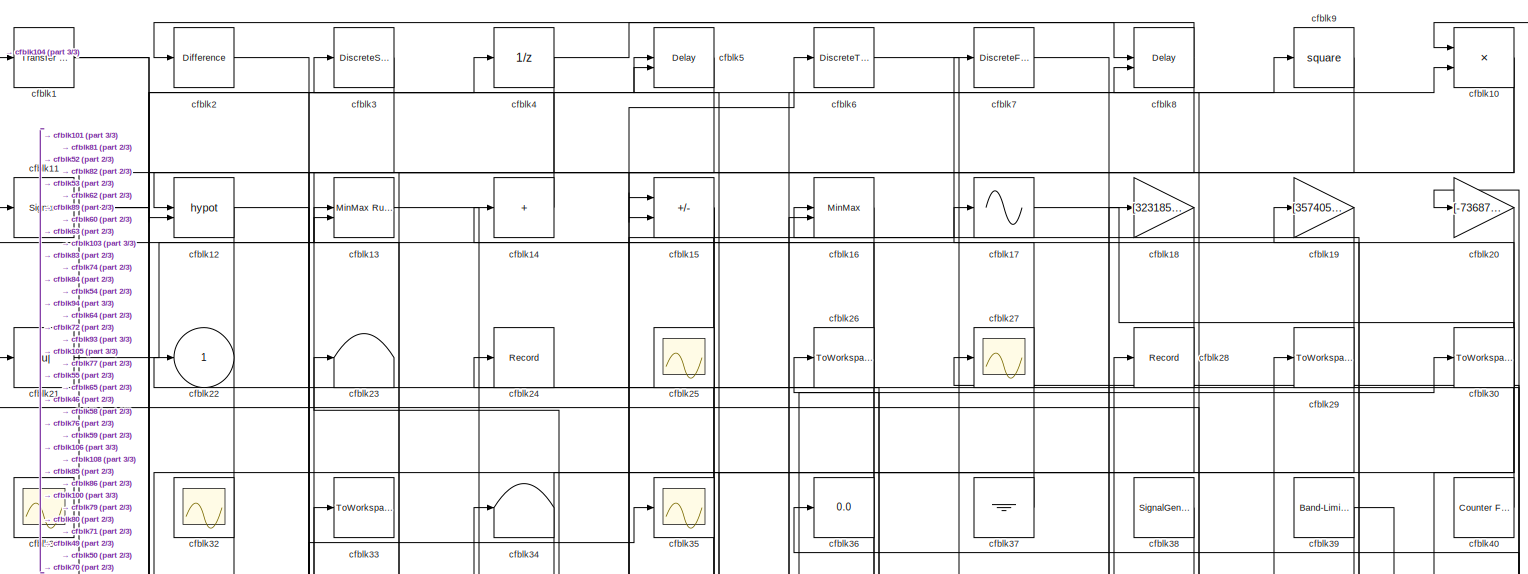
[diagram: root canvas - part 1/3, full width, top band]
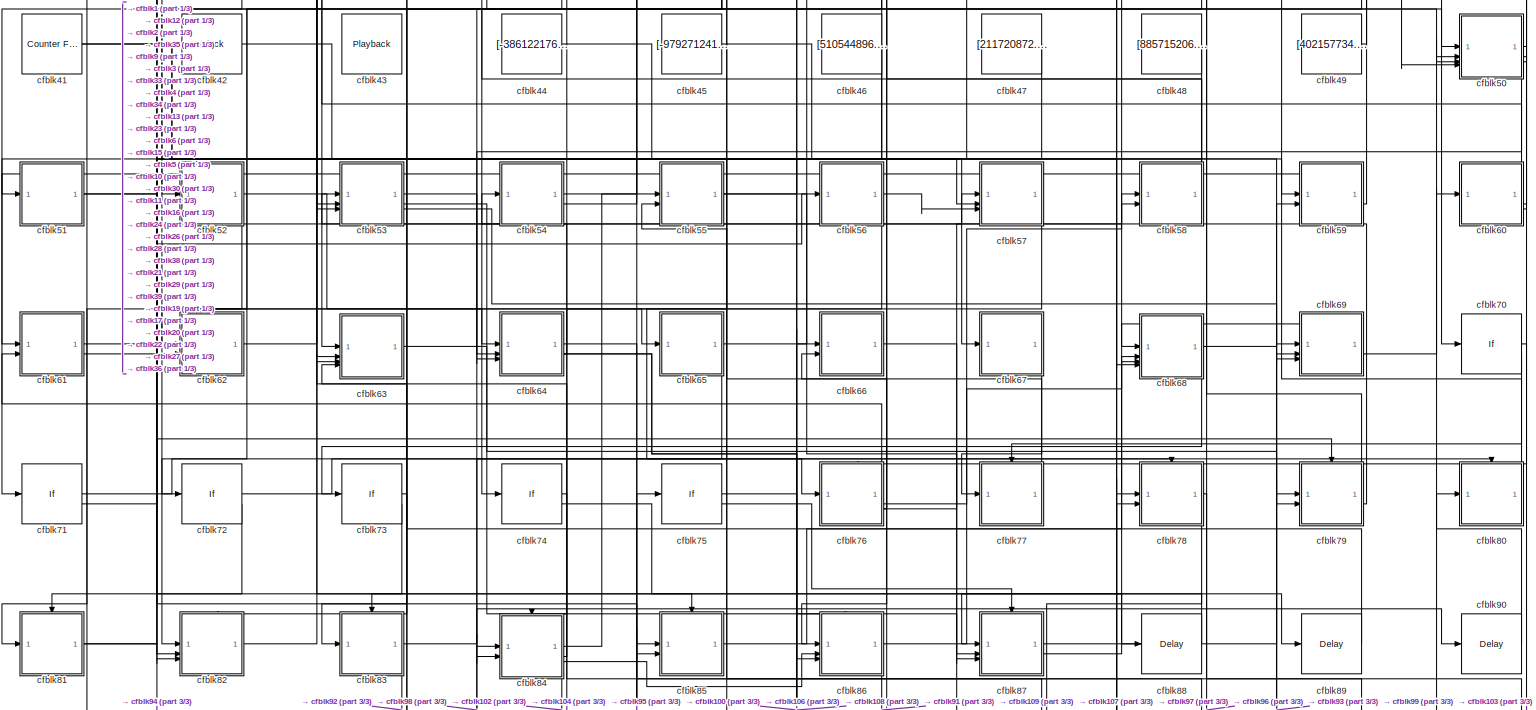
[diagram: root canvas - part 2/3, full width, middle band]
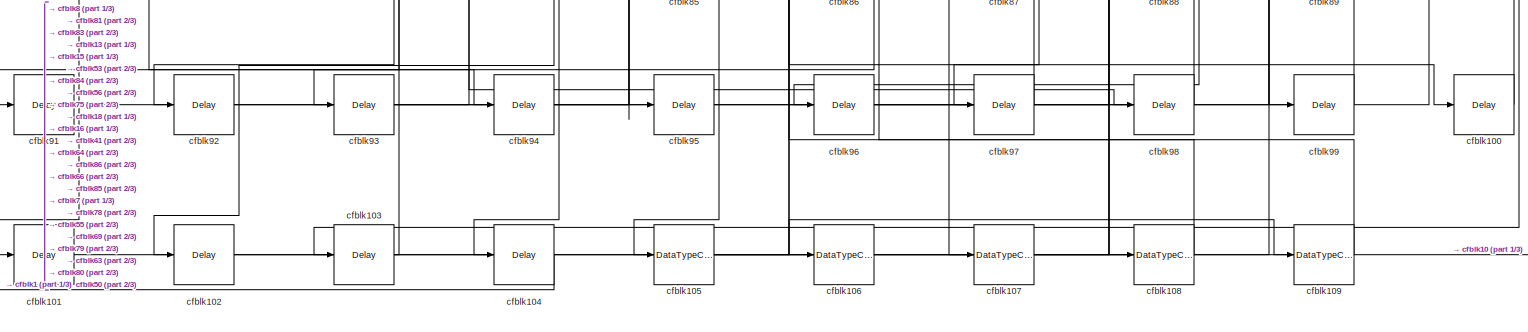
[diagram: root canvas - part 3/3, full width, bottom band]
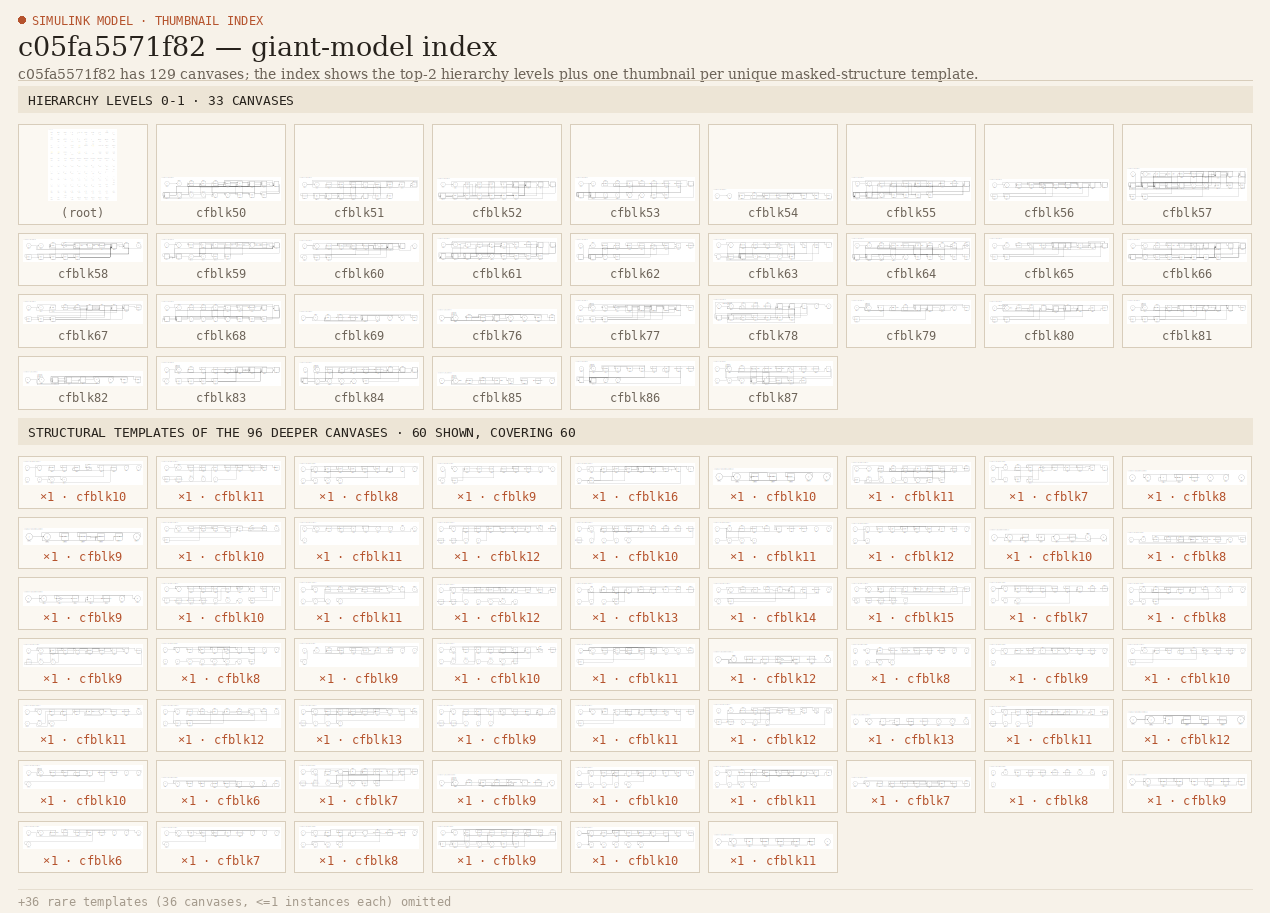
[diagram: thumbnail index - top-2 hierarchy levels (33 canvases) + 60 structural-template representatives of the remaining 96 canvases]
MODEL slx_c05fa5571f82
KIND model
CONFIG AbsTol = auto
CONFIG EnableMultiTasking = off
CONFIG FixedStep = auto
CONFIG MaxStep = auto
CONFIG MinStep = auto
CONFIG RelTol = 1e-3
CONFIG SampleTimeConstraint = Unconstrained
CONFIG SolverName = VariableStepAuto
CONFIG StartTime = 0.0
CONFIG StopTime = 10.0
BLOCK [Reference] cfblk1  REF=simulink/Discrete/Transfer Fcn
First Order
  SourceBlock = simulink/Discrete/Transfer Fcn\nFirst Order
  SourceType = First Order Transfer Fcn
BLOCK [Product] cfblk10
  Inputs = **
BLOCK [Delay] cfblk100
  InputPortMap = u0
  SampleTime = 1
BLOCK [Delay] cfblk101
  InputPortMap = u0
  SampleTime = 1
BLOCK [Delay] cfblk102
  InputPortMap = u0
  SampleTime = 1
BLOCK [Delay] cfblk103
  InputPortMap = u0
  SampleTime = 1
BLOCK [Delay] cfblk104
  InputPortMap = u0
  SampleTime = 1
BLOCK [DataTypeConversion] cfblk105
  RndMeth = Floor
  SaturateOnIntegerOverflow = off
BLOCK [DataTypeConversion] cfblk106
  RndMeth = Floor
  SaturateOnIntegerOverflow = off
BLOCK [DataTypeConversion] cfblk107
  RndMeth = Floor
  SaturateOnIntegerOverflow = off
BLOCK [DataTypeConversion] cfblk108
  RndMeth = Floor
  SaturateOnIntegerOverflow = off
BLOCK [DataTypeConversion] cfblk109
  RndMeth = Floor
  SaturateOnIntegerOverflow = off
BLOCK [Signum] cfblk11
BLOCK [Math] cfblk12
  Operator = hypot
BLOCK [Reference] cfblk13  REF=simulink/Math
Operations/MinMax
Running
Resettable
  SourceBlock = simulink/Math\nOperations/MinMax\nRunning\nResettable
  SourceType = MinMax Running Resettable
BLOCK [Sum] cfblk14
  IconShape = rectangular
  Inputs = +
BLOCK [Sum] cfblk15
  IconShape = rectangular
  Inputs = +-
BLOCK [MinMax] cfblk16
  Function = max
  Inputs = 2
BLOCK [Sin] cfblk17
  SampleTime = 0
  TimeSource = Use external signal
BLOCK [Gain] cfblk18
  Gain = [323185461.352464]
BLOCK [Gain] cfblk19
  Gain = [357405580.441726]
BLOCK [Reference] cfblk2  REF=simulink/Discrete/Difference
  SourceBlock = simulink/Discrete/Difference
  SourceType = Difference
BLOCK [Gain] cfblk20
  Gain = [-736879633.687722]
BLOCK [Abs] cfblk21
  SaturateOnIntegerOverflow = off
BLOCK [Outport] cfblk22
BLOCK [Terminator] cfblk23
BLOCK [Record] cfblk24
  FileSettingsInternal = {"entries":[{"content":{"excelSettings":{"content":{},"type":"Streamout.ExcelSettings"}},"type":"Streamout.FileSettingStorage","uuid":""}],"packageUris":["http:\/\/schema.mathworks.com\/mf0\/streamout_blocks\/R2020a"],"version":"1.0"}
  SignalsInternal = {"entries":[{"content":{},"type":"RecordBlkView.InputSignals","uuid":""}],"packageUris":["http:\/\/schema.mathworks.com\/mf0\/streamout_blocks\/R2020a"],"version":"1.0"}
  VisualizationBindings = {"sparklinesplugin":{"info":[{"bindingParametersList":[],"subplotID":1}]}}
BLOCK [Scope] cfblk25
  Floating = on
  NumInputPorts = 1
BLOCK [ToWorkspace] cfblk26
  FixptAsFi = on
  MaxDataPoints = inf
  SampleTime = -1
  SaveFormat = Timeseries
  VariableName = lyoptgs
BLOCK [Scope] cfblk27
  Floating = off
  NumInputPorts = 1
BLOCK [Record] cfblk28
  FileSettingsInternal = {"entries":[{"content":{"excelSettings":{"content":{},"type":"Streamout.ExcelSettings"}},"type":"Streamout.FileSettingStorage","uuid":""}],"packageUris":["http:\/\/schema.mathworks.com\/mf0\/streamout_blocks\/R2020a"],"version":"1.0"}
  SignalsInternal = {"entries":[{"content":{},"type":"RecordBlkView.InputSignals","uuid":""}],"packageUris":["http:\/\/schema.mathworks.com\/mf0\/streamout_blocks\/R2020a"],"version":"1.0"}
  VisualizationBindings = {"sparklinesplugin":{"info":[{"bindingParametersList":[],"subplotID":1}]}}
BLOCK [ToWorkspace] cfblk29
  FixptAsFi = on
  MaxDataPoints = inf
  SampleTime = -1
  SaveFormat = Timeseries
  VariableName = hoqkgyl
BLOCK [DiscreteStateSpace] cfblk3
BLOCK [ToWorkspace] cfblk30
  FixptAsFi = on
  MaxDataPoints = inf
  SampleTime = -1
  SaveFormat = Timeseries
  VariableName = nqrlesy
BLOCK [Scope] cfblk31
  Floating = on
  NumInputPorts = 1
BLOCK [Scope] cfblk32
  Floating = on
  NumInputPorts = 1
BLOCK [ToWorkspace] cfblk33
  FixptAsFi = on
  MaxDataPoints = inf
  SampleTime = -1
  SaveFormat = Timeseries
  VariableName = jqxmqmc
BLOCK [Terminator] cfblk34
BLOCK [Scope] cfblk35
  Floating = off
  NumInputPorts = 1
BLOCK [Display] cfblk36
  Decimation = 1
BLOCK [Ground] cfblk37
BLOCK [SignalGenerator] cfblk38
  Amplitude = [-773767244.573252]
  Units = rad/sec
BLOCK [Reference] cfblk39  REF=simulink/Sources/Band-Limited
White Noise
  SourceBlock = simulink/Sources/Band-Limited\nWhite Noise
  SourceType = Band-Limited White Noise.
BLOCK [UnitDelay] cfblk4
  HasFrameUpgradeWarning = on
BLOCK [Reference] cfblk40  REF=simulink/Sources/Counter
Free-Running
  SourceBlock = simulink/Sources/Counter\nFree-Running
  SourceType = Counter Free-Running
BLOCK [Reference] cfblk41  REF=simulink/Sources/Counter
Free-Running
  SourceBlock = simulink/Sources/Counter\nFree-Running
  SourceType = Counter Free-Running
BLOCK [Clock] cfblk42
BLOCK [Playback] cfblk43
  NumPorts = 0
  PartName = fd74c4e2-0fad-4813-8d20-90b65e462531
BLOCK [Constant] cfblk44
  SampleTime = 1
  Value = [-386122176.681112]
BLOCK [Constant] cfblk45
  SampleTime = 1
  Value = [-979271241.822256]
BLOCK [Constant] cfblk46
  SampleTime = 1
  Value = [510544896.104647]
BLOCK [Constant] cfblk47
  SampleTime = 1
  Value = [211720872.767803]
BLOCK [Constant] cfblk48
  SampleTime = 1
  Value = [885715206.554764]
BLOCK [Constant] cfblk49
  SampleTime = 1
  Value = [402157734.011204]
BLOCK [Delay] cfblk5
  InputPortMap = u0,e6
  SampleTime = 1
  ShowEnablePort = on
BLOCK [SubSystem] cfblk50
BLOCK [Inport] cfblk50/cfblk1
BLOCK [SubSystem] cfblk50/cfblk10
BLOCK [Inport] cfblk50/cfblk10/cfblk1
BLOCK [Inport] cfblk50/cfblk10/cfblk10
  Port = 3
BLOCK [Inport] cfblk50/cfblk10/cfblk11
  Port = 4
BLOCK [Inport] cfblk50/cfblk10/cfblk12
  Port = 5
BLOCK [Outport] cfblk50/cfblk10/cfblk13
  Port = 2
BLOCK [Outport] cfblk50/cfblk10/cfblk14
  Port = 3
BLOCK [Outport] cfblk50/cfblk10/cfblk2
BLOCK [DiscreteFir] cfblk50/cfblk10/cfblk3
  InputPortMap = u0
  OutputPortMap = o0
  SampleTime = 1
BLOCK [Squeeze] cfblk50/cfblk10/cfblk4
BLOCK [MinMax] cfblk50/cfblk10/cfblk5
  Inputs = 2
BLOCK [Gain] cfblk50/cfblk10/cfblk6
  Gain = [-235888922.088492]
BLOCK [Product] cfblk50/cfblk10/cfblk7
  Inputs = *
BLOCK [Reshape] cfblk50/cfblk10/cfblk8
BLOCK [Inport] cfblk50/cfblk10/cfblk9
  Port = 2
BLOCK [SubSystem] cfblk50/cfblk11
BLOCK [Inport] cfblk50/cfblk11/cfblk1
BLOCK [Trigonometry] cfblk50/cfblk11/cfblk10
BLOCK [Reference] cfblk50/cfblk11/cfblk11  REF=simulink/Math
Operations/Slider
Gain
  SourceBlock = simulink/Math\nOperations/Slider\nGain
  SourceType = Slider Gain
BLOCK [Constant] cfblk50/cfblk11/cfblk12
  SampleTime = 1
  Value = [371912551.327647]
BLOCK [Inport] cfblk50/cfblk11/cfblk13
  Port = 2
BLOCK [Inport] cfblk50/cfblk11/cfblk14
  Port = 3
BLOCK [Inport] cfblk50/cfblk11/cfblk15
  Port = 4
BLOCK [Outport] cfblk50/cfblk11/cfblk2
BLOCK [Reference] cfblk50/cfblk11/cfblk3  REF=simulink/Discrete/Tapped Delay
  SourceBlock = simulink/Discrete/Tapped Delay
  SourceType = Tapped Delay Line
BLOCK [Reference] cfblk50/cfblk11/cfblk4  REF=slpidlib/PID Controller
  LibrarySourceBlock = simulink/Discrete/Discrete PID Controller
  SourceBlock = slpidlib/PID Controller
  SourceType = PID 1dof
BLOCK [Delay] cfblk50/cfblk11/cfblk5
  InputPortMap = u0
  SampleTime = 1
BLOCK [Reference] cfblk50/cfblk11/cfblk6  REF=slpidlib/PID Controller
  LibrarySourceBlock = simulink/Discrete/Discrete PID Controller
  SourceBlock = slpidlib/PID Controller
  SourceType = PID 1dof
BLOCK [DiscreteFilter] cfblk50/cfblk11/cfblk7
  InputPortMap = u0
  SampleTime = 1
BLOCK [Reference] cfblk50/cfblk11/cfblk8  REF=slpidlib/PID Controller
  LibrarySourceBlock = simulink/Discrete/Discrete PID Controller
  SourceBlock = slpidlib/PID Controller
  SourceType = PID 1dof
BLOCK [DotProduct] cfblk50/cfblk11/cfblk9
  OutDataTypeStr = Inherit: Inherit via internal rule
BLOCK [Inport] cfblk50/cfblk12
  Port = 2
BLOCK [Inport] cfblk50/cfblk13
  Port = 3
BLOCK [Inport] cfblk50/cfblk14
  Port = 4
BLOCK [Outport] cfblk50/cfblk15
  Port = 2
BLOCK [Outport] cfblk50/cfblk16
  Port = 3
BLOCK [Delay] cfblk50/cfblk17
  InputPortMap = u0
  SampleTime = 1
BLOCK [Delay] cfblk50/cfblk18
  InputPortMap = u0
  SampleTime = 1
BLOCK [Delay] cfblk50/cfblk19
  InputPortMap = u0
  SampleTime = 1
BLOCK [Outport] cfblk50/cfblk2
BLOCK [Reference] cfblk50/cfblk3  REF=slpidlib/PID Controller (2DOF)
  LibrarySourceBlock = simulink/Discrete/Discrete PID Controller (2DOF)
  SourceBlock = slpidlib/PID Controller (2DOF)
  SourceType = PID 2dof
BLOCK [Delay] cfblk50/cfblk4
  InputPortMap = u0,e6
  SampleTime = 1
  ShowEnablePort = on
BLOCK [ComplexToRealImag] cfblk50/cfblk5
BLOCK [DotProduct] cfblk50/cfblk6
  OutDataTypeStr = Inherit: Inherit via internal rule
BLOCK [Product] cfblk50/cfblk7
  Inputs = **
BLOCK [SubSystem] cfblk50/cfblk8
BLOCK [Inport] cfblk50/cfblk8/cfblk1
BLOCK [Inport] cfblk50/cfblk8/cfblk10
  Port = 3
BLOCK [Inport] cfblk50/cfblk8/cfblk11
  Port = 4
BLOCK [Outport] cfblk50/cfblk8/cfblk12
  Port = 2
BLOCK [Outport] cfblk50/cfblk8/cfblk13
  Port = 3
BLOCK [Outport] cfblk50/cfblk8/cfblk14
  Port = 4
BLOCK [Outport] cfblk50/cfblk8/cfblk2
BLOCK [Delay] cfblk50/cfblk8/cfblk3
  InputPortMap = u0,e6
  SampleTime = 1
  ShowEnablePort = on
BLOCK [DiscreteTransferFcn] cfblk50/cfblk8/cfblk4
  InputPortMap = u0
  SampleTime = 1
BLOCK [DiscreteFir] cfblk50/cfblk8/cfblk5
  InputPortMap = u0
  OutputPortMap = o0
  SampleTime = 1
BLOCK [PermuteDimensions] cfblk50/cfblk8/cfblk6
BLOCK [Sqrt] cfblk50/cfblk8/cfblk7
  AlgorithmType = Newton-Raphson
  Operator = rSqrt
BLOCK [Sum] cfblk50/cfblk8/cfblk8
  IconShape = rectangular
  Inputs = -+
BLOCK [Inport] cfblk50/cfblk8/cfblk9
  Port = 2
BLOCK [SubSystem] cfblk50/cfblk9
BLOCK [Inport] cfblk50/cfblk9/cfblk1
BLOCK [Outport] cfblk50/cfblk9/cfblk10
  Port = 2
BLOCK [Outport] cfblk50/cfblk9/cfblk11
  Port = 3
BLOCK [Delay] cfblk50/cfblk9/cfblk12
  InputPortMap = u0
  SampleTime = 1
BLOCK [Outport] cfblk50/cfblk9/cfblk2
BLOCK [Delay] cfblk50/cfblk9/cfblk3
  DelayLengthSource = Input port
  InputPortMap = u0,p1
  SampleTime = 1
BLOCK [DiscreteTransferFcn] cfblk50/cfblk9/cfblk4
  InputPortMap = u0
  SampleTime = 1
BLOCK [DiscreteIntegrator] cfblk50/cfblk9/cfblk5
  ICPrevOutput = DiscIntNeverNeededParam
  ICPrevScaledInput = DiscIntNeverNeededParam
  InitialConditionSetting = Auto
BLOCK [Reference] cfblk50/cfblk9/cfblk6  REF=slpidlib/PID Controller
  LibrarySourceBlock = simulink/Discrete/Discrete PID Controller
  SourceBlock = slpidlib/PID Controller
  SourceType = PID 1dof
BLOCK [PermuteDimensions] cfblk50/cfblk9/cfblk7
BLOCK [Constant] cfblk50/cfblk9/cfblk8
  SampleTime = 1
  Value = [-882440462.358064]
BLOCK [Inport] cfblk50/cfblk9/cfblk9
  Port = 2
BLOCK [SubSystem] cfblk51
BLOCK [Inport] cfblk51/cfblk1
BLOCK [Sum] cfblk51/cfblk10
  IconShape = rectangular
  Inputs = --
BLOCK [Reshape] cfblk51/cfblk11
BLOCK [Bias] cfblk51/cfblk12
  Bias = [477811267.919728]
  SaturateOnIntegerOverflow = off
BLOCK [Sum] cfblk51/cfblk13
  IconShape = rectangular
  Inputs = +-
BLOCK [Sum] cfblk51/cfblk14
  IconShape = rectangular
BLOCK [Constant] cfblk51/cfblk15
  SampleTime = 1
  Value = [624544764.356447]
BLOCK [SubSystem] cfblk51/cfblk16
BLOCK [Inport] cfblk51/cfblk16/cfblk1
BLOCK [Product] cfblk51/cfblk16/cfblk10
  Inputs = *
BLOCK [Inport] cfblk51/cfblk16/cfblk11
  Port = 2
BLOCK [Delay] cfblk51/cfblk16/cfblk12
  InputPortMap = u0
  SampleTime = 1
BLOCK [Outport] cfblk51/cfblk16/cfblk2
BLOCK [Delay] cfblk51/cfblk16/cfblk3
  DelayLengthSource = Input port
  InputPortMap = u0,p1
  SampleTime = 1
BLOCK [DiscreteTransferFcn] cfblk51/cfblk16/cfblk4
  InputPortMap = u0
  SampleTime = 1
BLOCK [Math] cfblk51/cfblk16/cfblk5
  Operator = pow
BLOCK [Sum] cfblk51/cfblk16/cfblk6
  IconShape = rectangular
  Inputs = +-
BLOCK [Trigonometry] cfblk51/cfblk16/cfblk7
BLOCK [ComplexToRealImag] cfblk51/cfblk16/cfblk8
BLOCK [Product] cfblk51/cfblk16/cfblk9
  Inputs = **
BLOCK [Delay] cfblk51/cfblk17
  InputPortMap = u0
  SampleTime = 1
BLOCK [Delay] cfblk51/cfblk18
  InputPortMap = u0
  SampleTime = 1
BLOCK [Outport] cfblk51/cfblk2
BLOCK [Reference] cfblk51/cfblk3  REF=simulink/Discrete/Tapped Delay
  SourceBlock = simulink/Discrete/Tapped Delay
  SourceType = Tapped Delay Line
BLOCK [DiscreteFilter] cfblk51/cfblk4
  InputPortMap = u0
  SampleTime = 1
BLOCK [Squeeze] cfblk51/cfblk5
BLOCK [Sum] cfblk51/cfblk6
  IconShape = rectangular
  Inputs = +
BLOCK [Reference] cfblk51/cfblk7  REF=simulink/Math
Operations/Slider
Gain
  SourceBlock = simulink/Math\nOperations/Slider\nGain
  SourceType = Slider Gain
BLOCK [Math] cfblk51/cfblk8
  Operator = pow
BLOCK [Abs] cfblk51/cfblk9
  SaturateOnIntegerOverflow = off
BLOCK [SubSystem] cfblk52
BLOCK [Inport] cfblk52/cfblk1
BLOCK [SubSystem] cfblk52/cfblk10
BLOCK [Inport] cfblk52/cfblk10/cfblk1
BLOCK [Outport] cfblk52/cfblk10/cfblk2
BLOCK [Reference] cfblk52/cfblk10/cfblk3  REF=slpidlib/PID Controller (2DOF)
  LibrarySourceBlock = simulink/Discrete/Discrete PID Controller (2DOF)
  SourceBlock = slpidlib/PID Controller (2DOF)
  SourceType = PID 2dof
BLOCK [DiscreteZeroPole] cfblk52/cfblk10/cfblk4
  Gain = 1
  Poles = [0 0.5]
BLOCK [Math] cfblk52/cfblk10/cfblk5
  Operator = transpose
BLOCK [Inport] cfblk52/cfblk10/cfblk6
  Port = 2
BLOCK [Inport] cfblk52/cfblk10/cfblk7
  Port = 3
BLOCK [SubSystem] cfblk52/cfblk11
BLOCK [Inport] cfblk52/cfblk11/cfblk1
BLOCK [Math] cfblk52/cfblk11/cfblk10
  Operator = transpose
BLOCK [Sqrt] cfblk52/cfblk11/cfblk11
  AlgorithmType = Newton-Raphson
  Operator = rSqrt
BLOCK [Sin] cfblk52/cfblk11/cfblk12
  SampleTime = 0
  TimeSource = Use external signal
BLOCK [Inport] cfblk52/cfblk11/cfblk13
  Port = 2
BLOCK [Inport] cfblk52/cfblk11/cfblk14
  Port = 3
BLOCK [Outport] cfblk52/cfblk11/cfblk15
  Port = 2
BLOCK [Outport] cfblk52/cfblk11/cfblk16
  Port = 3
BLOCK [Delay] cfblk52/cfblk11/cfblk17
  InputPortMap = u0
  SampleTime = 1
BLOCK [Delay] cfblk52/cfblk11/cfblk18
  InputPortMap = u0
  SampleTime = 1
BLOCK [Outport] cfblk52/cfblk11/cfblk2
BLOCK [DiscreteFilter] cfblk52/cfblk11/cfblk3
  InputPortMap = u0
  SampleTime = 1
BLOCK [Delay] cfblk52/cfblk11/cfblk4
  InputPortMap = u0,e6
  SampleTime = 1
  ShowEnablePort = on
BLOCK [Reference] cfblk52/cfblk11/cfblk5  REF=simulink/Discrete/Transfer Fcn
Lead or Lag
  SourceBlock = simulink/Discrete/Transfer Fcn\nLead or Lag
  SourceType = Lead or Lag Compensator
BLOCK [UnitDelay] cfblk52/cfblk11/cfblk6
  HasFrameUpgradeWarning = on
BLOCK [Reference] cfblk52/cfblk11/cfblk7  REF=simulink/Math
Operations/Slider
Gain
  SourceBlock = simulink/Math\nOperations/Slider\nGain
  SourceType = Slider Gain
BLOCK [ComplexToRealImag] cfblk52/cfblk11/cfblk8
BLOCK [UnaryMinus] cfblk52/cfblk11/cfblk9
BLOCK [Delay] cfblk52/cfblk12
  InputPortMap = u0
  SampleTime = 1
BLOCK [Delay] cfblk52/cfblk13
  InputPortMap = u0
  SampleTime = 1
BLOCK [Delay] cfblk52/cfblk14
  InputPortMap = u0
  SampleTime = 1
BLOCK [Delay] cfblk52/cfblk15
  InputPortMap = u0
  SampleTime = 1
BLOCK [Delay] cfblk52/cfblk16
  InputPortMap = u0
  SampleTime = 1
BLOCK [Delay] cfblk52/cfblk17
  InputPortMap = u0
  SampleTime = 1
BLOCK [Outport] cfblk52/cfblk2
BLOCK [DiscreteStateSpace] cfblk52/cfblk3
BLOCK [Delay] cfblk52/cfblk4
  DelayLengthSource = Input port
  InputPortMap = u0,p1
  SampleTime = 1
BLOCK [Sqrt] cfblk52/cfblk5
BLOCK [Abs] cfblk52/cfblk6
  SaturateOnIntegerOverflow = off
BLOCK [SubSystem] cfblk52/cfblk7
BLOCK [Inport] cfblk52/cfblk7/cfblk1
BLOCK [Product] cfblk52/cfblk7/cfblk10
  Inputs = *
BLOCK [Inport] cfblk52/cfblk7/cfblk11
  Port = 2
BLOCK [Outport] cfblk52/cfblk7/cfblk12
  Port = 2
BLOCK [Delay] cfblk52/cfblk7/cfblk13
  InputPortMap = u0
  SampleTime = 1
BLOCK [Delay] cfblk52/cfblk7/cfblk14
  InputPortMap = u0
  SampleTime = 1
BLOCK [Outport] cfblk52/cfblk7/cfblk2
BLOCK [DiscreteFilter] cfblk52/cfblk7/cfblk3
  InputPortMap = u0
  SampleTime = 1
BLOCK [Delay] cfblk52/cfblk7/cfblk4
  InputPortMap = u0
  SampleTime = 1
BLOCK [Gain] cfblk52/cfblk7/cfblk5
  Gain = [-962940264.444101]
BLOCK [Squeeze] cfblk52/cfblk7/cfblk6
BLOCK [Bias] cfblk52/cfblk7/cfblk7
  Bias = [15642961.099886]
  SaturateOnIntegerOverflow = off
BLOCK [Squeeze] cfblk52/cfblk7/cfblk8
BLOCK [Sum] cfblk52/cfblk7/cfblk9
  IconShape = rectangular
  Inputs = +-
BLOCK [SubSystem] cfblk52/cfblk8
BLOCK [Inport] cfblk52/cfblk8/cfblk1
BLOCK [Outport] cfblk52/cfblk8/cfblk2
BLOCK [Sum] cfblk52/cfblk8/cfblk3
  IconShape = rectangular
  Inputs = +
BLOCK [Reference] cfblk52/cfblk8/cfblk4  REF=simulink/Math
Operations/Slider
Gain
  SourceBlock = simulink/Math\nOperations/Slider\nGain
  SourceType = Slider Gain
BLOCK [Constant] cfblk52/cfblk8/cfblk5
  SampleTime = 1
  Value = [-586306323.074221]
BLOCK [Inport] cfblk52/cfblk8/cfblk6
  Port = 2
BLOCK [Inport] cfblk52/cfblk8/cfblk7
  Port = 3
BLOCK [Inport] cfblk52/cfblk8/cfblk8
  Port = 4
BLOCK [SubSystem] cfblk52/cfblk9
BLOCK [Inport] cfblk52/cfblk9/cfblk1
BLOCK [Outport] cfblk52/cfblk9/cfblk2
BLOCK [DiscreteFilter] cfblk52/cfblk9/cfblk3
  InputPortMap = u0
  SampleTime = 1
BLOCK [Reference] cfblk52/cfblk9/cfblk4  REF=simulink/Discrete/Transfer Fcn
Lead or Lag
  SourceBlock = simulink/Discrete/Transfer Fcn\nLead or Lag
  SourceType = Lead or Lag Compensator
BLOCK [DotProduct] cfblk52/cfblk9/cfblk5
  OutDataTypeStr = Inherit: Inherit via internal rule
BLOCK [UnaryMinus] cfblk52/cfblk9/cfblk6
BLOCK [Inport] cfblk52/cfblk9/cfblk7
  Port = 2
BLOCK [SubSystem] cfblk53
BLOCK [Inport] cfblk53/cfblk1
BLOCK [SubSystem] cfblk53/cfblk10
BLOCK [Inport] cfblk53/cfblk10/cfblk1
BLOCK [Inport] cfblk53/cfblk10/cfblk10
  Port = 2
BLOCK [Delay] cfblk53/cfblk10/cfblk11
  InputPortMap = u0
  SampleTime = 1
BLOCK [Outport] cfblk53/cfblk10/cfblk2
BLOCK [Reference] cfblk53/cfblk10/cfblk3  REF=simulink/Discrete/Tapped Delay
  SourceBlock = simulink/Discrete/Tapped Delay
  SourceType = Tapped Delay Line
BLOCK [Reference] cfblk53/cfblk10/cfblk4  REF=slpidlib/PID Controller
  LibrarySourceBlock = simulink/Discrete/Discrete PID Controller
  SourceBlock = slpidlib/PID Controller
  SourceType = PID 1dof
BLOCK [DiscreteIntegrator] cfblk53/cfblk10/cfblk5
  ICPrevOutput = DiscIntNeverNeededParam
  ICPrevScaledInput = DiscIntNeverNeededParam
  InitialConditionSetting = Auto
BLOCK [Reshape] cfblk53/cfblk10/cfblk6
BLOCK [Sum] cfblk53/cfblk10/cfblk7
  IconShape = rectangular
  Inputs = +-
BLOCK [Gain] cfblk53/cfblk10/cfblk8
  Gain = [817664659.316137]
BLOCK [ComplexToMagnitudeAngle] cfblk53/cfblk10/cfblk9
BLOCK [SubSystem] cfblk53/cfblk11
BLOCK [Inport] cfblk53/cfblk11/cfblk1
BLOCK [Outport] cfblk53/cfblk11/cfblk10
  Port = 2
BLOCK [Outport] cfblk53/cfblk11/cfblk11
  Port = 3
BLOCK [Outport] cfblk53/cfblk11/cfblk2
BLOCK [Reference] cfblk53/cfblk11/cfblk3  REF=simulink/Discrete/Transfer Fcn
Lead or Lag
  SourceBlock = simulink/Discrete/Transfer Fcn\nLead or Lag
  SourceType = Lead or Lag Compensator
BLOCK [Reference] cfblk53/cfblk11/cfblk4  REF=simulink/Discrete/Difference
  SourceBlock = simulink/Discrete/Difference
  SourceType = Difference
BLOCK [Product] cfblk53/cfblk11/cfblk5
  Inputs = *
BLOCK [Sum] cfblk53/cfblk11/cfblk6
  IconShape = rectangular
  Inputs = +
BLOCK [Inport] cfblk53/cfblk11/cfblk7
  Port = 2
BLOCK [Inport] cfblk53/cfblk11/cfblk8
  Port = 3
BLOCK [Inport] cfblk53/cfblk11/cfblk9
  Port = 4
BLOCK [SubSystem] cfblk53/cfblk12
BLOCK [Inport] cfblk53/cfblk12/cfblk1
BLOCK [Constant] cfblk53/cfblk12/cfblk10
  SampleTime = 1
  Value = [-206110537.418355]
BLOCK [Constant] cfblk53/cfblk12/cfblk11
  SampleTime = 1
  Value = [146359783.021186]
BLOCK [Constant] cfblk53/cfblk12/cfblk12
  SampleTime = 1
  Value = [-708907228.749983]
BLOCK [Inport] cfblk53/cfblk12/cfblk13
  Port = 2
BLOCK [Inport] cfblk53/cfblk12/cfblk14
  Port = 3
BLOCK [Outport] cfblk53/cfblk12/cfblk2
BLOCK [DiscreteZeroPole] cfblk53/cfblk12/cfblk3
  Gain = 1
  Poles = [0 0.5]
BLOCK [DiscreteFilter] cfblk53/cfblk12/cfblk4
  InputPortMap = u0
  SampleTime = 1
BLOCK [Delay] cfblk53/cfblk12/cfblk5
  DelayLengthSource = Input port
  InputPortMap = u0,p1
  SampleTime = 1
BLOCK [DiscreteStateSpace] cfblk53/cfblk12/cfblk6
BLOCK [Abs] cfblk53/cfblk12/cfblk7
  SaturateOnIntegerOverflow = off
BLOCK [Product] cfblk53/cfblk12/cfblk8
BLOCK [Sin] cfblk53/cfblk12/cfblk9
  SampleTime = 0
  TimeSource = Use external signal
BLOCK [Inport] cfblk53/cfblk13
  Port = 2
BLOCK [Inport] cfblk53/cfblk14
  Port = 3
BLOCK [Outport] cfblk53/cfblk15
  Port = 2
BLOCK [Outport] cfblk53/cfblk16
  Port = 3
BLOCK [Delay] cfblk53/cfblk17
  InputPortMap = u0
  SampleTime = 1
BLOCK [Delay] cfblk53/cfblk18
  InputPortMap = u0
  SampleTime = 1
BLOCK [Outport] cfblk53/cfblk2
BLOCK [DiscreteZeroPole] cfblk53/cfblk3
  Gain = 1
  Poles = [0 0.5]
BLOCK [Reference] cfblk53/cfblk4  REF=simulink/Discrete/Transfer Fcn
Real Zero
  SourceBlock = simulink/Discrete/Transfer Fcn\nReal Zero
  SourceType = Transfer Fcn Real Zero
BLOCK [Abs] cfblk53/cfblk5
  SaturateOnIntegerOverflow = off
BLOCK [ComplexToRealImag] cfblk53/cfblk6
BLOCK [Constant] cfblk53/cfblk7
  SampleTime = 1
  Value = [-587224458.096991]
BLOCK [Constant] cfblk53/cfblk8
  SampleTime = 1
  Value = [418279794.833208]
BLOCK [Constant] cfblk53/cfblk9
  SampleTime = 1
  Value = [-149590621.315147]
BLOCK [SubSystem] cfblk54
BLOCK [Inport] cfblk54/cfblk1
BLOCK [Delay] cfblk54/cfblk10
  InputPortMap = u0
  SampleTime = 1
BLOCK [Outport] cfblk54/cfblk2
BLOCK [Delay] cfblk54/cfblk3
  DelayLengthSource = Input port
  InputPortMap = u0,p1
  SampleTime = 1
BLOCK [Delay] cfblk54/cfblk4
  InputPortMap = u0
  SampleTime = 1
BLOCK [MinMax] cfblk54/cfblk5
  Inputs = 3
BLOCK [Gain] cfblk54/cfblk6
  Gain = [-108671966.700826]
BLOCK [Outport] cfblk54/cfblk7
  Port = 2
BLOCK [Delay] cfblk54/cfblk8
  InputPortMap = u0
  SampleTime = 1
BLOCK [Delay] cfblk54/cfblk9
  InputPortMap = u0
  SampleTime = 1
BLOCK [SubSystem] cfblk55
BLOCK [Inport] cfblk55/cfblk1
BLOCK [SubSystem] cfblk55/cfblk10
BLOCK [Inport] cfblk55/cfblk10/cfblk1
BLOCK [Constant] cfblk55/cfblk10/cfblk10
  SampleTime = 1
  Value = [62866536.244015]
BLOCK [Constant] cfblk55/cfblk10/cfblk11
  SampleTime = 1
  Value = [-503289504.904032]
BLOCK [Inport] cfblk55/cfblk10/cfblk12
  Port = 2
BLOCK [Inport] cfblk55/cfblk10/cfblk13
  Port = 3
BLOCK [Inport] cfblk55/cfblk10/cfblk14
  Port = 4
BLOCK [Outport] cfblk55/cfblk10/cfblk15
  Port = 2
BLOCK [Outport] cfblk55/cfblk10/cfblk2
BLOCK [Reference] cfblk55/cfblk10/cfblk3  REF=slpidlib/PID Controller (2DOF)
  LibrarySourceBlock = simulink/Discrete/Discrete PID Controller (2DOF)
  SourceBlock = slpidlib/PID Controller (2DOF)
  SourceType = PID 2dof
BLOCK [Reference] cfblk55/cfblk10/cfblk4  REF=slpidlib/PID Controller (2DOF)
  LibrarySourceBlock = simulink/Discrete/Discrete PID Controller (2DOF)
  SourceBlock = slpidlib/PID Controller (2DOF)
  SourceType = PID 2dof
BLOCK [DiscreteStateSpace] cfblk55/cfblk10/cfblk5
BLOCK [Bias] cfblk55/cfblk10/cfblk6
  Bias = [716171832.572191]
  SaturateOnIntegerOverflow = off
BLOCK [Polyval] cfblk55/cfblk10/cfblk7
  Coefs = [ +2.081618890e-019, -1.441693666e-014, +4.719686976e-010, -8.536869453e-006, +1.621573104e-001, -8.087801117e+001 ]
BLOCK [Constant] cfblk55/cfblk10/cfblk8
  SampleTime = 1
  Value = [-316048415.208695]
BLOCK [Constant] cfblk55/cfblk10/cfblk9
  SampleTime = 1
  Value = [-244945707.494813]
BLOCK [SubSystem] cfblk55/cfblk11
BLOCK [Inport] cfblk55/cfblk11/cfblk1
BLOCK [Inport] cfblk55/cfblk11/cfblk10
  Port = 3
BLOCK [Inport] cfblk55/cfblk11/cfblk11
  Port = 4
BLOCK [Inport] cfblk55/cfblk11/cfblk12
  Port = 5
BLOCK [Inport] cfblk55/cfblk11/cfblk13
  Port = 6
BLOCK [Outport] cfblk55/cfblk11/cfblk14
  Port = 2
BLOCK [Outport] cfblk55/cfblk11/cfblk2
BLOCK [DiscreteIntegrator] cfblk55/cfblk11/cfblk3
  ICPrevOutput = DiscIntNeverNeededParam
  ICPrevScaledInput = DiscIntNeverNeededParam
  InitialConditionSetting = Auto
BLOCK [DiscreteStateSpace] cfblk55/cfblk11/cfblk4
BLOCK [ComplexToRealImag] cfblk55/cfblk11/cfblk5
BLOCK [Sum] cfblk55/cfblk11/cfblk6
  IconShape = rectangular
  Inputs = +-
BLOCK [Constant] cfblk55/cfblk11/cfblk7
  SampleTime = 1
  Value = [-907148050.764415]
BLOCK [Constant] cfblk55/cfblk11/cfblk8
  SampleTime = 1
  Value = [-534592741.405864]
BLOCK [Inport] cfblk55/cfblk11/cfblk9
  Port = 2
BLOCK [SubSystem] cfblk55/cfblk12
BLOCK [Inport] cfblk55/cfblk12/cfblk1
BLOCK [Inport] cfblk55/cfblk12/cfblk10
  Port = 2
BLOCK [Inport] cfblk55/cfblk12/cfblk11
  Port = 3
BLOCK [Outport] cfblk55/cfblk12/cfblk12
  Port = 2
BLOCK [Outport] cfblk55/cfblk12/cfblk2
BLOCK [Reference] cfblk55/cfblk12/cfblk3  REF=simulink/Discrete/Transfer Fcn
First Order
  SourceBlock = simulink/Discrete/Transfer Fcn\nFirst Order
  SourceType = First Order Transfer Fcn
BLOCK [UnitDelay] cfblk55/cfblk12/cfblk4
  HasFrameUpgradeWarning = on
BLOCK [DiscreteFilter] cfblk55/cfblk12/cfblk5
  InputPortMap = u0
  SampleTime = 1
BLOCK [Reference] cfblk55/cfblk12/cfblk6  REF=simulink/Discrete/Difference
  SourceBlock = simulink/Discrete/Difference
  SourceType = Difference
BLOCK [Sqrt] cfblk55/cfblk12/cfblk7
  AlgorithmType = Newton-Raphson
  Operator = rSqrt
BLOCK [Product] cfblk55/cfblk12/cfblk8
  Inputs = *
BLOCK [Constant] cfblk55/cfblk12/cfblk9
  SampleTime = 1
  Value = [-99960536.236063]
BLOCK [Inport] cfblk55/cfblk13
  Port = 2
BLOCK [Delay] cfblk55/cfblk14
  InputPortMap = u0
  SampleTime = 1
BLOCK [Delay] cfblk55/cfblk15
  InputPortMap = u0
  SampleTime = 1
BLOCK [Delay] cfblk55/cfblk16
  InputPortMap = u0
  SampleTime = 1
BLOCK [Delay] cfblk55/cfblk17
  InputPortMap = u0
  SampleTime = 1
BLOCK [Outport] cfblk55/cfblk2
BLOCK [Reference] cfblk55/cfblk3  REF=slpidlib/PID Controller (2DOF)
  LibrarySourceBlock = simulink/Discrete/Discrete PID Controller (2DOF)
  SourceBlock = slpidlib/PID Controller (2DOF)
  SourceType = PID 2dof
BLOCK [Reference] cfblk55/cfblk4  REF=slpidlib/PID Controller (2DOF)
  LibrarySourceBlock = simulink/Discrete/Discrete PID Controller (2DOF)
  SourceBlock = slpidlib/PID Controller (2DOF)
  SourceType = PID 2dof
BLOCK [UnaryMinus] cfblk55/cfblk5
BLOCK [Math] cfblk55/cfblk6
  Operator = pow
BLOCK [Bias] cfblk55/cfblk7
  Bias = [11384897.367837]
  SaturateOnIntegerOverflow = off
BLOCK [Trigonometry] cfblk55/cfblk8
BLOCK [Constant] cfblk55/cfblk9
  SampleTime = 1
  Value = [-990748478.835296]
BLOCK [SubSystem] cfblk56
BLOCK [Inport] cfblk56/cfblk1
BLOCK [SubSystem] cfblk56/cfblk10
BLOCK [Inport] cfblk56/cfblk10/cfblk1
BLOCK [Outport] cfblk56/cfblk10/cfblk2
BLOCK [Reference] cfblk56/cfblk10/cfblk3  REF=slpidlib/PID Controller (2DOF)
  LibrarySourceBlock = simulink/Discrete/Discrete PID Controller (2DOF)
  SourceBlock = slpidlib/PID Controller (2DOF)
  SourceType = PID 2dof
BLOCK [UnitDelay] cfblk56/cfblk10/cfblk4
  HasFrameUpgradeWarning = on
BLOCK [Sum] cfblk56/cfblk10/cfblk5
  Inputs = |++
BLOCK [Constant] cfblk56/cfblk10/cfblk6
  SampleTime = 1
  Value = [238161713.351589]
BLOCK [Inport] cfblk56/cfblk10/cfblk7
  Port = 2
BLOCK [Inport] cfblk56/cfblk10/cfblk8
  Port = 3
BLOCK [Delay] cfblk56/cfblk11
  InputPortMap = u0
  SampleTime = 1
BLOCK [Delay] cfblk56/cfblk12
  InputPortMap = u0
  SampleTime = 1
BLOCK [Outport] cfblk56/cfblk2
BLOCK [Reference] cfblk56/cfblk3  REF=slpidlib/PID Controller (2DOF)
  LibrarySourceBlock = simulink/Discrete/Discrete PID Controller (2DOF)
  SourceBlock = slpidlib/PID Controller (2DOF)
  SourceType = PID 2dof
BLOCK [DiscreteFilter] cfblk56/cfblk4
  InputPortMap = u0
  SampleTime = 1
BLOCK [Gain] cfblk56/cfblk5
  Gain = [100548473.523188]
BLOCK [Reference] cfblk56/cfblk6  REF=simulink/Math
Operations/MinMax
Running
Resettable
  SourceBlock = simulink/Math\nOperations/MinMax\nRunning\nResettable
  SourceType = MinMax Running Resettable
BLOCK [Constant] cfblk56/cfblk7
  SampleTime = 1
  Value = [-755077908.990975]
BLOCK [SubSystem] cfblk56/cfblk8
BLOCK [Inport] cfblk56/cfblk8/cfblk1
BLOCK [Delay] cfblk56/cfblk8/cfblk10
  InputPortMap = u0
  SampleTime = 1
BLOCK [Outport] cfblk56/cfblk8/cfblk2
BLOCK [DiscreteFir] cfblk56/cfblk8/cfblk3
  InputPortMap = u0
  OutputPortMap = o0
  SampleTime = 1
BLOCK [Reference] cfblk56/cfblk8/cfblk4  REF=simulink/Discrete/Tapped Delay
  SourceBlock = simulink/Discrete/Tapped Delay
  SourceType = Tapped Delay Line
BLOCK [Reference] cfblk56/cfblk8/cfblk5  REF=slpidlib/PID Controller (2DOF)
  LibrarySourceBlock = simulink/Discrete/Discrete PID Controller (2DOF)
  SourceBlock = slpidlib/PID Controller (2DOF)
  SourceType = PID 2dof
BLOCK [Trigonometry] cfblk56/cfblk8/cfblk6
BLOCK [Sqrt] cfblk56/cfblk8/cfblk7
BLOCK [Constant] cfblk56/cfblk8/cfblk8
  SampleTime = 1
  Value = [-876494320.439863]
BLOCK [Outport] cfblk56/cfblk8/cfblk9
  Port = 2
BLOCK [SubSystem] cfblk56/cfblk9
BLOCK [Inport] cfblk56/cfblk9/cfblk1
BLOCK [Outport] cfblk56/cfblk9/cfblk2
BLOCK [Gain] cfblk56/cfblk9/cfblk3
  Gain = [-414813856.337877]
BLOCK [Polyval] cfblk56/cfblk9/cfblk4
  Coefs = [ +2.081618890e-019, -1.441693666e-014, +4.719686976e-010, -8.536869453e-006, +1.621573104e-001, -8.087801117e+001 ]
BLOCK [Product] cfblk56/cfblk9/cfblk5
  Inputs = **
BLOCK [Constant] cfblk56/cfblk9/cfblk6
  SampleTime = 1
  Value = [863840026.275100]
BLOCK [Inport] cfblk56/cfblk9/cfblk7
  Port = 2
BLOCK [Outport] cfblk56/cfblk9/cfblk8
  Port = 2
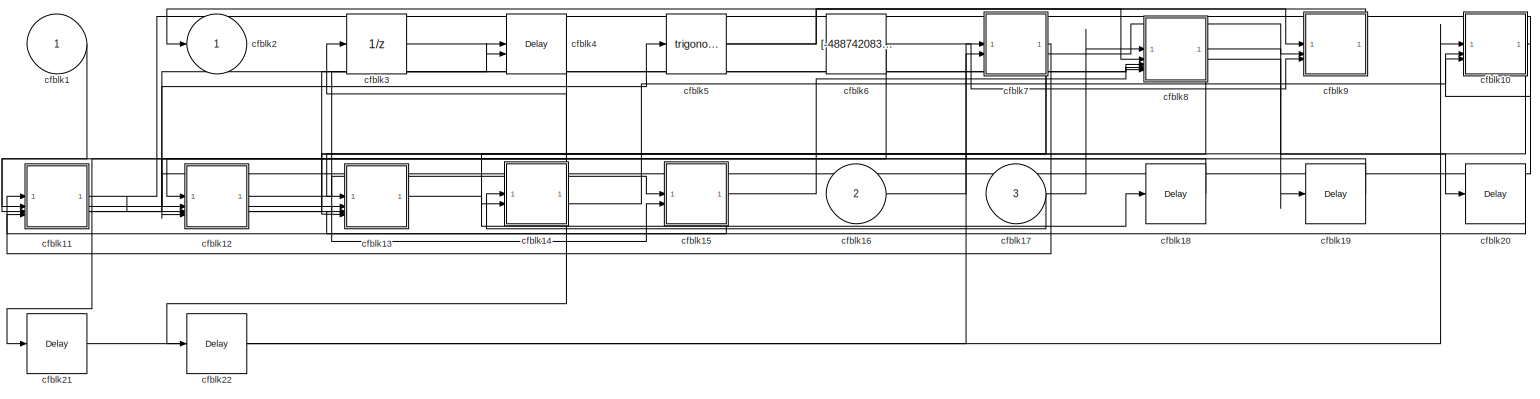
[diagram: cfblk57 - part 1/1, most of the canvas]
BLOCK [SubSystem] cfblk57
BLOCK [Inport] cfblk57/cfblk1
BLOCK [SubSystem] cfblk57/cfblk10
BLOCK [Inport] cfblk57/cfblk10/cfblk1
BLOCK [Sum] cfblk57/cfblk10/cfblk10
  IconShape = rectangular
  Inputs = +-
BLOCK [Product] cfblk57/cfblk10/cfblk11
  Inputs = *
BLOCK [Constant] cfblk57/cfblk10/cfblk12
  SampleTime = 1
  Value = [214957307.800664]
BLOCK [Constant] cfblk57/cfblk10/cfblk13
  SampleTime = 1
  Value = [-547301041.829441]
BLOCK [Constant] cfblk57/cfblk10/cfblk14
  SampleTime = 1
  Value = [871990443.068065]
BLOCK [Inport] cfblk57/cfblk10/cfblk15
  Port = 2
BLOCK [Inport] cfblk57/cfblk10/cfblk16
  Port = 3
BLOCK [Outport] cfblk57/cfblk10/cfblk17
  Port = 2
BLOCK [Delay] cfblk57/cfblk10/cfblk18
  InputPortMap = u0
  SampleTime = 1
BLOCK [Outport] cfblk57/cfblk10/cfblk2
BLOCK [Reference] cfblk57/cfblk10/cfblk3  REF=simulink/Discrete/Tapped Delay
  SourceBlock = simulink/Discrete/Tapped Delay
  SourceType = Tapped Delay Line
BLOCK [DiscreteZeroPole] cfblk57/cfblk10/cfblk4
  Gain = 1
  Poles = [0 0.5]
BLOCK [DiscreteIntegrator] cfblk57/cfblk10/cfblk5
  ICPrevOutput = DiscIntNeverNeededParam
  ICPrevScaledInput = DiscIntNeverNeededParam
  InitialConditionSetting = Auto
BLOCK [Reference] cfblk57/cfblk10/cfblk6  REF=simulink/Math
Operations/Slider
Gain
  SourceBlock = simulink/Math\nOperations/Slider\nGain
  SourceType = Slider Gain
BLOCK [Gain] cfblk57/cfblk10/cfblk7
  Gain = [-961031888.110048]
BLOCK [Sum] cfblk57/cfblk10/cfblk8
  IconShape = rectangular
  Inputs = +-
BLOCK [Signum] cfblk57/cfblk10/cfblk9
BLOCK [SubSystem] cfblk57/cfblk11
BLOCK [Inport] cfblk57/cfblk11/cfblk1
BLOCK [Inport] cfblk57/cfblk11/cfblk10
  Port = 2
BLOCK [Inport] cfblk57/cfblk11/cfblk11
  Port = 3
BLOCK [Inport] cfblk57/cfblk11/cfblk12
  Port = 4
BLOCK [Outport] cfblk57/cfblk11/cfblk13
  Port = 2
BLOCK [Outport] cfblk57/cfblk11/cfblk14
  Port = 3
BLOCK [Outport] cfblk57/cfblk11/cfblk2
BLOCK [Reference] cfblk57/cfblk11/cfblk3  REF=simulink/Discrete/Tapped Delay
  SourceBlock = simulink/Discrete/Tapped Delay
  SourceType = Tapped Delay Line
BLOCK [Reference] cfblk57/cfblk11/cfblk4  REF=simulink/Discrete/Transfer Fcn
First Order
  SourceBlock = simulink/Discrete/Transfer Fcn\nFirst Order
  SourceType = First Order Transfer Fcn
BLOCK [Reference] cfblk57/cfblk11/cfblk5  REF=simulink/Math
Operations/Slider
Gain
  SourceBlock = simulink/Math\nOperations/Slider\nGain
  SourceType = Slider Gain
BLOCK [Polyval] cfblk57/cfblk11/cfblk6
  Coefs = [ +2.081618890e-019, -1.441693666e-014, +4.719686976e-010, -8.536869453e-006, +1.621573104e-001, -8.087801117e+001 ]
BLOCK [ComplexToMagnitudeAngle] cfblk57/cfblk11/cfblk7
BLOCK [Sum] cfblk57/cfblk11/cfblk8
  Inputs = |++
BLOCK [Sum] cfblk57/cfblk11/cfblk9
  IconShape = rectangular
  Inputs = +
BLOCK [SubSystem] cfblk57/cfblk12
BLOCK [Inport] cfblk57/cfblk12/cfblk1
BLOCK [Trigonometry] cfblk57/cfblk12/cfblk10
BLOCK [Constant] cfblk57/cfblk12/cfblk11
  SampleTime = 1
  Value = [343190299.712040]
BLOCK [Constant] cfblk57/cfblk12/cfblk12
  SampleTime = 1
  Value = [949619341.202744]
BLOCK [Inport] cfblk57/cfblk12/cfblk13
  Port = 2
BLOCK [Inport] cfblk57/cfblk12/cfblk14
  Port = 3
BLOCK [Inport] cfblk57/cfblk12/cfblk15
  Port = 4
BLOCK [Outport] cfblk57/cfblk12/cfblk16
  Port = 2
BLOCK [Outport] cfblk57/cfblk12/cfblk17
  Port = 3
BLOCK [Outport] cfblk57/cfblk12/cfblk2
BLOCK [DiscreteZeroPole] cfblk57/cfblk12/cfblk3
  Gain = 1
  Poles = [0 0.5]
BLOCK [Reference] cfblk57/cfblk12/cfblk4  REF=simulink/Discrete/Transfer Fcn
Real Zero
  SourceBlock = simulink/Discrete/Transfer Fcn\nReal Zero
  SourceType = Transfer Fcn Real Zero
BLOCK [DiscreteTransferFcn] cfblk57/cfblk12/cfblk5
  InputPortMap = u0
  SampleTime = 1
BLOCK [Sin] cfblk57/cfblk12/cfblk6
  SampleTime = 0
  TimeSource = Use external signal
BLOCK [Sum] cfblk57/cfblk12/cfblk7
  IconShape = rectangular
BLOCK [Rounding] cfblk57/cfblk12/cfblk8
BLOCK [ComplexToRealImag] cfblk57/cfblk12/cfblk9
BLOCK [SubSystem] cfblk57/cfblk13
BLOCK [Inport] cfblk57/cfblk13/cfblk1
BLOCK [Constant] cfblk57/cfblk13/cfblk10
  SampleTime = 1
  Value = [303947422.520252]
BLOCK [Inport] cfblk57/cfblk13/cfblk11
  Port = 2
BLOCK [Inport] cfblk57/cfblk13/cfblk12
  Port = 3
BLOCK [Inport] cfblk57/cfblk13/cfblk13
  Port = 4
BLOCK [Delay] cfblk57/cfblk13/cfblk14
  InputPortMap = u0
  SampleTime = 1
BLOCK [Outport] cfblk57/cfblk13/cfblk2
BLOCK [Delay] cfblk57/cfblk13/cfblk3
  DelayLengthSource = Input port
  InputPortMap = u0,p1
  SampleTime = 1
BLOCK [Sum] cfblk57/cfblk13/cfblk4
  IconShape = rectangular
  Inputs = +-
BLOCK [Product] cfblk57/cfblk13/cfblk5
  Inputs = **
BLOCK [Assignment] cfblk57/cfblk13/cfblk6
  DiagnosticForDimensions = Warning
  IndexOptions = Index vector (dialog)
  Indices = 1
  OutputSizes = 1
BLOCK [Reshape] cfblk57/cfblk13/cfblk7
BLOCK [Abs] cfblk57/cfblk13/cfblk8
  SaturateOnIntegerOverflow = off
BLOCK [Math] cfblk57/cfblk13/cfblk9
  Operator = log10
BLOCK [SubSystem] cfblk57/cfblk14
BLOCK [Inport] cfblk57/cfblk14/cfblk1
BLOCK [Inport] cfblk57/cfblk14/cfblk10
  Port = 2
BLOCK [Outport] cfblk57/cfblk14/cfblk11
  Port = 2
BLOCK [Delay] cfblk57/cfblk14/cfblk12
  InputPortMap = u0
  SampleTime = 1
BLOCK [Outport] cfblk57/cfblk14/cfblk2
BLOCK [DiscreteFir] cfblk57/cfblk14/cfblk3
  InputPortMap = u0
  OutputPortMap = o0
  SampleTime = 1
BLOCK [Delay] cfblk57/cfblk14/cfblk4
  InputPortMap = u0
  SampleTime = 1
BLOCK [Reference] cfblk57/cfblk14/cfblk5  REF=simulink/Math
Operations/Slider
Gain
  SourceBlock = simulink/Math\nOperations/Slider\nGain
  SourceType = Slider Gain
BLOCK [Product] cfblk57/cfblk14/cfblk6
  Inputs = **
BLOCK [Product] cfblk57/cfblk14/cfblk7
  Inputs = **
BLOCK [Reference] cfblk57/cfblk14/cfblk8  REF=simulink/Math
Operations/Slider
Gain
  SourceBlock = simulink/Math\nOperations/Slider\nGain
  SourceType = Slider Gain
BLOCK [Constant] cfblk57/cfblk14/cfblk9
  SampleTime = 1
  Value = [-993453400.176832]
BLOCK [SubSystem] cfblk57/cfblk15
BLOCK [Inport] cfblk57/cfblk15/cfblk1
BLOCK [ComplexToMagnitudeAngle] cfblk57/cfblk15/cfblk10
BLOCK [Sin] cfblk57/cfblk15/cfblk11
  SampleTime = 0
  TimeSource = Use external signal
BLOCK [PermuteDimensions] cfblk57/cfblk15/cfblk12
BLOCK [Constant] cfblk57/cfblk15/cfblk13
  SampleTime = 1
  Value = [398074408.357430]
BLOCK [Constant] cfblk57/cfblk15/cfblk14
  SampleTime = 1
  Value = [-587353639.300088]
BLOCK [Inport] cfblk57/cfblk15/cfblk15
  Port = 2
BLOCK [Outport] cfblk57/cfblk15/cfblk2
BLOCK [Delay] cfblk57/cfblk15/cfblk3
  InputPortMap = u0,e6
  SampleTime = 1
  ShowEnablePort = on
BLOCK [Delay] cfblk57/cfblk15/cfblk4
  InputPortMap = u0
  SampleTime = 1
BLOCK [Product] cfblk57/cfblk15/cfblk5
  Inputs = *
BLOCK [Trigonometry] cfblk57/cfblk15/cfblk6
BLOCK [Polyval] cfblk57/cfblk15/cfblk7
  Coefs = [ +2.081618890e-019, -1.441693666e-014, +4.719686976e-010, -8.536869453e-006, +1.621573104e-001, -8.087801117e+001 ]
BLOCK [PermuteDimensions] cfblk57/cfblk15/cfblk8
BLOCK [Sqrt] cfblk57/cfblk15/cfblk9
BLOCK [Inport] cfblk57/cfblk16
  Port = 2
BLOCK [Inport] cfblk57/cfblk17
  Port = 3
BLOCK [Delay] cfblk57/cfblk18
  InputPortMap = u0
  SampleTime = 1
BLOCK [Delay] cfblk57/cfblk19
  InputPortMap = u0
  SampleTime = 1
BLOCK [Outport] cfblk57/cfblk2
BLOCK [Delay] cfblk57/cfblk20
  InputPortMap = u0
  SampleTime = 1
BLOCK [Delay] cfblk57/cfblk21
  InputPortMap = u0
  SampleTime = 1
BLOCK [Delay] cfblk57/cfblk22
  InputPortMap = u0
  SampleTime = 1
BLOCK [UnitDelay] cfblk57/cfblk3
  HasFrameUpgradeWarning = on
BLOCK [Delay] cfblk57/cfblk4
  InputPortMap = u0,e6
  SampleTime = 1
  ShowEnablePort = on
BLOCK [Trigonometry] cfblk57/cfblk5
BLOCK [Constant] cfblk57/cfblk6
  SampleTime = 1
  Value = [-488742083.412715]
BLOCK [SubSystem] cfblk57/cfblk7
BLOCK [Inport] cfblk57/cfblk7/cfblk1
BLOCK [Constant] cfblk57/cfblk7/cfblk10
  SampleTime = 1
  Value = [-113188143.412463]
BLOCK [Inport] cfblk57/cfblk7/cfblk11
  Port = 2
BLOCK [Outport] cfblk57/cfblk7/cfblk12
  Port = 2
BLOCK [Outport] cfblk57/cfblk7/cfblk13
  Port = 3
BLOCK [Outport] cfblk57/cfblk7/cfblk2
BLOCK [Delay] cfblk57/cfblk7/cfblk3
  DelayLengthSource = Input port
  InputPortMap = u0,p1
  SampleTime = 1
BLOCK [Reference] cfblk57/cfblk7/cfblk4  REF=simulink/Discrete/Tapped Delay
  SourceBlock = simulink/Discrete/Tapped Delay
  SourceType = Tapped Delay Line
BLOCK [DiscreteFir] cfblk57/cfblk7/cfblk5
  InputPortMap = u0
  OutputPortMap = o0
  SampleTime = 1
BLOCK [UnaryMinus] cfblk57/cfblk7/cfblk6
BLOCK [Reference] cfblk57/cfblk7/cfblk7  REF=simulink/Math
Operations/Slider
Gain
  SourceBlock = simulink/Math\nOperations/Slider\nGain
  SourceType = Slider Gain
BLOCK [Product] cfblk57/cfblk7/cfblk8
BLOCK [Constant] cfblk57/cfblk7/cfblk9
  SampleTime = 1
  Value = [276723949.793369]
BLOCK [SubSystem] cfblk57/cfblk8
BLOCK [Inport] cfblk57/cfblk8/cfblk1
BLOCK [Inport] cfblk57/cfblk8/cfblk10
  Port = 4
BLOCK [Inport] cfblk57/cfblk8/cfblk11
  Port = 5
BLOCK [Outport] cfblk57/cfblk8/cfblk12
  Port = 2
BLOCK [Delay] cfblk57/cfblk8/cfblk13
  InputPortMap = u0
  SampleTime = 1
BLOCK [Outport] cfblk57/cfblk8/cfblk2
BLOCK [Delay] cfblk57/cfblk8/cfblk3
  InputPortMap = u0,e6
  SampleTime = 1
  ShowEnablePort = on
BLOCK [DiscreteFir] cfblk57/cfblk8/cfblk4
  InputPortMap = u0
  OutputPortMap = o0
  SampleTime = 1
BLOCK [ComplexToRealImag] cfblk57/cfblk8/cfblk5
BLOCK [Sum] cfblk57/cfblk8/cfblk6
  IconShape = rectangular
  Inputs = -+
BLOCK [ComplexToRealImag] cfblk57/cfblk8/cfblk7
BLOCK [Inport] cfblk57/cfblk8/cfblk8
  Port = 2
BLOCK [Inport] cfblk57/cfblk8/cfblk9
  Port = 3
BLOCK [SubSystem] cfblk57/cfblk9
BLOCK [Inport] cfblk57/cfblk9/cfblk1
BLOCK [Squeeze] cfblk57/cfblk9/cfblk10
BLOCK [Reshape] cfblk57/cfblk9/cfblk11
BLOCK [Inport] cfblk57/cfblk9/cfblk12
  Port = 2
BLOCK [Inport] cfblk57/cfblk9/cfblk13
  Port = 3
BLOCK [Outport] cfblk57/cfblk9/cfblk2
BLOCK [Delay] cfblk57/cfblk9/cfblk3
  DelayLengthSource = Input port
  InputPortMap = u0,p1
  SampleTime = 1
BLOCK [Delay] cfblk57/cfblk9/cfblk4
  InputPortMap = u0
  SampleTime = 1
BLOCK [Reference] cfblk57/cfblk9/cfblk5  REF=simulink/Discrete/Transfer Fcn
Real Zero
  SourceBlock = simulink/Discrete/Transfer Fcn\nReal Zero
  SourceType = Transfer Fcn Real Zero
BLOCK [DiscreteFilter] cfblk57/cfblk9/cfblk6
  InputPortMap = u0
  SampleTime = 1
BLOCK [DiscreteStateSpace] cfblk57/cfblk9/cfblk7
BLOCK [Sum] cfblk57/cfblk9/cfblk8
  IconShape = rectangular
  Inputs = +
BLOCK [Sum] cfblk57/cfblk9/cfblk9
  Inputs = |++
BLOCK [SubSystem] cfblk58
BLOCK [Inport] cfblk58/cfblk1
BLOCK [Inport] cfblk58/cfblk10
  Port = 2
BLOCK [Delay] cfblk58/cfblk11
  InputPortMap = u0
  SampleTime = 1
BLOCK [Delay] cfblk58/cfblk12
  InputPortMap = u0
  SampleTime = 1
BLOCK [Delay] cfblk58/cfblk13
  InputPortMap = u0
  SampleTime = 1
BLOCK [Delay] cfblk58/cfblk14
  InputPortMap = u0
  SampleTime = 1
BLOCK [Delay] cfblk58/cfblk15
  InputPortMap = u0
  SampleTime = 1
BLOCK [Outport] cfblk58/cfblk2
BLOCK [Delay] cfblk58/cfblk3
  DelayLengthSource = Input port
  InputPortMap = u0,p1
  SampleTime = 1
BLOCK [Gain] cfblk58/cfblk4
  Gain = [675508324.106097]
BLOCK [Sum] cfblk58/cfblk5
  IconShape = rectangular
  Inputs = +-
BLOCK [Sum] cfblk58/cfblk6
  IconShape = rectangular
  Inputs = +
BLOCK [Constant] cfblk58/cfblk7
  SampleTime = 1
  Value = [504559482.739236]
BLOCK [SubSystem] cfblk58/cfblk8
BLOCK [Inport] cfblk58/cfblk8/cfblk1
BLOCK [Inport] cfblk58/cfblk8/cfblk10
  Port = 3
BLOCK [Inport] cfblk58/cfblk8/cfblk11
  Port = 4
BLOCK [Inport] cfblk58/cfblk8/cfblk12
  Port = 5
BLOCK [Inport] cfblk58/cfblk8/cfblk13
  Port = 6
BLOCK [Inport] cfblk58/cfblk8/cfblk14
  Port = 7
BLOCK [Outport] cfblk58/cfblk8/cfblk15
  Port = 2
BLOCK [Outport] cfblk58/cfblk8/cfblk16
  Port = 3
BLOCK [Outport] cfblk58/cfblk8/cfblk17
  Port = 4
BLOCK [Delay] cfblk58/cfblk8/cfblk18
  InputPortMap = u0
  SampleTime = 1
BLOCK [Outport] cfblk58/cfblk8/cfblk2
BLOCK [DiscreteFilter] cfblk58/cfblk8/cfblk3
  InputPortMap = u0
  SampleTime = 1
BLOCK [Math] cfblk58/cfblk8/cfblk4
  Operator = mod
BLOCK [Product] cfblk58/cfblk8/cfblk5
  Inputs = *
BLOCK [Gain] cfblk58/cfblk8/cfblk6
  Gain = [-633989241.522944]
BLOCK [Sum] cfblk58/cfblk8/cfblk7
  IconShape = rectangular
  Inputs = +
BLOCK [Signum] cfblk58/cfblk8/cfblk8
BLOCK [Inport] cfblk58/cfblk8/cfblk9
  Port = 2
BLOCK [SubSystem] cfblk58/cfblk9
BLOCK [Inport] cfblk58/cfblk9/cfblk1
BLOCK [Inport] cfblk58/cfblk9/cfblk10
  Port = 3
BLOCK [Outport] cfblk58/cfblk9/cfblk11
  Port = 2
BLOCK [Outport] cfblk58/cfblk9/cfblk2
BLOCK [Reference] cfblk58/cfblk9/cfblk3  REF=slpidlib/PID Controller (2DOF)
  LibrarySourceBlock = simulink/Discrete/Discrete PID Controller (2DOF)
  SourceBlock = slpidlib/PID Controller (2DOF)
  SourceType = PID 2dof
BLOCK [DiscreteStateSpace] cfblk58/cfblk9/cfblk4
BLOCK [ComplexToRealImag] cfblk58/cfblk9/cfblk5
BLOCK [Sqrt] cfblk58/cfblk9/cfblk6
BLOCK [Sqrt] cfblk58/cfblk9/cfblk7
BLOCK [Constant] cfblk58/cfblk9/cfblk8
  SampleTime = 1
  Value = [-73162090.597440]
BLOCK [Inport] cfblk58/cfblk9/cfblk9
  Port = 2
BLOCK [SubSystem] cfblk59
BLOCK [Inport] cfblk59/cfblk1
BLOCK [SubSystem] cfblk59/cfblk10
BLOCK [Inport] cfblk59/cfblk10/cfblk1
BLOCK [Constant] cfblk59/cfblk10/cfblk10
  SampleTime = 1
  Value = [-799526649.376795]
BLOCK [Inport] cfblk59/cfblk10/cfblk11
  Port = 2
BLOCK [Inport] cfblk59/cfblk10/cfblk12
  Port = 3
BLOCK [Inport] cfblk59/cfblk10/cfblk13
  Port = 4
BLOCK [Inport] cfblk59/cfblk10/cfblk14
  Port = 5
BLOCK [Inport] cfblk59/cfblk10/cfblk15
  Port = 6
BLOCK [Outport] cfblk59/cfblk10/cfblk16
  Port = 2
BLOCK [DataTypeConversion] cfblk59/cfblk10/cfblk17
  RndMeth = Floor
  SaturateOnIntegerOverflow = off
BLOCK [Outport] cfblk59/cfblk10/cfblk2
BLOCK [Reference] cfblk59/cfblk10/cfblk3  REF=simulink/Discrete/Transfer Fcn
Lead or Lag
  SourceBlock = simulink/Discrete/Transfer Fcn\nLead or Lag
  SourceType = Lead or Lag Compensator
BLOCK [UnitDelay] cfblk59/cfblk10/cfblk4
  HasFrameUpgradeWarning = on
BLOCK [DiscreteStateSpace] cfblk59/cfblk10/cfblk5
BLOCK [ComplexToMagnitudeAngle] cfblk59/cfblk10/cfblk6
BLOCK [Product] cfblk59/cfblk10/cfblk7
BLOCK [Product] cfblk59/cfblk10/cfblk8
  Inputs = **
BLOCK [Gain] cfblk59/cfblk10/cfblk9
  Gain = [-51794296.399981]
BLOCK [SubSystem] cfblk59/cfblk11
BLOCK [Inport] cfblk59/cfblk11/cfblk1
BLOCK [Delay] cfblk59/cfblk11/cfblk10
  InputPortMap = u0
  SampleTime = 1
BLOCK [Delay] cfblk59/cfblk11/cfblk11
  InputPortMap = u0
  SampleTime = 1
BLOCK [Outport] cfblk59/cfblk11/cfblk2
BLOCK [Rounding] cfblk59/cfblk11/cfblk3
BLOCK [Sum] cfblk59/cfblk11/cfblk4
  IconShape = rectangular
  Inputs = +-
BLOCK [Assignment] cfblk59/cfblk11/cfblk5
  DiagnosticForDimensions = Warning
  IndexOptions = Index vector (dialog)
  Indices = 1
  OutputSizes = 1
BLOCK [Reference] cfblk59/cfblk11/cfblk6  REF=simulink/Math
Operations/MinMax
Running
Resettable
  SourceBlock = simulink/Math\nOperations/MinMax\nRunning\nResettable
  SourceType = MinMax Running Resettable
BLOCK [Sum] cfblk59/cfblk11/cfblk7
  IconShape = rectangular
  Inputs = --
BLOCK [Outport] cfblk59/cfblk11/cfblk8
  Port = 2
BLOCK [Outport] cfblk59/cfblk11/cfblk9
  Port = 3
BLOCK [SubSystem] cfblk59/cfblk12
BLOCK [Inport] cfblk59/cfblk12/cfblk1
BLOCK [Outport] cfblk59/cfblk12/cfblk2
BLOCK [DiscreteFir] cfblk59/cfblk12/cfblk3
  InputPortMap = u0
  OutputPortMap = o0
  SampleTime = 1
BLOCK [Reference] cfblk59/cfblk12/cfblk4  REF=simulink/Discrete/Transfer Fcn
Lead or Lag
  SourceBlock = simulink/Discrete/Transfer Fcn\nLead or Lag
  SourceType = Lead or Lag Compensator
BLOCK [Gain] cfblk59/cfblk12/cfblk5
  Gain = [902161619.426705]
BLOCK [MinMax] cfblk59/cfblk12/cfblk6
  Function = max
  Inputs = 3
BLOCK [Constant] cfblk59/cfblk12/cfblk7
  SampleTime = 1
  Value = [865177994.704862]
BLOCK [Inport] cfblk59/cfblk12/cfblk8
  Port = 2
BLOCK [Inport] cfblk59/cfblk13
  Port = 2
BLOCK [Outport] cfblk59/cfblk14
  Port = 2
BLOCK [Delay] cfblk59/cfblk15
  InputPortMap = u0
  SampleTime = 1
BLOCK [Delay] cfblk59/cfblk16
  InputPortMap = u0
  SampleTime = 1
BLOCK [Outport] cfblk59/cfblk2
BLOCK [Reference] cfblk59/cfblk3  REF=simulink/Discrete/Transfer Fcn
First Order
  SourceBlock = simulink/Discrete/Transfer Fcn\nFirst Order
  SourceType = First Order Transfer Fcn
BLOCK [Abs] cfblk59/cfblk4
  SaturateOnIntegerOverflow = off
BLOCK [Product] cfblk59/cfblk5
  Inputs = **
BLOCK [Signum] cfblk59/cfblk6
BLOCK [ComplexToMagnitudeAngle] cfblk59/cfblk7
BLOCK [Sum] cfblk59/cfblk8
  Inputs = |++
BLOCK [Constant] cfblk59/cfblk9
  SampleTime = 1
  Value = [391496658.792457]
BLOCK [DiscreteTransferFcn] cfblk6
  InputPortMap = u0
  SampleTime = 1
BLOCK [SubSystem] cfblk60
BLOCK [Inport] cfblk60/cfblk1
BLOCK [Outport] cfblk60/cfblk10
  Port = 2
BLOCK [Outport] cfblk60/cfblk11
  Port = 3
BLOCK [Delay] cfblk60/cfblk12
  InputPortMap = u0
  SampleTime = 1
BLOCK [Delay] cfblk60/cfblk13
  InputPortMap = u0
  SampleTime = 1
BLOCK [Outport] cfblk60/cfblk2
BLOCK [Reference] cfblk60/cfblk3  REF=simulink/Discrete/Transfer Fcn
Lead or Lag
  SourceBlock = simulink/Discrete/Transfer Fcn\nLead or Lag
  SourceType = Lead or Lag Compensator
BLOCK [DiscreteZeroPole] cfblk60/cfblk4
  Gain = 1
  Poles = [0 0.5]
BLOCK [MinMax] cfblk60/cfblk5
  Function = max
  Inputs = 3
BLOCK [PermuteDimensions] cfblk60/cfblk6
BLOCK [Sin] cfblk60/cfblk7
  SampleTime = 0
  TimeSource = Use external signal
BLOCK [SubSystem] cfblk60/cfblk8
BLOCK [Inport] cfblk60/cfblk8/cfblk1
BLOCK [Inport] cfblk60/cfblk8/cfblk10
  Port = 3
BLOCK [Inport] cfblk60/cfblk8/cfblk11
  Port = 4
BLOCK [Inport] cfblk60/cfblk8/cfblk12
  Port = 5
BLOCK [Outport] cfblk60/cfblk8/cfblk13
  Port = 2
BLOCK [Outport] cfblk60/cfblk8/cfblk14
  Port = 3
BLOCK [Outport] cfblk60/cfblk8/cfblk2
BLOCK [Delay] cfblk60/cfblk8/cfblk3
  DelayLengthSource = Input port
  InputPortMap = u0,p1
  SampleTime = 1
BLOCK [ComplexToMagnitudeAngle] cfblk60/cfblk8/cfblk4
BLOCK [Reshape] cfblk60/cfblk8/cfblk5
BLOCK [ComplexToRealImag] cfblk60/cfblk8/cfblk6
BLOCK [Constant] cfblk60/cfblk8/cfblk7
  SampleTime = 1
  Value = [102961489.191398]
BLOCK [Constant] cfblk60/cfblk8/cfblk8
  SampleTime = 1
  Value = [-890234968.492882]
BLOCK [Inport] cfblk60/cfblk8/cfblk9
  Port = 2
BLOCK [SubSystem] cfblk60/cfblk9
BLOCK [Inport] cfblk60/cfblk9/cfblk1
BLOCK [Inport] cfblk60/cfblk9/cfblk10
  Port = 2
BLOCK [Inport] cfblk60/cfblk9/cfblk11
  Port = 3
BLOCK [Outport] cfblk60/cfblk9/cfblk2
BLOCK [Reference] cfblk60/cfblk9/cfblk3  REF=simulink/Discrete/Difference
  SourceBlock = simulink/Discrete/Difference
  SourceType = Difference
BLOCK [Reference] cfblk60/cfblk9/cfblk4  REF=simulink/Discrete/Transfer Fcn
First Order
  SourceBlock = simulink/Discrete/Transfer Fcn\nFirst Order
  SourceType = First Order Transfer Fcn
BLOCK [Product] cfblk60/cfblk9/cfblk5
  Inputs = *
BLOCK [Product] cfblk60/cfblk9/cfblk6
  Inputs = *
BLOCK [Sum] cfblk60/cfblk9/cfblk7
  Inputs = |++
BLOCK [Constant] cfblk60/cfblk9/cfblk8
  SampleTime = 1
  Value = [172466346.597371]
BLOCK [Constant] cfblk60/cfblk9/cfblk9
  SampleTime = 1
  Value = [-113647376.115251]
BLOCK [SubSystem] cfblk61
BLOCK [Inport] cfblk61/cfblk1
BLOCK [SubSystem] cfblk61/cfblk10
BLOCK [Inport] cfblk61/cfblk10/cfblk1
BLOCK [Inport] cfblk61/cfblk10/cfblk10
  Port = 2
BLOCK [Delay] cfblk61/cfblk10/cfblk11
  InputPortMap = u0
  SampleTime = 1
BLOCK [Outport] cfblk61/cfblk10/cfblk2
BLOCK [Reference] cfblk61/cfblk10/cfblk3  REF=slpidlib/PID Controller (2DOF)
  LibrarySourceBlock = simulink/Discrete/Discrete PID Controller (2DOF)
  SourceBlock = slpidlib/PID Controller (2DOF)
  SourceType = PID 2dof
BLOCK [Reference] cfblk61/cfblk10/cfblk4  REF=simulink/Discrete/Transfer Fcn
Real Zero
  SourceBlock = simulink/Discrete/Transfer Fcn\nReal Zero
  SourceType = Transfer Fcn Real Zero
BLOCK [DiscreteZeroPole] cfblk61/cfblk10/cfblk5
  Gain = 1
  Poles = [0 0.5]
BLOCK [Signum] cfblk61/cfblk10/cfblk6
BLOCK [Gain] cfblk61/cfblk10/cfblk7
  Gain = [299264373.631218]
BLOCK [Constant] cfblk61/cfblk10/cfblk8
  SampleTime = 1
  Value = [-280929519.369593]
BLOCK [Constant] cfblk61/cfblk10/cfblk9
  SampleTime = 1
  Value = [-222455009.243467]
BLOCK [SubSystem] cfblk61/cfblk11
BLOCK [Inport] cfblk61/cfblk11/cfblk1
BLOCK [Inport] cfblk61/cfblk11/cfblk10
  Port = 2
BLOCK [Inport] cfblk61/cfblk11/cfblk11
  Port = 3
BLOCK [Inport] cfblk61/cfblk11/cfblk12
  Port = 4
BLOCK [Outport] cfblk61/cfblk11/cfblk13
  Port = 2
BLOCK [Outport] cfblk61/cfblk11/cfblk2
BLOCK [Reference] cfblk61/cfblk11/cfblk3  REF=simulink/Discrete/Difference
  SourceBlock = simulink/Discrete/Difference
  SourceType = Difference
BLOCK [Reference] cfblk61/cfblk11/cfblk4  REF=simulink/Discrete/Difference
  SourceBlock = simulink/Discrete/Difference
  SourceType = Difference
BLOCK [DotProduct] cfblk61/cfblk11/cfblk5
  OutDataTypeStr = Inherit: Inherit via internal rule
BLOCK [Sqrt] cfblk61/cfblk11/cfblk6
BLOCK [Sum] cfblk61/cfblk11/cfblk7
  Inputs = |++
BLOCK [Reshape] cfblk61/cfblk11/cfblk8
BLOCK [Constant] cfblk61/cfblk11/cfblk9
  SampleTime = 1
  Value = [-936052059.241793]
BLOCK [SubSystem] cfblk61/cfblk12
BLOCK [Inport] cfblk61/cfblk12/cfblk1
BLOCK [Inport] cfblk61/cfblk12/cfblk10
  Port = 2
BLOCK [Inport] cfblk61/cfblk12/cfblk11
  Port = 3
BLOCK [Delay] cfblk61/cfblk12/cfblk12
  InputPortMap = u0
  SampleTime = 1
BLOCK [Delay] cfblk61/cfblk12/cfblk13
  InputPortMap = u0
  SampleTime = 1
BLOCK [Outport] cfblk61/cfblk12/cfblk2
BLOCK [Reference] cfblk61/cfblk12/cfblk3  REF=simulink/Discrete/Transfer Fcn
Real Zero
  SourceBlock = simulink/Discrete/Transfer Fcn\nReal Zero
  SourceType = Transfer Fcn Real Zero
BLOCK [DiscreteZeroPole] cfblk61/cfblk12/cfblk4
  Gain = 1
  Poles = [0 0.5]
BLOCK [Delay] cfblk61/cfblk12/cfblk5
  DelayLengthSource = Input port
  InputPortMap = u0,p1
  SampleTime = 1
BLOCK [Bias] cfblk61/cfblk12/cfblk6
  Bias = [-410248870.074913]
  SaturateOnIntegerOverflow = off
BLOCK [PermuteDimensions] cfblk61/cfblk12/cfblk7
BLOCK [Sum] cfblk61/cfblk12/cfblk8
  Inputs = |++
BLOCK [Rounding] cfblk61/cfblk12/cfblk9
BLOCK [SubSystem] cfblk61/cfblk13
BLOCK [Inport] cfblk61/cfblk13/cfblk1
BLOCK [Gain] cfblk61/cfblk13/cfblk10
  Gain = [748401351.334873]
BLOCK [Constant] cfblk61/cfblk13/cfblk11
  SampleTime = 1
  Value = [657202630.380208]
BLOCK [Inport] cfblk61/cfblk13/cfblk12
  Port = 2
BLOCK [Inport] cfblk61/cfblk13/cfblk13
  Port = 3
BLOCK [Outport] cfblk61/cfblk13/cfblk14
  Port = 2
BLOCK [Outport] cfblk61/cfblk13/cfblk2
BLOCK [Reference] cfblk61/cfblk13/cfblk3  REF=simulink/Discrete/Difference
  SourceBlock = simulink/Discrete/Difference
  SourceType = Difference
BLOCK [Delay] cfblk61/cfblk13/cfblk4
  DelayLengthSource = Input port
  InputPortMap = u0,p1
  SampleTime = 1
BLOCK [Reference] cfblk61/cfblk13/cfblk5  REF=slpidlib/PID Controller (2DOF)
  LibrarySourceBlock = simulink/Discrete/Discrete PID Controller (2DOF)
  SourceBlock = slpidlib/PID Controller (2DOF)
  SourceType = PID 2dof
BLOCK [Reference] cfblk61/cfblk13/cfblk6  REF=simulink/Discrete/Tapped Delay
  SourceBlock = simulink/Discrete/Tapped Delay
  SourceType = Tapped Delay Line
BLOCK [Trigonometry] cfblk61/cfblk13/cfblk7
BLOCK [Sum] cfblk61/cfblk13/cfblk8
  Inputs = |++
BLOCK [UnaryMinus] cfblk61/cfblk13/cfblk9
BLOCK [Inport] cfblk61/cfblk14
  Port = 2
BLOCK [Outport] cfblk61/cfblk15
  Port = 2
BLOCK [Delay] cfblk61/cfblk16
  InputPortMap = u0
  SampleTime = 1
BLOCK [Delay] cfblk61/cfblk17
  InputPortMap = u0
  SampleTime = 1
BLOCK [Delay] cfblk61/cfblk18
  InputPortMap = u0
  SampleTime = 1
BLOCK [Delay] cfblk61/cfblk19
  InputPortMap = u0
  SampleTime = 1
BLOCK [Outport] cfblk61/cfblk2
BLOCK [Product] cfblk61/cfblk3
  Inputs = **
BLOCK [ComplexToRealImag] cfblk61/cfblk4
BLOCK [Abs] cfblk61/cfblk5
  SaturateOnIntegerOverflow = off
BLOCK [Product] cfblk61/cfblk6
BLOCK [Abs] cfblk61/cfblk7
  SaturateOnIntegerOverflow = off
BLOCK [Constant] cfblk61/cfblk8
  SampleTime = 1
  Value = [-852535556.322466]
BLOCK [SubSystem] cfblk61/cfblk9
BLOCK [Inport] cfblk61/cfblk9/cfblk1
BLOCK [Signum] cfblk61/cfblk9/cfblk10
BLOCK [Constant] cfblk61/cfblk9/cfblk11
  SampleTime = 1
  Value = [-840862276.397243]
BLOCK [Constant] cfblk61/cfblk9/cfblk12
  SampleTime = 1
  Value = [-81916355.235277]
BLOCK [Inport] cfblk61/cfblk9/cfblk13
  Port = 2
BLOCK [Inport] cfblk61/cfblk9/cfblk14
  Port = 3
BLOCK [Inport] cfblk61/cfblk9/cfblk15
  Port = 4
BLOCK [Outport] cfblk61/cfblk9/cfblk2
BLOCK [Reference] cfblk61/cfblk9/cfblk3  REF=simulink/Discrete/Tapped Delay
  SourceBlock = simulink/Discrete/Tapped Delay
  SourceType = Tapped Delay Line
BLOCK [Bias] cfblk61/cfblk9/cfblk4
  Bias = [359328587.916244]
  SaturateOnIntegerOverflow = off
BLOCK [Abs] cfblk61/cfblk9/cfblk5
  SaturateOnIntegerOverflow = off
BLOCK [Sin] cfblk61/cfblk9/cfblk6
  SampleTime = 0
  TimeSource = Use external signal
BLOCK [Squeeze] cfblk61/cfblk9/cfblk7
BLOCK [Trigonometry] cfblk61/cfblk9/cfblk8
BLOCK [Sum] cfblk61/cfblk9/cfblk9
  IconShape = rectangular
  Inputs = +-
BLOCK [SubSystem] cfblk62
BLOCK [Inport] cfblk62/cfblk1
BLOCK [Constant] cfblk62/cfblk10
  SampleTime = 1
  Value = [-832189116.006861]
BLOCK [SubSystem] cfblk62/cfblk11
BLOCK [Inport] cfblk62/cfblk11/cfblk1
BLOCK [Constant] cfblk62/cfblk11/cfblk10
  SampleTime = 1
  Value = [-735355270.305635]
BLOCK [Delay] cfblk62/cfblk11/cfblk11
  InputPortMap = u0
  SampleTime = 1
BLOCK [Outport] cfblk62/cfblk11/cfblk2
BLOCK [Delay] cfblk62/cfblk11/cfblk3
  InputPortMap = u0,e6
  SampleTime = 1
  ShowEnablePort = on
BLOCK [Sum] cfblk62/cfblk11/cfblk4
  IconShape = rectangular
  Inputs = -+
BLOCK [Squeeze] cfblk62/cfblk11/cfblk5
BLOCK [Sum] cfblk62/cfblk11/cfblk6
  IconShape = rectangular
  Inputs = -+
BLOCK [Reshape] cfblk62/cfblk11/cfblk7
BLOCK [Gain] cfblk62/cfblk11/cfblk8
  Gain = [2530729.757843]
BLOCK [Rounding] cfblk62/cfblk11/cfblk9
BLOCK [SubSystem] cfblk62/cfblk12
BLOCK [Inport] cfblk62/cfblk12/cfblk1
BLOCK [Sin] cfblk62/cfblk12/cfblk10
  SampleTime = 0
  TimeSource = Use external signal
BLOCK [Bias] cfblk62/cfblk12/cfblk11
  Bias = [-902038574.389532]
  SaturateOnIntegerOverflow = off
BLOCK [Constant] cfblk62/cfblk12/cfblk12
  SampleTime = 1
  Value = [-447760843.906769]
BLOCK [Inport] cfblk62/cfblk12/cfblk13
  Port = 2
BLOCK [Inport] cfblk62/cfblk12/cfblk14
  Port = 3
BLOCK [Inport] cfblk62/cfblk12/cfblk15
  Port = 4
BLOCK [Outport] cfblk62/cfblk12/cfblk2
BLOCK [Reference] cfblk62/cfblk12/cfblk3  REF=simulink/Discrete/Transfer Fcn
First Order
  SourceBlock = simulink/Discrete/Transfer Fcn\nFirst Order
  SourceType = First Order Transfer Fcn
BLOCK [DiscreteFilter] cfblk62/cfblk12/cfblk4
  InputPortMap = u0
  SampleTime = 1
BLOCK [DiscreteFir] cfblk62/cfblk12/cfblk5
  InputPortMap = u0
  OutputPortMap = o0
  SampleTime = 1
BLOCK [ComplexToMagnitudeAngle] cfblk62/cfblk12/cfblk6
BLOCK [ComplexToRealImag] cfblk62/cfblk12/cfblk7
BLOCK [Sum] cfblk62/cfblk12/cfblk8
  IconShape = rectangular
  Inputs = +-
BLOCK [Sin] cfblk62/cfblk12/cfblk9
  SampleTime = 0
  TimeSource = Use external signal
BLOCK [Inport] cfblk62/cfblk13
  Port = 2
BLOCK [Delay] cfblk62/cfblk14
  InputPortMap = u0
  SampleTime = 1
BLOCK [Outport] cfblk62/cfblk2
BLOCK [Reference] cfblk62/cfblk3  REF=simulink/Discrete/Transfer Fcn
Lead or Lag
  SourceBlock = simulink/Discrete/Transfer Fcn\nLead or Lag
  SourceType = Lead or Lag Compensator
BLOCK [Reference] cfblk62/cfblk4  REF=simulink/Discrete/Transfer Fcn
Real Zero
  SourceBlock = simulink/Discrete/Transfer Fcn\nReal Zero
  SourceType = Transfer Fcn Real Zero
BLOCK [Trigonometry] cfblk62/cfblk5
BLOCK [Reshape] cfblk62/cfblk6
BLOCK [Gain] cfblk62/cfblk7
  Gain = [373152836.479357]
BLOCK [Reference] cfblk62/cfblk8  REF=simulink/Math
Operations/Slider
Gain
  SourceBlock = simulink/Math\nOperations/Slider\nGain
  SourceType = Slider Gain
BLOCK [Product] cfblk62/cfblk9
BLOCK [SubSystem] cfblk63
BLOCK [Inport] cfblk63/cfblk1
BLOCK [Sum] cfblk63/cfblk10
  IconShape = rectangular
  Inputs = +
BLOCK [Sum] cfblk63/cfblk11
  Inputs = |++
BLOCK [Squeeze] cfblk63/cfblk12
BLOCK [SubSystem] cfblk63/cfblk13
BLOCK [Inport] cfblk63/cfblk13/cfblk1
BLOCK [Outport] cfblk63/cfblk13/cfblk2
BLOCK [Sum] cfblk63/cfblk13/cfblk3
  IconShape = rectangular
  Inputs = +
BLOCK [Sum] cfblk63/cfblk13/cfblk4
  IconShape = rectangular
  Inputs = +-
BLOCK [UnaryMinus] cfblk63/cfblk13/cfblk5
BLOCK [Constant] cfblk63/cfblk13/cfblk6
  SampleTime = 1
  Value = [-714281017.050597]
BLOCK [Inport] cfblk63/cfblk13/cfblk7
  Port = 2
BLOCK [Inport] cfblk63/cfblk13/cfblk8
  Port = 3
BLOCK [Inport] cfblk63/cfblk13/cfblk9
  Port = 4
BLOCK [Inport] cfblk63/cfblk14
  Port = 2
BLOCK [Inport] cfblk63/cfblk15
  Port = 3
BLOCK [Inport] cfblk63/cfblk16
  Port = 4
BLOCK [Delay] cfblk63/cfblk17
  InputPortMap = u0
  SampleTime = 1
BLOCK [Outport] cfblk63/cfblk2
BLOCK [Reference] cfblk63/cfblk3  REF=simulink/Discrete/Transfer Fcn
First Order
  SourceBlock = simulink/Discrete/Transfer Fcn\nFirst Order
  SourceType = First Order Transfer Fcn
BLOCK [DiscreteFir] cfblk63/cfblk4
  InputPortMap = u0
  OutputPortMap = o0
  SampleTime = 1
BLOCK [Reference] cfblk63/cfblk5  REF=simulink/Discrete/Transfer Fcn
Real Zero
  SourceBlock = simulink/Discrete/Transfer Fcn\nReal Zero
  SourceType = Transfer Fcn Real Zero
BLOCK [Gain] cfblk63/cfblk6
  Gain = [776426309.759099]
BLOCK [ComplexToRealImag] cfblk63/cfblk7
BLOCK [Sin] cfblk63/cfblk8
  SampleTime = 0
  TimeSource = Use external signal
BLOCK [UnaryMinus] cfblk63/cfblk9
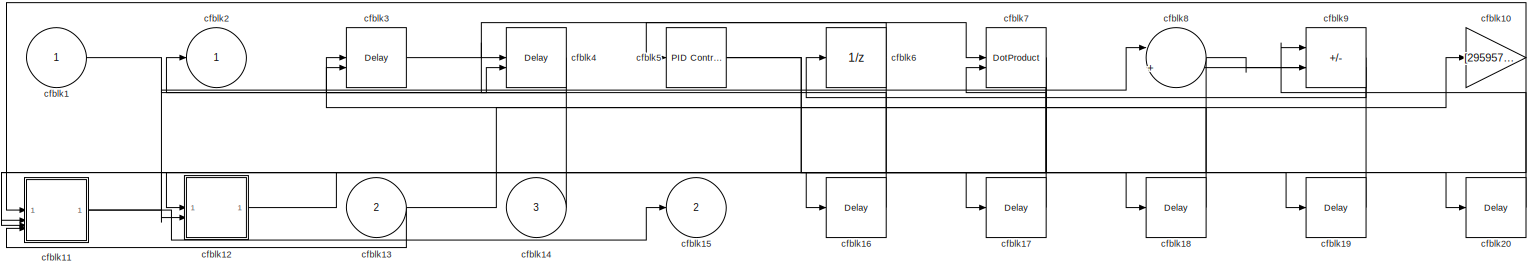
[diagram: cfblk64 - part 1/1, most of the canvas]
BLOCK [SubSystem] cfblk64
BLOCK [Inport] cfblk64/cfblk1
BLOCK [Gain] cfblk64/cfblk10
  Gain = [295957422.188476]
BLOCK [SubSystem] cfblk64/cfblk11
BLOCK [Inport] cfblk64/cfblk11/cfblk1
BLOCK [Constant] cfblk64/cfblk11/cfblk10
  SampleTime = 1
  Value = [-515263161.691531]
BLOCK [Constant] cfblk64/cfblk11/cfblk11
  SampleTime = 1
  Value = [-103232434.050756]
BLOCK [Inport] cfblk64/cfblk11/cfblk12
  Port = 2
BLOCK [Inport] cfblk64/cfblk11/cfblk13
  Port = 3
BLOCK [Inport] cfblk64/cfblk11/cfblk14
  Port = 4
BLOCK [Outport] cfblk64/cfblk11/cfblk2
BLOCK [Reference] cfblk64/cfblk11/cfblk3  REF=simulink/Discrete/Transfer Fcn
Real Zero
  SourceBlock = simulink/Discrete/Transfer Fcn\nReal Zero
  SourceType = Transfer Fcn Real Zero
BLOCK [Delay] cfblk64/cfblk11/cfblk4
  InputPortMap = u0,e6
  SampleTime = 1
  ShowEnablePort = on
BLOCK [Reference] cfblk64/cfblk11/cfblk5  REF=simulink/Discrete/Difference
  SourceBlock = simulink/Discrete/Difference
  SourceType = Difference
BLOCK [Reference] cfblk64/cfblk11/cfblk6  REF=simulink/Discrete/Transfer Fcn
First Order
  SourceBlock = simulink/Discrete/Transfer Fcn\nFirst Order
  SourceType = First Order Transfer Fcn
BLOCK [Reference] cfblk64/cfblk11/cfblk7  REF=simulink/Math
Operations/Slider
Gain
  SourceBlock = simulink/Math\nOperations/Slider\nGain
  SourceType = Slider Gain
BLOCK [Product] cfblk64/cfblk11/cfblk8
BLOCK [Abs] cfblk64/cfblk11/cfblk9
  SaturateOnIntegerOverflow = off
BLOCK [SubSystem] cfblk64/cfblk12
BLOCK [Inport] cfblk64/cfblk12/cfblk1
BLOCK [Outport] cfblk64/cfblk12/cfblk2
BLOCK [Product] cfblk64/cfblk12/cfblk3
  Inputs = **
BLOCK [DotProduct] cfblk64/cfblk12/cfblk4
  OutDataTypeStr = Inherit: Inherit via internal rule
BLOCK [Reference] cfblk64/cfblk12/cfblk5  REF=simulink/Math
Operations/Slider
Gain
  SourceBlock = simulink/Math\nOperations/Slider\nGain
  SourceType = Slider Gain
BLOCK [Constant] cfblk64/cfblk12/cfblk6
  SampleTime = 1
  Value = [50055826.967801]
BLOCK [Inport] cfblk64/cfblk12/cfblk7
  Port = 2
BLOCK [Inport] cfblk64/cfblk13
  Port = 2
BLOCK [Inport] cfblk64/cfblk14
  Port = 3
BLOCK [Outport] cfblk64/cfblk15
  Port = 2
BLOCK [Delay] cfblk64/cfblk16
  InputPortMap = u0
  SampleTime = 1
BLOCK [Delay] cfblk64/cfblk17
  InputPortMap = u0
  SampleTime = 1
BLOCK [Delay] cfblk64/cfblk18
  InputPortMap = u0
  SampleTime = 1
BLOCK [Delay] cfblk64/cfblk19
  InputPortMap = u0
  SampleTime = 1
BLOCK [Outport] cfblk64/cfblk2
BLOCK [Delay] cfblk64/cfblk20
  InputPortMap = u0
  SampleTime = 1
BLOCK [Delay] cfblk64/cfblk3
  DelayLengthSource = Input port
  InputPortMap = u0,p1
  SampleTime = 1
BLOCK [Delay] cfblk64/cfblk4
  DelayLengthSource = Input port
  InputPortMap = u0,p1
  SampleTime = 1
BLOCK [Reference] cfblk64/cfblk5  REF=slpidlib/PID Controller
  LibrarySourceBlock = simulink/Discrete/Discrete PID Controller
  SourceBlock = slpidlib/PID Controller
  SourceType = PID 1dof
BLOCK [UnitDelay] cfblk64/cfblk6
  HasFrameUpgradeWarning = on
BLOCK [DotProduct] cfblk64/cfblk7
  OutDataTypeStr = Inherit: Inherit via internal rule
BLOCK [Sum] cfblk64/cfblk8
  Inputs = |++
BLOCK [Sum] cfblk64/cfblk9
  IconShape = rectangular
  Inputs = +-
BLOCK [SubSystem] cfblk65
BLOCK [Inport] cfblk65/cfblk1
BLOCK [SubSystem] cfblk65/cfblk10
  TreatAsAtomicUnit = on
BLOCK [ActionPort] cfblk65/cfblk10/Action Port
  ActionPortLabel = else
BLOCK [Inport] cfblk65/cfblk10/cfblk1
BLOCK [Inport] cfblk65/cfblk10/cfblk10
  Port = 3
BLOCK [Outport] cfblk65/cfblk10/cfblk11
  Port = 2
BLOCK [Outport] cfblk65/cfblk10/cfblk2
BLOCK [DiscreteIntegrator] cfblk65/cfblk10/cfblk3
  ICPrevOutput = DiscIntNeverNeededParam
  ICPrevScaledInput = DiscIntNeverNeededParam
  InitialConditionSetting = Auto
  SampleTime = -1
BLOCK [ComplexToMagnitudeAngle] cfblk65/cfblk10/cfblk4
BLOCK [Signum] cfblk65/cfblk10/cfblk5
BLOCK [Product] cfblk65/cfblk10/cfblk6
  Inputs = **
BLOCK [Constant] cfblk65/cfblk10/cfblk7
  SampleTime = 1
  Value = [545836552.348302]
BLOCK [Constant] cfblk65/cfblk10/cfblk8
  SampleTime = 1
  Value = [367868308.043064]
BLOCK [Inport] cfblk65/cfblk10/cfblk9
  Port = 2
BLOCK [Delay] cfblk65/cfblk11
  InputPortMap = u0
  SampleTime = 1
BLOCK [Delay] cfblk65/cfblk12
  InputPortMap = u0
  SampleTime = 1
BLOCK [Outport] cfblk65/cfblk2
BLOCK [DiscreteFilter] cfblk65/cfblk3
  InputPortMap = u0
  SampleTime = 1
BLOCK [Sin] cfblk65/cfblk4
  SampleTime = 0
  TimeSource = Use external signal
BLOCK [Constant] cfblk65/cfblk5
  SampleTime = 1
  Value = [-80148072.680011]
BLOCK [SubSystem] cfblk65/cfblk6
BLOCK [Inport] cfblk65/cfblk6/cfblk1
BLOCK [Delay] cfblk65/cfblk6/cfblk10
  InputPortMap = u0
  SampleTime = 1
BLOCK [Outport] cfblk65/cfblk6/cfblk2
BLOCK [DiscreteFir] cfblk65/cfblk6/cfblk3
  InputPortMap = u0
  OutputPortMap = o0
  SampleTime = 1
BLOCK [Reference] cfblk65/cfblk6/cfblk4  REF=simulink/Discrete/Difference
  SourceBlock = simulink/Discrete/Difference
  SourceType = Difference
BLOCK [Math] cfblk65/cfblk6/cfblk5
  Operator = square
BLOCK [Math] cfblk65/cfblk6/cfblk6
  Operator = transpose
BLOCK [Sum] cfblk65/cfblk6/cfblk7
  IconShape = rectangular
  Inputs = +-
BLOCK [Inport] cfblk65/cfblk6/cfblk8
  Port = 2
BLOCK [Inport] cfblk65/cfblk6/cfblk9
  Port = 3
BLOCK [SubSystem] cfblk65/cfblk7
BLOCK [Inport] cfblk65/cfblk7/cfblk1
BLOCK [Assignment] cfblk65/cfblk7/cfblk10
  DiagnosticForDimensions = Warning
  IndexOptions = Index vector (dialog)
  Indices = 1
  OutputSizes = 1
BLOCK [Constant] cfblk65/cfblk7/cfblk11
  SampleTime = 1
  Value = [603257398.015704]
BLOCK [Constant] cfblk65/cfblk7/cfblk12
  SampleTime = 1
  Value = [-143072.247640]
BLOCK [Inport] cfblk65/cfblk7/cfblk13
  Port = 2
BLOCK [Outport] cfblk65/cfblk7/cfblk14
  Port = 2
BLOCK [Outport] cfblk65/cfblk7/cfblk15
  Port = 3
BLOCK [Delay] cfblk65/cfblk7/cfblk16
  InputPortMap = u0
  SampleTime = 1
BLOCK [Delay] cfblk65/cfblk7/cfblk17
  InputPortMap = u0
  SampleTime = 1
BLOCK [Outport] cfblk65/cfblk7/cfblk2
BLOCK [Reference] cfblk65/cfblk7/cfblk3  REF=simulink/Discrete/Tapped Delay
  SourceBlock = simulink/Discrete/Tapped Delay
  SourceType = Tapped Delay Line
BLOCK [Sum] cfblk65/cfblk7/cfblk4
  Inputs = |++
BLOCK [Abs] cfblk65/cfblk7/cfblk5
  SaturateOnIntegerOverflow = off
BLOCK [DotProduct] cfblk65/cfblk7/cfblk6
  OutDataTypeStr = Inherit: Inherit via internal rule
BLOCK [UnaryMinus] cfblk65/cfblk7/cfblk7
BLOCK [Product] cfblk65/cfblk7/cfblk8
  Inputs = *
BLOCK [Reference] cfblk65/cfblk7/cfblk9  REF=simulink/Math
Operations/MinMax
Running
Resettable
  SourceBlock = simulink/Math\nOperations/MinMax\nRunning\nResettable
  SourceType = MinMax Running Resettable
BLOCK [If] cfblk65/cfblk8
  IfExpression = u1 >= 0
  SampleTime = 1
BLOCK [SubSystem] cfblk65/cfblk9
  TreatAsAtomicUnit = on
BLOCK [ActionPort] cfblk65/cfblk9/Action Port
  ActionPortLabel = if(u1 >= 0)
BLOCK [Inport] cfblk65/cfblk9/cfblk1
BLOCK [Outport] cfblk65/cfblk9/cfblk2
BLOCK [DiscreteStateSpace] cfblk65/cfblk9/cfblk3
  SampleTime = -1
BLOCK [Delay] cfblk65/cfblk9/cfblk4
  InputPortMap = u0,e6
  ShowEnablePort = on
BLOCK [Reference] cfblk65/cfblk9/cfblk5  REF=simulink/Discrete/Transfer Fcn
Real Zero
  SourceBlock = simulink/Discrete/Transfer Fcn\nReal Zero
  SourceType = Transfer Fcn Real Zero
BLOCK [Gain] cfblk65/cfblk9/cfblk6
  Gain = [-760544499.523588]
BLOCK [Sum] cfblk65/cfblk9/cfblk7
  IconShape = rectangular
  Inputs = +
BLOCK [Constant] cfblk65/cfblk9/cfblk8
  SampleTime = 1
  Value = [330397051.458115]
BLOCK [Outport] cfblk65/cfblk9/cfblk9
  Port = 2
BLOCK [SubSystem] cfblk66
BLOCK [Inport] cfblk66/cfblk1
BLOCK [SubSystem] cfblk66/cfblk10
BLOCK [Inport] cfblk66/cfblk10/cfblk1
BLOCK [Abs] cfblk66/cfblk10/cfblk10
  SaturateOnIntegerOverflow = off
BLOCK [Constant] cfblk66/cfblk10/cfblk11
  SampleTime = 1
  Value = [-606790527.830147]
BLOCK [Inport] cfblk66/cfblk10/cfblk12
  Port = 2
BLOCK [Inport] cfblk66/cfblk10/cfblk13
  Port = 3
BLOCK [Inport] cfblk66/cfblk10/cfblk14
  Port = 4
BLOCK [Outport] cfblk66/cfblk10/cfblk15
  Port = 2
BLOCK [Outport] cfblk66/cfblk10/cfblk2
BLOCK [DiscreteStateSpace] cfblk66/cfblk10/cfblk3
BLOCK [DotProduct] cfblk66/cfblk10/cfblk4
  OutDataTypeStr = Inherit: Inherit via internal rule
BLOCK [Sum] cfblk66/cfblk10/cfblk5
  IconShape = rectangular
  Inputs = +
BLOCK [DotProduct] cfblk66/cfblk10/cfblk6
  OutDataTypeStr = Inherit: Inherit via internal rule
BLOCK [Abs] cfblk66/cfblk10/cfblk7
  SaturateOnIntegerOverflow = off
BLOCK [Abs] cfblk66/cfblk10/cfblk8
  SaturateOnIntegerOverflow = off
BLOCK [Sqrt] cfblk66/cfblk10/cfblk9
BLOCK [SubSystem] cfblk66/cfblk11
BLOCK [Inport] cfblk66/cfblk11/cfblk1
BLOCK [Abs] cfblk66/cfblk11/cfblk10
  SaturateOnIntegerOverflow = off
BLOCK [Inport] cfblk66/cfblk11/cfblk11
  Port = 2
BLOCK [Inport] cfblk66/cfblk11/cfblk12
  Port = 3
BLOCK [Outport] cfblk66/cfblk11/cfblk13
  Port = 2
BLOCK [Outport] cfblk66/cfblk11/cfblk14
  Port = 3
BLOCK [Outport] cfblk66/cfblk11/cfblk2
BLOCK [DiscreteFir] cfblk66/cfblk11/cfblk3
  InputPortMap = u0
  OutputPortMap = o0
  SampleTime = 1
BLOCK [DiscreteTransferFcn] cfblk66/cfblk11/cfblk4
  InputPortMap = u0
  SampleTime = 1
BLOCK [MinMax] cfblk66/cfblk11/cfblk5
  Function = max
  Inputs = 3
BLOCK [Sin] cfblk66/cfblk11/cfblk6
  SampleTime = 0
  TimeSource = Use external signal
BLOCK [Assignment] cfblk66/cfblk11/cfblk7
  DiagnosticForDimensions = Warning
  IndexOptions = Index vector (dialog)
  Indices = 1
  OutputSizes = 1
BLOCK [Product] cfblk66/cfblk11/cfblk8
  Inputs = *
BLOCK [Product] cfblk66/cfblk11/cfblk9
  Inputs = **
BLOCK [Inport] cfblk66/cfblk12
  Port = 2
BLOCK [Delay] cfblk66/cfblk13
  InputPortMap = u0
  SampleTime = 1
BLOCK [Delay] cfblk66/cfblk14
  InputPortMap = u0
  SampleTime = 1
BLOCK [Delay] cfblk66/cfblk15
  InputPortMap = u0
  SampleTime = 1
BLOCK [Delay] cfblk66/cfblk16
  InputPortMap = u0
  SampleTime = 1
BLOCK [Delay] cfblk66/cfblk17
  InputPortMap = u0
  SampleTime = 1
BLOCK [Delay] cfblk66/cfblk18
  InputPortMap = u0
  SampleTime = 1
BLOCK [Outport] cfblk66/cfblk2
BLOCK [Delay] cfblk66/cfblk3
  InputPortMap = u0
  SampleTime = 1
BLOCK [Math] cfblk66/cfblk4
  Operator = log10
BLOCK [Sum] cfblk66/cfblk5
  IconShape = rectangular
  Inputs = +
BLOCK [Sin] cfblk66/cfblk6
  SampleTime = 0
  TimeSource = Use external signal
BLOCK [SubSystem] cfblk66/cfblk7
BLOCK [Inport] cfblk66/cfblk7/cfblk1
BLOCK [Delay] cfblk66/cfblk7/cfblk10
  InputPortMap = u0
  SampleTime = 1
BLOCK [Outport] cfblk66/cfblk7/cfblk2
BLOCK [Reference] cfblk66/cfblk7/cfblk3  REF=simulink/Discrete/Tapped Delay
  SourceBlock = simulink/Discrete/Tapped Delay
  SourceType = Tapped Delay Line
BLOCK [Reference] cfblk66/cfblk7/cfblk4  REF=slpidlib/PID Controller (2DOF)
  LibrarySourceBlock = simulink/Discrete/Discrete PID Controller (2DOF)
  SourceBlock = slpidlib/PID Controller (2DOF)
  SourceType = PID 2dof
BLOCK [DiscreteZeroPole] cfblk66/cfblk7/cfblk5
  Gain = 1
  Poles = [0 0.5]
BLOCK [ComplexToMagnitudeAngle] cfblk66/cfblk7/cfblk6
BLOCK [Sum] cfblk66/cfblk7/cfblk7
  IconShape = rectangular
  Inputs = +
BLOCK [Math] cfblk66/cfblk7/cfblk8
  Operator = mod
BLOCK [ComplexToMagnitudeAngle] cfblk66/cfblk7/cfblk9
BLOCK [SubSystem] cfblk66/cfblk8
BLOCK [Inport] cfblk66/cfblk8/cfblk1
BLOCK [Inport] cfblk66/cfblk8/cfblk10
  Port = 4
BLOCK [Inport] cfblk66/cfblk8/cfblk11
  Port = 5
BLOCK [Outport] cfblk66/cfblk8/cfblk2
BLOCK [Bias] cfblk66/cfblk8/cfblk3
  Bias = [-591820948.317368]
  SaturateOnIntegerOverflow = off
BLOCK [Constant] cfblk66/cfblk8/cfblk4
  SampleTime = 1
  Value = [-767479614.916112]
BLOCK [Constant] cfblk66/cfblk8/cfblk5
  SampleTime = 1
  Value = [-236852311.592705]
BLOCK [Constant] cfblk66/cfblk8/cfblk6
  SampleTime = 1
  Value = [-852225113.319274]
BLOCK [Constant] cfblk66/cfblk8/cfblk7
  SampleTime = 1
  Value = [922229039.860552]
BLOCK [Inport] cfblk66/cfblk8/cfblk8
  Port = 2
BLOCK [Inport] cfblk66/cfblk8/cfblk9
  Port = 3
BLOCK [SubSystem] cfblk66/cfblk9
BLOCK [Inport] cfblk66/cfblk9/cfblk1
BLOCK [Outport] cfblk66/cfblk9/cfblk2
BLOCK [DiscreteFilter] cfblk66/cfblk9/cfblk3
  InputPortMap = u0
  SampleTime = 1
BLOCK [DiscreteIntegrator] cfblk66/cfblk9/cfblk4
  ICPrevOutput = DiscIntNeverNeededParam
  ICPrevScaledInput = DiscIntNeverNeededParam
  InitialConditionSetting = Auto
BLOCK [Delay] cfblk66/cfblk9/cfblk5
  InputPortMap = u0
  SampleTime = 1
BLOCK [Math] cfblk66/cfblk9/cfblk6
  Operator = conj
BLOCK [Constant] cfblk66/cfblk9/cfblk7
  SampleTime = 1
  Value = [-815871893.994716]
BLOCK [Delay] cfblk66/cfblk9/cfblk8
  InputPortMap = u0
  SampleTime = 1
BLOCK [SubSystem] cfblk67
BLOCK [Inport] cfblk67/cfblk1
BLOCK [Delay] cfblk67/cfblk10
  InputPortMap = u0
  SampleTime = 1
BLOCK [Delay] cfblk67/cfblk11
  InputPortMap = u0
  SampleTime = 1
BLOCK [Delay] cfblk67/cfblk12
  InputPortMap = u0
  SampleTime = 1
BLOCK [Delay] cfblk67/cfblk13
  InputPortMap = u0
  SampleTime = 1
BLOCK [Outport] cfblk67/cfblk2
BLOCK [Bias] cfblk67/cfblk3
  Bias = [-278903111.437649]
  SaturateOnIntegerOverflow = off
BLOCK [ComplexToRealImag] cfblk67/cfblk4
BLOCK [ComplexToRealImag] cfblk67/cfblk5
BLOCK [SubSystem] cfblk67/cfblk6
BLOCK [Inport] cfblk67/cfblk6/cfblk1
BLOCK [Outport] cfblk67/cfblk6/cfblk10
  Port = 2
BLOCK [Outport] cfblk67/cfblk6/cfblk11
  Port = 3
BLOCK [Outport] cfblk67/cfblk6/cfblk2
BLOCK [Reference] cfblk67/cfblk6/cfblk3  REF=simulink/Discrete/Transfer Fcn
First Order
  SourceBlock = simulink/Discrete/Transfer Fcn\nFirst Order
  SourceType = First Order Transfer Fcn
BLOCK [Reference] cfblk67/cfblk6/cfblk4  REF=simulink/Discrete/Tapped Delay
  SourceBlock = simulink/Discrete/Tapped Delay
  SourceType = Tapped Delay Line
BLOCK [UnaryMinus] cfblk67/cfblk6/cfblk5
BLOCK [Sqrt] cfblk67/cfblk6/cfblk6
  AlgorithmType = Newton-Raphson
  Operator = rSqrt
BLOCK [Constant] cfblk67/cfblk6/cfblk7
  SampleTime = 1
  Value = [199975907.545434]
BLOCK [Inport] cfblk67/cfblk6/cfblk8
  Port = 2
BLOCK [Inport] cfblk67/cfblk6/cfblk9
  Port = 3
BLOCK [SubSystem] cfblk67/cfblk7
BLOCK [Inport] cfblk67/cfblk7/cfblk1
BLOCK [Inport] cfblk67/cfblk7/cfblk10
  Port = 4
BLOCK [Outport] cfblk67/cfblk7/cfblk11
  Port = 2
BLOCK [Outport] cfblk67/cfblk7/cfblk2
BLOCK [Sqrt] cfblk67/cfblk7/cfblk3
BLOCK [DotProduct] cfblk67/cfblk7/cfblk4
  OutDataTypeStr = Inherit: Inherit via internal rule
BLOCK [DotProduct] cfblk67/cfblk7/cfblk5
  OutDataTypeStr = Inherit: Inherit via internal rule
BLOCK [Abs] cfblk67/cfblk7/cfblk6
  SaturateOnIntegerOverflow = off
BLOCK [Constant] cfblk67/cfblk7/cfblk7
  SampleTime = 1
  Value = [126970529.897947]
BLOCK [Inport] cfblk67/cfblk7/cfblk8
  Port = 2
BLOCK [Inport] cfblk67/cfblk7/cfblk9
  Port = 3
BLOCK [SubSystem] cfblk67/cfblk8
BLOCK [Inport] cfblk67/cfblk8/cfblk1
BLOCK [Inport] cfblk67/cfblk8/cfblk10
  Port = 2
BLOCK [Inport] cfblk67/cfblk8/cfblk11
  Port = 3
BLOCK [Outport] cfblk67/cfblk8/cfblk12
  Port = 2
BLOCK [Outport] cfblk67/cfblk8/cfblk13
  Port = 3
BLOCK [Outport] cfblk67/cfblk8/cfblk14
  Port = 4
BLOCK [Outport] cfblk67/cfblk8/cfblk2
BLOCK [Delay] cfblk67/cfblk8/cfblk3
  InputPortMap = u0
  SampleTime = 1
BLOCK [Reference] cfblk67/cfblk8/cfblk4  REF=simulink/Discrete/Difference
  SourceBlock = simulink/Discrete/Difference
  SourceType = Difference
BLOCK [Product] cfblk67/cfblk8/cfblk5
BLOCK [Sum] cfblk67/cfblk8/cfblk6
  Inputs = |++
BLOCK [Constant] cfblk67/cfblk8/cfblk7
  SampleTime = 1
  Value = [122646647.661236]
BLOCK [Constant] cfblk67/cfblk8/cfblk8
  SampleTime = 1
  Value = [-849898287.571678]
BLOCK [Constant] cfblk67/cfblk8/cfblk9
  SampleTime = 1
  Value = [-290029745.170560]
BLOCK [SubSystem] cfblk67/cfblk9
BLOCK [Inport] cfblk67/cfblk9/cfblk1
BLOCK [Rounding] cfblk67/cfblk9/cfblk10
BLOCK [Product] cfblk67/cfblk9/cfblk11
BLOCK [Product] cfblk67/cfblk9/cfblk12
  Inputs = **
BLOCK [Inport] cfblk67/cfblk9/cfblk13
  Port = 2
BLOCK [Inport] cfblk67/cfblk9/cfblk14
  Port = 3
BLOCK [Outport] cfblk67/cfblk9/cfblk15
  Port = 2
BLOCK [Delay] cfblk67/cfblk9/cfblk16
  InputPortMap = u0
  SampleTime = 1
BLOCK [Delay] cfblk67/cfblk9/cfblk17
  InputPortMap = u0
  SampleTime = 1
BLOCK [Outport] cfblk67/cfblk9/cfblk2
BLOCK [Delay] cfblk67/cfblk9/cfblk3
  InputPortMap = u0,e6
  SampleTime = 1
  ShowEnablePort = on
BLOCK [DiscreteStateSpace] cfblk67/cfblk9/cfblk4
BLOCK [Reference] cfblk67/cfblk9/cfblk5  REF=slpidlib/PID Controller
  LibrarySourceBlock = simulink/Discrete/Discrete PID Controller
  SourceBlock = slpidlib/PID Controller
  SourceType = PID 1dof
BLOCK [Reference] cfblk67/cfblk9/cfblk6  REF=slpidlib/PID Controller
  LibrarySourceBlock = simulink/Discrete/Discrete PID Controller
  SourceBlock = slpidlib/PID Controller
  SourceType = PID 1dof
BLOCK [Reference] cfblk67/cfblk9/cfblk7  REF=slpidlib/PID Controller (2DOF)
  LibrarySourceBlock = simulink/Discrete/Discrete PID Controller (2DOF)
  SourceBlock = slpidlib/PID Controller (2DOF)
  SourceType = PID 2dof
BLOCK [Assignment] cfblk67/cfblk9/cfblk8
  DiagnosticForDimensions = Warning
  IndexOptions = Index vector (dialog)
  Indices = 1
  OutputSizes = 1
BLOCK [UnaryMinus] cfblk67/cfblk9/cfblk9
BLOCK [SubSystem] cfblk68
BLOCK [Inport] cfblk68/cfblk1
BLOCK [SubSystem] cfblk68/cfblk10
BLOCK [Inport] cfblk68/cfblk10/cfblk1
BLOCK [UnaryMinus] cfblk68/cfblk10/cfblk10
BLOCK [Inport] cfblk68/cfblk10/cfblk11
  Port = 2
BLOCK [Outport] cfblk68/cfblk10/cfblk12
  Port = 2
BLOCK [Outport] cfblk68/cfblk10/cfblk13
  Port = 3
BLOCK [Outport] cfblk68/cfblk10/cfblk14
  Port = 4
BLOCK [Outport] cfblk68/cfblk10/cfblk15
  Port = 5
BLOCK [Outport] cfblk68/cfblk10/cfblk16
  Port = 6
BLOCK [Outport] cfblk68/cfblk10/cfblk2
BLOCK [DiscreteStateSpace] cfblk68/cfblk10/cfblk3
BLOCK [DiscreteFir] cfblk68/cfblk10/cfblk4
  InputPortMap = u0
  OutputPortMap = o0
  SampleTime = 1
BLOCK [DiscreteZeroPole] cfblk68/cfblk10/cfblk5
  Gain = 1
  Poles = [0 0.5]
BLOCK [Trigonometry] cfblk68/cfblk10/cfblk6
BLOCK [Sum] cfblk68/cfblk10/cfblk7
  IconShape = rectangular
  Inputs = +-
BLOCK [Squeeze] cfblk68/cfblk10/cfblk8
BLOCK [Polyval] cfblk68/cfblk10/cfblk9
  Coefs = [ +2.081618890e-019, -1.441693666e-014, +4.719686976e-010, -8.536869453e-006, +1.621573104e-001, -8.087801117e+001 ]
BLOCK [SubSystem] cfblk68/cfblk11
BLOCK [Inport] cfblk68/cfblk11/cfblk1
BLOCK [Outport] cfblk68/cfblk11/cfblk2
BLOCK [UnitDelay] cfblk68/cfblk11/cfblk3
  HasFrameUpgradeWarning = on
BLOCK [DiscreteZeroPole] cfblk68/cfblk11/cfblk4
  Gain = 1
  Poles = [0 0.5]
BLOCK [DiscreteZeroPole] cfblk68/cfblk11/cfblk5
  Gain = 1
  Poles = [0 0.5]
BLOCK [DiscreteStateSpace] cfblk68/cfblk11/cfblk6
BLOCK [Trigonometry] cfblk68/cfblk11/cfblk7
BLOCK [Inport] cfblk68/cfblk11/cfblk8
  Port = 2
BLOCK [SubSystem] cfblk68/cfblk12
BLOCK [Inport] cfblk68/cfblk12/cfblk1
BLOCK [Outport] cfblk68/cfblk12/cfblk2
BLOCK [DiscreteStateSpace] cfblk68/cfblk12/cfblk3
BLOCK [Abs] cfblk68/cfblk12/cfblk4
  SaturateOnIntegerOverflow = off
BLOCK [Rounding] cfblk68/cfblk12/cfblk5
BLOCK [Sqrt] cfblk68/cfblk12/cfblk6
  AlgorithmType = Newton-Raphson
  Operator = rSqrt
BLOCK [Inport] cfblk68/cfblk12/cfblk7
  Port = 2
BLOCK [Inport] cfblk68/cfblk12/cfblk8
  Port = 3
BLOCK [Inport] cfblk68/cfblk13
  Port = 2
BLOCK [Inport] cfblk68/cfblk14
  Port = 3
BLOCK [Inport] cfblk68/cfblk15
  Port = 4
BLOCK [Outport] cfblk68/cfblk16
  Port = 2
BLOCK [Delay] cfblk68/cfblk17
  InputPortMap = u0
  SampleTime = 1
BLOCK [Delay] cfblk68/cfblk18
  InputPortMap = u0
  SampleTime = 1
BLOCK [Delay] cfblk68/cfblk19
  InputPortMap = u0
  SampleTime = 1
BLOCK [Outport] cfblk68/cfblk2
BLOCK [Reference] cfblk68/cfblk3  REF=simulink/Discrete/Tapped Delay
  SourceBlock = simulink/Discrete/Tapped Delay
  SourceType = Tapped Delay Line
BLOCK [Reference] cfblk68/cfblk4  REF=slpidlib/PID Controller
  LibrarySourceBlock = simulink/Discrete/Discrete PID Controller
  SourceBlock = slpidlib/PID Controller
  SourceType = PID 1dof
BLOCK [Product] cfblk68/cfblk5
  Inputs = *
BLOCK [Product] cfblk68/cfblk6
  Inputs = **
BLOCK [Sin] cfblk68/cfblk7
  SampleTime = 0
  TimeSource = Use external signal
BLOCK [Constant] cfblk68/cfblk8
  SampleTime = 1
  Value = [-293821932.906979]
BLOCK [SubSystem] cfblk68/cfblk9
BLOCK [Inport] cfblk68/cfblk9/cfblk1
BLOCK [Outport] cfblk68/cfblk9/cfblk2
BLOCK [Delay] cfblk68/cfblk9/cfblk3
  InputPortMap = u0
  SampleTime = 1
BLOCK [Reference] cfblk68/cfblk9/cfblk4  REF=simulink/Discrete/Difference
  SourceBlock = simulink/Discrete/Difference
  SourceType = Difference
BLOCK [Abs] cfblk68/cfblk9/cfblk5
  SaturateOnIntegerOverflow = off
BLOCK [Constant] cfblk68/cfblk9/cfblk6
  SampleTime = 1
  Value = [605507882.830878]
BLOCK [Inport] cfblk68/cfblk9/cfblk7
  Port = 2
BLOCK [Delay] cfblk68/cfblk9/cfblk8
  InputPortMap = u0
  SampleTime = 1
BLOCK [SubSystem] cfblk69
BLOCK [Inport] cfblk69/cfblk1
BLOCK [Delay] cfblk69/cfblk10
  InputPortMap = u0
  SampleTime = 1
BLOCK [Outport] cfblk69/cfblk2
BLOCK [Delay] cfblk69/cfblk3
  DelayLengthSource = Input port
  InputPortMap = u0,p1
  SampleTime = 1
BLOCK [Constant] cfblk69/cfblk4
  SampleTime = 1
  Value = [-672969604.069622]
BLOCK [Constant] cfblk69/cfblk5
  SampleTime = 1
  Value = [283582485.631209]
BLOCK [SubSystem] cfblk69/cfblk6
BLOCK [Inport] cfblk69/cfblk6/cfblk1
BLOCK [Abs] cfblk69/cfblk6/cfblk10
  SaturateOnIntegerOverflow = off
BLOCK [Sum] cfblk69/cfblk6/cfblk11
  IconShape = rectangular
  Inputs = --
BLOCK [Sum] cfblk69/cfblk6/cfblk12
  IconShape = rectangular
  Inputs = +-
BLOCK [Constant] cfblk69/cfblk6/cfblk13
  SampleTime = 1
  Value = [807459309.406891]
BLOCK [Constant] cfblk69/cfblk6/cfblk14
  SampleTime = 1
  Value = [148646043.269373]
BLOCK [Inport] cfblk69/cfblk6/cfblk15
  Port = 2
BLOCK [Inport] cfblk69/cfblk6/cfblk16
  Port = 3
BLOCK [Inport] cfblk69/cfblk6/cfblk17
  Port = 4
BLOCK [Outport] cfblk69/cfblk6/cfblk2
BLOCK [Reference] cfblk69/cfblk6/cfblk3  REF=simulink/Discrete/Tapped Delay
  SourceBlock = simulink/Discrete/Tapped Delay
  SourceType = Tapped Delay Line
BLOCK [Trigonometry] cfblk69/cfblk6/cfblk4
BLOCK [Bias] cfblk69/cfblk6/cfblk5
  Bias = [-14564845.886865]
  SaturateOnIntegerOverflow = off
BLOCK [Reference] cfblk69/cfblk6/cfblk6  REF=simulink/Math
Operations/Slider
Gain
  SourceBlock = simulink/Math\nOperations/Slider\nGain
  SourceType = Slider Gain
BLOCK [Squeeze] cfblk69/cfblk6/cfblk7
BLOCK [Sum] cfblk69/cfblk6/cfblk8
  IconShape = rectangular
  Inputs = +
BLOCK [Math] cfblk69/cfblk6/cfblk9
  Operator = conj
BLOCK [Inport] cfblk69/cfblk7
  Port = 2
BLOCK [Inport] cfblk69/cfblk8
  Port = 3
BLOCK [Outport] cfblk69/cfblk9
  Port = 2
BLOCK [DiscreteFir] cfblk7
  InputPortMap = u0
  OutputPortMap = o0
  SampleTime = 1
BLOCK [If] cfblk70
  IfExpression = u1 >= 0
  SampleTime = 1
BLOCK [If] cfblk71
  IfExpression = u1 >= 0
  SampleTime = 1
BLOCK [If] cfblk72
  IfExpression = u1 >= 0
  SampleTime = 1
BLOCK [If] cfblk73
  IfExpression = u1 >= 0
  SampleTime = 1
BLOCK [If] cfblk74
  IfExpression = u1 >= 0
  SampleTime = 1
BLOCK [If] cfblk75
  IfExpression = u1 >= 0
  SampleTime = 1
BLOCK [SubSystem] cfblk76
  TreatAsAtomicUnit = on
BLOCK [ActionPort] cfblk76/Action Port
  ActionPortLabel = if(u1 >= 0)
BLOCK [Inport] cfblk76/cfblk1
BLOCK [Outport] cfblk76/cfblk2
BLOCK [Reference] cfblk76/cfblk3  REF=slpidlib/PID Controller
  LibrarySourceBlock = simulink/Discrete/Discrete PID Controller
  SourceBlock = slpidlib/PID Controller
  SourceType = PID 1dof
BLOCK [Reference] cfblk76/cfblk4  REF=simulink/Discrete/Transfer Fcn
Real Zero
  SourceBlock = simulink/Discrete/Transfer Fcn\nReal Zero
  SourceType = Transfer Fcn Real Zero
BLOCK [SubSystem] cfblk76/cfblk5
BLOCK [Inport] cfblk76/cfblk5/cfblk1
BLOCK [Constant] cfblk76/cfblk5/cfblk10
  SampleTime = 1
  Value = [63971904.445298]
BLOCK [Inport] cfblk76/cfblk5/cfblk11
  Port = 2
BLOCK [Inport] cfblk76/cfblk5/cfblk12
  Port = 3
BLOCK [Outport] cfblk76/cfblk5/cfblk13
  Port = 2
BLOCK [Delay] cfblk76/cfblk5/cfblk14
  InputPortMap = u0
BLOCK [Outport] cfblk76/cfblk5/cfblk2
BLOCK [Reference] cfblk76/cfblk5/cfblk3  REF=slpidlib/PID Controller (2DOF)
  LibrarySourceBlock = simulink/Discrete/Discrete PID Controller (2DOF)
  SourceBlock = slpidlib/PID Controller (2DOF)
  SourceType = PID 2dof
BLOCK [Reference] cfblk76/cfblk5/cfblk4  REF=simulink/Math
Operations/Slider
Gain
  SourceBlock = simulink/Math\nOperations/Slider\nGain
  SourceType = Slider Gain
BLOCK [MinMax] cfblk76/cfblk5/cfblk5
  Function = max
BLOCK [Polyval] cfblk76/cfblk5/cfblk6
  Coefs = [ +2.081618890e-019, -1.441693666e-014, +4.719686976e-010, -8.536869453e-006, +1.621573104e-001, -8.087801117e+001 ]
BLOCK [Math] cfblk76/cfblk5/cfblk7
  Operator = log10
BLOCK [Trigonometry] cfblk76/cfblk5/cfblk8
BLOCK [DotProduct] cfblk76/cfblk5/cfblk9
  OutDataTypeStr = Inherit: Inherit via internal rule
BLOCK [Outport] cfblk76/cfblk6
  Port = 2
BLOCK [Outport] cfblk76/cfblk7
  Port = 3
BLOCK [Delay] cfblk76/cfblk8
  InputPortMap = u0
BLOCK [Delay] cfblk76/cfblk9
  InputPortMap = u0
BLOCK [SubSystem] cfblk77
  TreatAsAtomicUnit = on
BLOCK [ActionPort] cfblk77/Action Port
  ActionPortLabel = else
BLOCK [Inport] cfblk77/cfblk1
BLOCK [Delay] cfblk77/cfblk10
  InputPortMap = u0
BLOCK [Delay] cfblk77/cfblk11
  InputPortMap = u0
BLOCK [Delay] cfblk77/cfblk12
  InputPortMap = u0
BLOCK [Delay] cfblk77/cfblk13
  InputPortMap = u0
BLOCK [Outport] cfblk77/cfblk2
BLOCK [Sin] cfblk77/cfblk3
  SampleTime = 0
  TimeSource = Use external signal
BLOCK [Gain] cfblk77/cfblk4
  Gain = [569110239.664894]
BLOCK [SubSystem] cfblk77/cfblk5
BLOCK [Inport] cfblk77/cfblk5/cfblk1
BLOCK [Outport] cfblk77/cfblk5/cfblk2
BLOCK [MinMax] cfblk77/cfblk5/cfblk3
  Inputs = 2
BLOCK [DotProduct] cfblk77/cfblk5/cfblk4
  OutDataTypeStr = Inherit: Inherit via internal rule
BLOCK [Sum] cfblk77/cfblk5/cfblk5
  Inputs = |++
BLOCK [Outport] cfblk77/cfblk5/cfblk6
  Port = 2
BLOCK [Outport] cfblk77/cfblk5/cfblk7
  Port = 3
BLOCK [Delay] cfblk77/cfblk5/cfblk8
  InputPortMap = u0
BLOCK [SubSystem] cfblk77/cfblk6
BLOCK [Inport] cfblk77/cfblk6/cfblk1
BLOCK [Sum] cfblk77/cfblk6/cfblk10
  IconShape = rectangular
  Inputs = +-
BLOCK [Constant] cfblk77/cfblk6/cfblk11
  SampleTime = 1
  Value = [-509090708.732312]
BLOCK [Inport] cfblk77/cfblk6/cfblk12
  Port = 2
BLOCK [Inport] cfblk77/cfblk6/cfblk13
  Port = 3
BLOCK [Inport] cfblk77/cfblk6/cfblk14
  Port = 4
BLOCK [Outport] cfblk77/cfblk6/cfblk15
  Port = 2
BLOCK [Outport] cfblk77/cfblk6/cfblk16
  Port = 3
BLOCK [Outport] cfblk77/cfblk6/cfblk17
  Port = 4
BLOCK [Delay] cfblk77/cfblk6/cfblk18
  InputPortMap = u0
BLOCK [Outport] cfblk77/cfblk6/cfblk2
BLOCK [Delay] cfblk77/cfblk6/cfblk3
  InputPortMap = u0
BLOCK [Sin] cfblk77/cfblk6/cfblk4
  SampleTime = 0
  TimeSource = Use external signal
BLOCK [Assignment] cfblk77/cfblk6/cfblk5
  DiagnosticForDimensions = Warning
  IndexOptions = Index vector (dialog)
  Indices = 1
  OutputSizes = 1
BLOCK [Sum] cfblk77/cfblk6/cfblk6
  IconShape = rectangular
BLOCK [ComplexToRealImag] cfblk77/cfblk6/cfblk7
BLOCK [Polyval] cfblk77/cfblk6/cfblk8
  Coefs = [ +2.081618890e-019, -1.441693666e-014, +4.719686976e-010, -8.536869453e-006, +1.621573104e-001, -8.087801117e+001 ]
BLOCK [Abs] cfblk77/cfblk6/cfblk9
  SaturateOnIntegerOverflow = off
BLOCK [SubSystem] cfblk77/cfblk7
BLOCK [Inport] cfblk77/cfblk7/cfblk1
BLOCK [Math] cfblk77/cfblk7/cfblk10
  Operator = rem
BLOCK [Signum] cfblk77/cfblk7/cfblk11
BLOCK [Constant] cfblk77/cfblk7/cfblk12
  SampleTime = 1
  Value = [739341161.026410]
BLOCK [Inport] cfblk77/cfblk7/cfblk13
  Port = 2
BLOCK [Inport] cfblk77/cfblk7/cfblk14
  Port = 3
BLOCK [Outport] cfblk77/cfblk7/cfblk15
  Port = 2
BLOCK [Outport] cfblk77/cfblk7/cfblk16
  Port = 3
BLOCK [Outport] cfblk77/cfblk7/cfblk17
  Port = 4
BLOCK [Delay] cfblk77/cfblk7/cfblk18
  InputPortMap = u0
BLOCK [Delay] cfblk77/cfblk7/cfblk19
  InputPortMap = u0
BLOCK [Outport] cfblk77/cfblk7/cfblk2
BLOCK [Reference] cfblk77/cfblk7/cfblk3  REF=simulink/Discrete/Tapped Delay
  SourceBlock = simulink/Discrete/Tapped Delay
  SourceType = Tapped Delay Line
BLOCK [Delay] cfblk77/cfblk7/cfblk4
  InputPortMap = u0,e6
  ShowEnablePort = on
BLOCK [DiscreteIntegrator] cfblk77/cfblk7/cfblk5
  ICPrevOutput = DiscIntNeverNeededParam
  ICPrevScaledInput = DiscIntNeverNeededParam
  InitialConditionSetting = Auto
  SampleTime = -1
BLOCK [Assignment] cfblk77/cfblk7/cfblk6
  DiagnosticForDimensions = Warning
  IndexOptions = Index vector (dialog)
  Indices = 1
  OutputSizes = 1
BLOCK [Bias] cfblk77/cfblk7/cfblk7
  Bias = [-501309305.749330]
  SaturateOnIntegerOverflow = off
BLOCK [Sqrt] cfblk77/cfblk7/cfblk8
  AlgorithmType = Newton-Raphson
  Operator = rSqrt
BLOCK [Sum] cfblk77/cfblk7/cfblk9
  IconShape = rectangular
  Inputs = +-
BLOCK [SubSystem] cfblk77/cfblk8
BLOCK [Inport] cfblk77/cfblk8/cfblk1
BLOCK [Constant] cfblk77/cfblk8/cfblk10
  SampleTime = 1
  Value = [456707605.941617]
BLOCK [Inport] cfblk77/cfblk8/cfblk11
  Port = 2
BLOCK [Outport] cfblk77/cfblk8/cfblk12
  Port = 2
BLOCK [Outport] cfblk77/cfblk8/cfblk13
  Port = 3
BLOCK [Outport] cfblk77/cfblk8/cfblk14
  Port = 4
BLOCK [Delay] cfblk77/cfblk8/cfblk15
  InputPortMap = u0
BLOCK [Outport] cfblk77/cfblk8/cfblk2
BLOCK [DiscreteStateSpace] cfblk77/cfblk8/cfblk3
  SampleTime = -1
BLOCK [Reference] cfblk77/cfblk8/cfblk4  REF=simulink/Discrete/Transfer Fcn
Lead or Lag
  SourceBlock = simulink/Discrete/Transfer Fcn\nLead or Lag
  SourceType = Lead or Lag Compensator
BLOCK [DiscreteStateSpace] cfblk77/cfblk8/cfblk5
  SampleTime = -1
BLOCK [Reference] cfblk77/cfblk8/cfblk6  REF=slpidlib/PID Controller (2DOF)
  LibrarySourceBlock = simulink/Discrete/Discrete PID Controller (2DOF)
  SourceBlock = slpidlib/PID Controller (2DOF)
  SourceType = PID 2dof
BLOCK [Reshape] cfblk77/cfblk8/cfblk7
BLOCK [Rounding] cfblk77/cfblk8/cfblk8
BLOCK [Constant] cfblk77/cfblk8/cfblk9
  SampleTime = 1
  Value = [775500227.999857]
BLOCK [SubSystem] cfblk77/cfblk9
BLOCK [Inport] cfblk77/cfblk9/cfblk1
BLOCK [Inport] cfblk77/cfblk9/cfblk10
  Port = 4
BLOCK [Outport] cfblk77/cfblk9/cfblk11
  Port = 2
BLOCK [Delay] cfblk77/cfblk9/cfblk12
  InputPortMap = u0
BLOCK [Outport] cfblk77/cfblk9/cfblk2
BLOCK [Delay] cfblk77/cfblk9/cfblk3
  InputPortMap = u0,e6
  ShowEnablePort = on
BLOCK [DotProduct] cfblk77/cfblk9/cfblk4
  OutDataTypeStr = Inherit: Inherit via internal rule
BLOCK [Bias] cfblk77/cfblk9/cfblk5
  Bias = [282850501.402779]
  SaturateOnIntegerOverflow = off
BLOCK [Polyval] cfblk77/cfblk9/cfblk6
  Coefs = [ +2.081618890e-019, -1.441693666e-014, +4.719686976e-010, -8.536869453e-006, +1.621573104e-001, -8.087801117e+001 ]
BLOCK [Sum] cfblk77/cfblk9/cfblk7
  Inputs = |++
BLOCK [Inport] cfblk77/cfblk9/cfblk8
  Port = 2
BLOCK [Inport] cfblk77/cfblk9/cfblk9
  Port = 3
BLOCK [SubSystem] cfblk78
  TreatAsAtomicUnit = on
BLOCK [ActionPort] cfblk78/Action Port
  ActionPortLabel = if(u1 >= 0)
BLOCK [Inport] cfblk78/cfblk1
BLOCK [Outport] cfblk78/cfblk10
  Port = 2
BLOCK [SubSystem] cfblk78/cfblk11
  TreatAsAtomicUnit = on
BLOCK [ActionPort] cfblk78/cfblk11/Action Port
  ActionPortLabel = if(u1 >= 0)
BLOCK [Inport] cfblk78/cfblk11/cfblk1
BLOCK [Inport] cfblk78/cfblk11/cfblk10
  Port = 2
BLOCK [Outport] cfblk78/cfblk11/cfblk11
  Port = 2
BLOCK [Delay] cfblk78/cfblk11/cfblk12
  InputPortMap = u0
BLOCK [Delay] cfblk78/cfblk11/cfblk13
  InputPortMap = u0
BLOCK [Delay] cfblk78/cfblk11/cfblk14
  InputPortMap = u0
BLOCK [Outport] cfblk78/cfblk11/cfblk2
BLOCK [Delay] cfblk78/cfblk11/cfblk3
  InputPortMap = u0,e6
  ShowEnablePort = on
BLOCK [Reference] cfblk78/cfblk11/cfblk4  REF=simulink/Discrete/Difference
  SourceBlock = simulink/Discrete/Difference
  SourceType = Difference
BLOCK [DiscreteFir] cfblk78/cfblk11/cfblk5
  InputPortMap = u0
  OutputPortMap = o0
BLOCK [Product] cfblk78/cfblk11/cfblk6
  Inputs = **
BLOCK [ComplexToMagnitudeAngle] cfblk78/cfblk11/cfblk7
BLOCK [Sum] cfblk78/cfblk11/cfblk8
  IconShape = rectangular
  Inputs = +
BLOCK [Product] cfblk78/cfblk11/cfblk9
BLOCK [SubSystem] cfblk78/cfblk12
  TreatAsAtomicUnit = on
BLOCK [ActionPort] cfblk78/cfblk12/Action Port
  ActionPortLabel = else
BLOCK [Inport] cfblk78/cfblk12/cfblk1
BLOCK [Constant] cfblk78/cfblk12/cfblk10
  SampleTime = 1
  Value = [-685079720.788197]
BLOCK [Constant] cfblk78/cfblk12/cfblk11
  SampleTime = 1
  Value = [341160961.225847]
BLOCK [Constant] cfblk78/cfblk12/cfblk12
  SampleTime = 1
  Value = [651933059.100315]
BLOCK [Constant] cfblk78/cfblk12/cfblk13
  SampleTime = 1
  Value = [-23226848.347787]
BLOCK [Constant] cfblk78/cfblk12/cfblk14
  SampleTime = 1
  Value = [475351004.665308]
BLOCK [Inport] cfblk78/cfblk12/cfblk15
  Port = 2
BLOCK [Outport] cfblk78/cfblk12/cfblk16
  Port = 2
BLOCK [Delay] cfblk78/cfblk12/cfblk17
  InputPortMap = u0
BLOCK [Outport] cfblk78/cfblk12/cfblk2
BLOCK [Delay] cfblk78/cfblk12/cfblk3
  InputPortMap = u0
BLOCK [Product] cfblk78/cfblk12/cfblk4
  Inputs = *
BLOCK [ComplexToRealImag] cfblk78/cfblk12/cfblk5
BLOCK [Product] cfblk78/cfblk12/cfblk6
BLOCK [Sum] cfblk78/cfblk12/cfblk7
  Inputs = |++
BLOCK [Reshape] cfblk78/cfblk12/cfblk8
BLOCK [Sum] cfblk78/cfblk12/cfblk9
  IconShape = rectangular
  Inputs = +-
BLOCK [Delay] cfblk78/cfblk13
  InputPortMap = u0
BLOCK [Delay] cfblk78/cfblk14
  InputPortMap = u0
BLOCK [Delay] cfblk78/cfblk15
  InputPortMap = u0
BLOCK [Delay] cfblk78/cfblk16
  InputPortMap = u0
BLOCK [Delay] cfblk78/cfblk17
  InputPortMap = u0
BLOCK [Outport] cfblk78/cfblk2
BLOCK [Sin] cfblk78/cfblk3
  SampleTime = 0
  TimeSource = Use external signal
BLOCK [Constant] cfblk78/cfblk4
  SampleTime = 1
  Value = [122155772.688910]
BLOCK [Constant] cfblk78/cfblk5
  SampleTime = 1
  Value = [-398254710.657916]
BLOCK [SubSystem] cfblk78/cfblk6
BLOCK [Inport] cfblk78/cfblk6/cfblk1
BLOCK [Outport] cfblk78/cfblk6/cfblk10
  Port = 2
BLOCK [Outport] cfblk78/cfblk6/cfblk2
BLOCK [UnitDelay] cfblk78/cfblk6/cfblk3
  HasFrameUpgradeWarning = on
  SampleTime = -1
BLOCK [Delay] cfblk78/cfblk6/cfblk4
  InputPortMap = u0
BLOCK [DiscreteTransferFcn] cfblk78/cfblk6/cfblk5
  InputPortMap = u0
BLOCK [Sin] cfblk78/cfblk6/cfblk6
  SampleTime = 0
  TimeSource = Use external signal
BLOCK [Inport] cfblk78/cfblk6/cfblk7
  Port = 2
BLOCK [Inport] cfblk78/cfblk6/cfblk8
  Port = 3
BLOCK [Inport] cfblk78/cfblk6/cfblk9
  Port = 4
BLOCK [SubSystem] cfblk78/cfblk7
BLOCK [Inport] cfblk78/cfblk7/cfblk1
BLOCK [Inport] cfblk78/cfblk7/cfblk10
  Port = 2
BLOCK [Outport] cfblk78/cfblk7/cfblk11
  Port = 2
BLOCK [Outport] cfblk78/cfblk7/cfblk12
  Port = 3
BLOCK [Outport] cfblk78/cfblk7/cfblk13
  Port = 4
BLOCK [Delay] cfblk78/cfblk7/cfblk14
  InputPortMap = u0
BLOCK [Delay] cfblk78/cfblk7/cfblk15
  InputPortMap = u0
BLOCK [Outport] cfblk78/cfblk7/cfblk2
BLOCK [UnitDelay] cfblk78/cfblk7/cfblk3
  HasFrameUpgradeWarning = on
  SampleTime = -1
BLOCK [Reference] cfblk78/cfblk7/cfblk4  REF=simulink/Discrete/Tapped Delay
  SourceBlock = simulink/Discrete/Tapped Delay
  SourceType = Tapped Delay Line
BLOCK [Reference] cfblk78/cfblk7/cfblk5  REF=simulink/Discrete/Transfer Fcn
Lead or Lag
  SourceBlock = simulink/Discrete/Transfer Fcn\nLead or Lag
  SourceType = Lead or Lag Compensator
BLOCK [Reference] cfblk78/cfblk7/cfblk6  REF=simulink/Discrete/Difference
  SourceBlock = simulink/Discrete/Difference
  SourceType = Difference
BLOCK [DiscreteFilter] cfblk78/cfblk7/cfblk7
  InputPortMap = u0
BLOCK [UnitDelay] cfblk78/cfblk7/cfblk8
  HasFrameUpgradeWarning = on
  SampleTime = -1
BLOCK [Sum] cfblk78/cfblk7/cfblk9
  IconShape = rectangular
  Inputs = +
BLOCK [If] cfblk78/cfblk8
  IfExpression = u1 >= 0
  SampleTime = 1
BLOCK [Inport] cfblk78/cfblk9
  Port = 2
BLOCK [SubSystem] cfblk79
  TreatAsAtomicUnit = on
BLOCK [ActionPort] cfblk79/Action Port
  ActionPortLabel = else
BLOCK [Inport] cfblk79/cfblk1
BLOCK [Delay] cfblk79/cfblk10
  InputPortMap = u0
BLOCK [Delay] cfblk79/cfblk11
  InputPortMap = u0
BLOCK [Outport] cfblk79/cfblk2
BLOCK [Product] cfblk79/cfblk3
  Inputs = *
BLOCK [Sqrt] cfblk79/cfblk4
  AlgorithmType = Newton-Raphson
  Operator = rSqrt
BLOCK [Rounding] cfblk79/cfblk5
BLOCK [SubSystem] cfblk79/cfblk6
BLOCK [Inport] cfblk79/cfblk6/cfblk1
BLOCK [Constant] cfblk79/cfblk6/cfblk10
  SampleTime = 1
  Value = [57423306.538052]
BLOCK [Constant] cfblk79/cfblk6/cfblk11
  SampleTime = 1
  Value = [-149884418.130039]
BLOCK [Constant] cfblk79/cfblk6/cfblk12
  SampleTime = 1
  Value = [319884264.626973]
BLOCK [Inport] cfblk79/cfblk6/cfblk13
  Port = 2
BLOCK [Inport] cfblk79/cfblk6/cfblk14
  Port = 3
BLOCK [Outport] cfblk79/cfblk6/cfblk15
  Port = 2
BLOCK [Delay] cfblk79/cfblk6/cfblk16
  InputPortMap = u0
BLOCK [Delay] cfblk79/cfblk6/cfblk17
  InputPortMap = u0
BLOCK [Outport] cfblk79/cfblk6/cfblk2
BLOCK [Reference] cfblk79/cfblk6/cfblk3  REF=simulink/Discrete/Transfer Fcn
Real Zero
  SourceBlock = simulink/Discrete/Transfer Fcn\nReal Zero
  SourceType = Transfer Fcn Real Zero
BLOCK [Reference] cfblk79/cfblk6/cfblk4  REF=slpidlib/PID Controller (2DOF)
  LibrarySourceBlock = simulink/Discrete/Discrete PID Controller (2DOF)
  SourceBlock = slpidlib/PID Controller (2DOF)
  SourceType = PID 2dof
BLOCK [Product] cfblk79/cfblk6/cfblk5
BLOCK [ComplexToMagnitudeAngle] cfblk79/cfblk6/cfblk6
BLOCK [Assignment] cfblk79/cfblk6/cfblk7
  DiagnosticForDimensions = Warning
  IndexOptions = Index vector (dialog)
  Indices = 1
  OutputSizes = 1
BLOCK [Signum] cfblk79/cfblk6/cfblk8
BLOCK [ComplexToMagnitudeAngle] cfblk79/cfblk6/cfblk9
BLOCK [SubSystem] cfblk79/cfblk7
BLOCK [Inport] cfblk79/cfblk7/cfblk1
BLOCK [Outport] cfblk79/cfblk7/cfblk2
BLOCK [Reference] cfblk79/cfblk7/cfblk3  REF=simulink/Discrete/Transfer Fcn
Lead or Lag
  SourceBlock = simulink/Discrete/Transfer Fcn\nLead or Lag
  SourceType = Lead or Lag Compensator
BLOCK [Reference] cfblk79/cfblk7/cfblk4  REF=simulink/Discrete/Tapped Delay
  SourceBlock = simulink/Discrete/Tapped Delay
  SourceType = Tapped Delay Line
BLOCK [Constant] cfblk79/cfblk7/cfblk5
  SampleTime = 1
  Value = [526990502.898305]
BLOCK [Inport] cfblk79/cfblk7/cfblk6
  Port = 2
BLOCK [Inport] cfblk79/cfblk7/cfblk7
  Port = 3
BLOCK [Inport] cfblk79/cfblk7/cfblk8
  Port = 4
BLOCK [Inport] cfblk79/cfblk8
  Port = 2
BLOCK [Outport] cfblk79/cfblk9
  Port = 2
BLOCK [Delay] cfblk8
  DelayLengthSource = Input port
  InputPortMap = u0,p1
  SampleTime = 1
BLOCK [SubSystem] cfblk80
  TreatAsAtomicUnit = on
BLOCK [ActionPort] cfblk80/Action Port
  ActionPortLabel = if(u1 >= 0)
BLOCK [Inport] cfblk80/cfblk1
BLOCK [Delay] cfblk80/cfblk10
  InputPortMap = u0
BLOCK [Delay] cfblk80/cfblk11
  InputPortMap = u0
BLOCK [Delay] cfblk80/cfblk12
  InputPortMap = u0
BLOCK [Outport] cfblk80/cfblk2
BLOCK [DiscreteStateSpace] cfblk80/cfblk3
  SampleTime = -1
BLOCK [Signum] cfblk80/cfblk4
BLOCK [SubSystem] cfblk80/cfblk5
BLOCK [Inport] cfblk80/cfblk5/cfblk1
BLOCK [Outport] cfblk80/cfblk5/cfblk10
  Port = 4
BLOCK [Outport] cfblk80/cfblk5/cfblk2
BLOCK [ComplexToMagnitudeAngle] cfblk80/cfblk5/cfblk3
BLOCK [Constant] cfblk80/cfblk5/cfblk4
  SampleTime = 1
  Value = [19573714.455150]
BLOCK [Constant] cfblk80/cfblk5/cfblk5
  SampleTime = 1
  Value = [600001812.666578]
BLOCK [Constant] cfblk80/cfblk5/cfblk6
  SampleTime = 1
  Value = [-890331136.212438]
BLOCK [Inport] cfblk80/cfblk5/cfblk7
  Port = 2
BLOCK [Outport] cfblk80/cfblk5/cfblk8
  Port = 2
BLOCK [Outport] cfblk80/cfblk5/cfblk9
  Port = 3
BLOCK [SubSystem] cfblk80/cfblk6
BLOCK [Inport] cfblk80/cfblk6/cfblk1
BLOCK [Assignment] cfblk80/cfblk6/cfblk10
  DiagnosticForDimensions = Warning
  IndexOptions = Index vector (dialog)
  Indices = 1
  OutputSizes = 1
BLOCK [Reshape] cfblk80/cfblk6/cfblk11
BLOCK [Constant] cfblk80/cfblk6/cfblk12
  SampleTime = 1
  Value = [637394480.892545]
BLOCK [Constant] cfblk80/cfblk6/cfblk13
  SampleTime = 1
  Value = [-541687375.727680]
BLOCK [Inport] cfblk80/cfblk6/cfblk14
  Port = 2
BLOCK [Inport] cfblk80/cfblk6/cfblk15
  Port = 3
BLOCK [Inport] cfblk80/cfblk6/cfblk16
  Port = 4
BLOCK [Inport] cfblk80/cfblk6/cfblk17
  Port = 5
BLOCK [Outport] cfblk80/cfblk6/cfblk2
BLOCK [DiscreteIntegrator] cfblk80/cfblk6/cfblk3
  ICPrevOutput = DiscIntNeverNeededParam
  ICPrevScaledInput = DiscIntNeverNeededParam
  InitialConditionSetting = Auto
  SampleTime = -1
BLOCK [Reference] cfblk80/cfblk6/cfblk4  REF=simulink/Discrete/Tapped Delay
  SourceBlock = simulink/Discrete/Tapped Delay
  SourceType = Tapped Delay Line
BLOCK [Delay] cfblk80/cfblk6/cfblk5
  InputPortMap = u0,e6
  ShowEnablePort = on
BLOCK [Reference] cfblk80/cfblk6/cfblk6  REF=simulink/Discrete/Transfer Fcn
First Order
  SourceBlock = simulink/Discrete/Transfer Fcn\nFirst Order
  SourceType = First Order Transfer Fcn
BLOCK [UnitDelay] cfblk80/cfblk6/cfblk7
  HasFrameUpgradeWarning = on
  SampleTime = -1
BLOCK [UnitDelay] cfblk80/cfblk6/cfblk8
  HasFrameUpgradeWarning = on
  SampleTime = -1
BLOCK [Product] cfblk80/cfblk6/cfblk9
  Inputs = **
BLOCK [SubSystem] cfblk80/cfblk7
BLOCK [Inport] cfblk80/cfblk7/cfblk1
BLOCK [Outport] cfblk80/cfblk7/cfblk2
BLOCK [Delay] cfblk80/cfblk7/cfblk3
  InputPortMap = u0,e6
  ShowEnablePort = on
BLOCK [Gain] cfblk80/cfblk7/cfblk4
  Gain = [642540164.913545]
BLOCK [Abs] cfblk80/cfblk7/cfblk5
  SaturateOnIntegerOverflow = off
BLOCK [Constant] cfblk80/cfblk7/cfblk6
  SampleTime = 1
  Value = [790230809.360932]
BLOCK [Inport] cfblk80/cfblk7/cfblk7
  Port = 2
BLOCK [Inport] cfblk80/cfblk7/cfblk8
  Port = 3
BLOCK [SubSystem] cfblk80/cfblk8
BLOCK [Inport] cfblk80/cfblk8/cfblk1
BLOCK [Inport] cfblk80/cfblk8/cfblk10
  Port = 3
BLOCK [Outport] cfblk80/cfblk8/cfblk2
BLOCK [Delay] cfblk80/cfblk8/cfblk3
  InputPortMap = u0
BLOCK [Reference] cfblk80/cfblk8/cfblk4  REF=simulink/Discrete/Tapped Delay
  SourceBlock = simulink/Discrete/Tapped Delay
  SourceType = Tapped Delay Line
BLOCK [Reference] cfblk80/cfblk8/cfblk5  REF=simulink/Discrete/Transfer Fcn
First Order
  SourceBlock = simulink/Discrete/Transfer Fcn\nFirst Order
  SourceType = First Order Transfer Fcn
BLOCK [UnitDelay] cfblk80/cfblk8/cfblk6
  HasFrameUpgradeWarning = on
  SampleTime = -1
BLOCK [UnitDelay] cfblk80/cfblk8/cfblk7
  HasFrameUpgradeWarning = on
  SampleTime = -1
BLOCK [Sqrt] cfblk80/cfblk8/cfblk8
BLOCK [Inport] cfblk80/cfblk8/cfblk9
  Port = 2
BLOCK [Delay] cfblk80/cfblk9
  InputPortMap = u0
BLOCK [SubSystem] cfblk81
  TreatAsAtomicUnit = on
BLOCK [ActionPort] cfblk81/Action Port
  ActionPortLabel = else
BLOCK [Inport] cfblk81/cfblk1
BLOCK [Delay] cfblk81/cfblk10
  InputPortMap = u0
BLOCK [Delay] cfblk81/cfblk11
  InputPortMap = u0
BLOCK [Delay] cfblk81/cfblk12
  InputPortMap = u0
BLOCK [Delay] cfblk81/cfblk13
  InputPortMap = u0
BLOCK [Outport] cfblk81/cfblk2
BLOCK [DiscreteFilter] cfblk81/cfblk3
  InputPortMap = u0
BLOCK [Delay] cfblk81/cfblk4
  DelayLengthSource = Input port
  InputPortMap = u0,p1
BLOCK [Sum] cfblk81/cfblk5
  Inputs = |++
BLOCK [Abs] cfblk81/cfblk6
  SaturateOnIntegerOverflow = off
BLOCK [Sum] cfblk81/cfblk7
  Inputs = |++
BLOCK [SubSystem] cfblk81/cfblk8
BLOCK [Inport] cfblk81/cfblk8/cfblk1
BLOCK [Delay] cfblk81/cfblk8/cfblk10
  InputPortMap = u0
BLOCK [Outport] cfblk81/cfblk8/cfblk2
BLOCK [DiscreteStateSpace] cfblk81/cfblk8/cfblk3
  SampleTime = -1
BLOCK [DiscreteFir] cfblk81/cfblk8/cfblk4
  InputPortMap = u0
  OutputPortMap = o0
BLOCK [Reference] cfblk81/cfblk8/cfblk5  REF=slpidlib/PID Controller (2DOF)
  LibrarySourceBlock = simulink/Discrete/Discrete PID Controller (2DOF)
  SourceBlock = slpidlib/PID Controller (2DOF)
  SourceType = PID 2dof
BLOCK [Reference] cfblk81/cfblk8/cfblk6  REF=simulink/Math
Operations/Slider
Gain
  SourceBlock = simulink/Math\nOperations/Slider\nGain
  SourceType = Slider Gain
BLOCK [Sum] cfblk81/cfblk8/cfblk7
  IconShape = rectangular
BLOCK [Sqrt] cfblk81/cfblk8/cfblk8
  AlgorithmType = Newton-Raphson
  Operator = rSqrt
BLOCK [Inport] cfblk81/cfblk8/cfblk9
  Port = 2
BLOCK [SubSystem] cfblk81/cfblk9
BLOCK [Inport] cfblk81/cfblk9/cfblk1
BLOCK [Inport] cfblk81/cfblk9/cfblk10
  Port = 3
BLOCK [Outport] cfblk81/cfblk9/cfblk2
BLOCK [DiscreteStateSpace] cfblk81/cfblk9/cfblk3
  SampleTime = -1
BLOCK [Polyval] cfblk81/cfblk9/cfblk4
  Coefs = [ +2.081618890e-019, -1.441693666e-014, +4.719686976e-010, -8.536869453e-006, +1.621573104e-001, -8.087801117e+001 ]
BLOCK [PermuteDimensions] cfblk81/cfblk9/cfblk5
BLOCK [UnaryMinus] cfblk81/cfblk9/cfblk6
BLOCK [PermuteDimensions] cfblk81/cfblk9/cfblk7
BLOCK [Constant] cfblk81/cfblk9/cfblk8
  SampleTime = 1
  Value = [-956920214.419587]
BLOCK [Inport] cfblk81/cfblk9/cfblk9
  Port = 2
BLOCK [SubSystem] cfblk82
  TreatAsAtomicUnit = on
BLOCK [ActionPort] cfblk82/Action Port
  ActionPortLabel = if(u1 >= 0)
BLOCK [Inport] cfblk82/cfblk1
BLOCK [Outport] cfblk82/cfblk2
BLOCK [SubSystem] cfblk82/cfblk3
BLOCK [Inport] cfblk82/cfblk3/cfblk1
BLOCK [Assignment] cfblk82/cfblk3/cfblk10
  DiagnosticForDimensions = Warning
  IndexOptions = Index vector (dialog)
  Indices = 1
  OutputSizes = 1
BLOCK [Constant] cfblk82/cfblk3/cfblk11
  SampleTime = 1
  Value = [-601643553.501648]
BLOCK [Inport] cfblk82/cfblk3/cfblk12
  Port = 2
BLOCK [Inport] cfblk82/cfblk3/cfblk13
  Port = 3
BLOCK [Inport] cfblk82/cfblk3/cfblk14
  Port = 4
BLOCK [Outport] cfblk82/cfblk3/cfblk15
  Port = 2
BLOCK [Outport] cfblk82/cfblk3/cfblk16
  Port = 3
BLOCK [Outport] cfblk82/cfblk3/cfblk2
BLOCK [Delay] cfblk82/cfblk3/cfblk3
  DelayLengthSource = Input port
  InputPortMap = u0,p1
BLOCK [Reference] cfblk82/cfblk3/cfblk4  REF=slpidlib/PID Controller
  LibrarySourceBlock = simulink/Discrete/Discrete PID Controller
  SourceBlock = slpidlib/PID Controller
  SourceType = PID 1dof
BLOCK [PermuteDimensions] cfblk82/cfblk3/cfblk5
BLOCK [Sqrt] cfblk82/cfblk3/cfblk6
  AlgorithmType = Newton-Raphson
  Operator = rSqrt
BLOCK [Sin] cfblk82/cfblk3/cfblk7
  SampleTime = 0
  TimeSource = Use external signal
BLOCK [ComplexToMagnitudeAngle] cfblk82/cfblk3/cfblk8
BLOCK [PermuteDimensions] cfblk82/cfblk3/cfblk9
BLOCK [SubSystem] cfblk82/cfblk4
BLOCK [Inport] cfblk82/cfblk4/cfblk1
BLOCK [Constant] cfblk82/cfblk4/cfblk10
  SampleTime = 1
  Value = [995306804.594967]
BLOCK [Inport] cfblk82/cfblk4/cfblk11
  Port = 2
BLOCK [Inport] cfblk82/cfblk4/cfblk12
  Port = 3
BLOCK [Outport] cfblk82/cfblk4/cfblk13
  Port = 2
BLOCK [Outport] cfblk82/cfblk4/cfblk14
  Port = 3
BLOCK [Outport] cfblk82/cfblk4/cfblk15
  Port = 4
BLOCK [Delay] cfblk82/cfblk4/cfblk16
  InputPortMap = u0
BLOCK [Outport] cfblk82/cfblk4/cfblk2
BLOCK [Reference] cfblk82/cfblk4/cfblk3  REF=simulink/Discrete/Tapped Delay
  SourceBlock = simulink/Discrete/Tapped Delay
  SourceType = Tapped Delay Line
BLOCK [Reshape] cfblk82/cfblk4/cfblk4
BLOCK [ComplexToRealImag] cfblk82/cfblk4/cfblk5
BLOCK [Sum] cfblk82/cfblk4/cfblk6
  IconShape = rectangular
  Inputs = +-
BLOCK [Rounding] cfblk82/cfblk4/cfblk7
BLOCK [Constant] cfblk82/cfblk4/cfblk8
  SampleTime = 1
  Value = [747572274.452476]
BLOCK [Constant] cfblk82/cfblk4/cfblk9
  SampleTime = 1
  Value = [448849951.935339]
BLOCK [SubSystem] cfblk82/cfblk5
BLOCK [Inport] cfblk82/cfblk5/cfblk1
BLOCK [Outport] cfblk82/cfblk5/cfblk2
BLOCK [Reference] cfblk82/cfblk5/cfblk3  REF=slpidlib/PID Controller (2DOF)
  LibrarySourceBlock = simulink/Discrete/Discrete PID Controller (2DOF)
  SourceBlock = slpidlib/PID Controller (2DOF)
  SourceType = PID 2dof
BLOCK [Reference] cfblk82/cfblk5/cfblk4  REF=slpidlib/PID Controller (2DOF)
  LibrarySourceBlock = simulink/Discrete/Discrete PID Controller (2DOF)
  SourceBlock = slpidlib/PID Controller (2DOF)
  SourceType = PID 2dof
BLOCK [PermuteDimensions] cfblk82/cfblk5/cfblk5
BLOCK [Constant] cfblk82/cfblk5/cfblk6
  SampleTime = 1
  Value = [-67986974.900701]
BLOCK [Inport] cfblk82/cfblk5/cfblk7
  Port = 2
BLOCK [Inport] cfblk82/cfblk6
  Port = 2
BLOCK [Inport] cfblk82/cfblk7
  Port = 3
BLOCK [Delay] cfblk82/cfblk8
  InputPortMap = u0
BLOCK [Delay] cfblk82/cfblk9
  InputPortMap = u0
BLOCK [SubSystem] cfblk83
  TreatAsAtomicUnit = on
BLOCK [ActionPort] cfblk83/Action Port
  ActionPortLabel = else
BLOCK [Inport] cfblk83/cfblk1
BLOCK [SubSystem] cfblk83/cfblk10
BLOCK [Inport] cfblk83/cfblk10/cfblk1
BLOCK [Sin] cfblk83/cfblk10/cfblk10
  SampleTime = 0
  TimeSource = Use external signal
BLOCK [Trigonometry] cfblk83/cfblk10/cfblk11
BLOCK [Product] cfblk83/cfblk10/cfblk12
BLOCK [Product] cfblk83/cfblk10/cfblk13
  Inputs = *
BLOCK [Constant] cfblk83/cfblk10/cfblk14
  SampleTime = 1
  Value = [398213249.181918]
BLOCK [Inport] cfblk83/cfblk10/cfblk15
  Port = 2
BLOCK [Inport] cfblk83/cfblk10/cfblk16
  Port = 3
BLOCK [Delay] cfblk83/cfblk10/cfblk17
  InputPortMap = u0
BLOCK [Outport] cfblk83/cfblk10/cfblk2
BLOCK [Reference] cfblk83/cfblk10/cfblk3  REF=simulink/Discrete/Transfer Fcn
First Order
  SourceBlock = simulink/Discrete/Transfer Fcn\nFirst Order
  SourceType = First Order Transfer Fcn
BLOCK [Delay] cfblk83/cfblk10/cfblk4
  InputPortMap = u0
BLOCK [Delay] cfblk83/cfblk10/cfblk5
  InputPortMap = u0
BLOCK [Reference] cfblk83/cfblk10/cfblk6  REF=slpidlib/PID Controller (2DOF)
  LibrarySourceBlock = simulink/Discrete/Discrete PID Controller (2DOF)
  SourceBlock = slpidlib/PID Controller (2DOF)
  SourceType = PID 2dof
BLOCK [Product] cfblk83/cfblk10/cfblk7
  Inputs = **
BLOCK [Sqrt] cfblk83/cfblk10/cfblk8
  AlgorithmType = Newton-Raphson
  Operator = rSqrt
BLOCK [Squeeze] cfblk83/cfblk10/cfblk9
BLOCK [Outport] cfblk83/cfblk11
  Port = 2
BLOCK [Delay] cfblk83/cfblk12
  InputPortMap = u0
BLOCK [Delay] cfblk83/cfblk13
  InputPortMap = u0
BLOCK [Delay] cfblk83/cfblk14
  InputPortMap = u0
BLOCK [Delay] cfblk83/cfblk15
  InputPortMap = u0
BLOCK [Outport] cfblk83/cfblk2
BLOCK [Reference] cfblk83/cfblk3  REF=simulink/Discrete/Transfer Fcn
Real Zero
  SourceBlock = simulink/Discrete/Transfer Fcn\nReal Zero
  SourceType = Transfer Fcn Real Zero
BLOCK [Reference] cfblk83/cfblk4  REF=simulink/Discrete/Transfer Fcn
Lead or Lag
  SourceBlock = simulink/Discrete/Transfer Fcn\nLead or Lag
  SourceType = Lead or Lag Compensator
BLOCK [PermuteDimensions] cfblk83/cfblk5
BLOCK [Constant] cfblk83/cfblk6
  SampleTime = 1
  Value = [768949428.389231]
BLOCK [SubSystem] cfblk83/cfblk7
BLOCK [Inport] cfblk83/cfblk7/cfblk1
BLOCK [Constant] cfblk83/cfblk7/cfblk10
  SampleTime = 1
  Value = [-350889904.739917]
BLOCK [Inport] cfblk83/cfblk7/cfblk11
  Port = 2
BLOCK [Inport] cfblk83/cfblk7/cfblk12
  Port = 3
BLOCK [Inport] cfblk83/cfblk7/cfblk13
  Port = 4
BLOCK [Outport] cfblk83/cfblk7/cfblk14
  Port = 2
BLOCK [Delay] cfblk83/cfblk7/cfblk15
  InputPortMap = u0
BLOCK [Outport] cfblk83/cfblk7/cfblk2
BLOCK [DiscreteIntegrator] cfblk83/cfblk7/cfblk3
  ICPrevOutput = DiscIntNeverNeededParam
  ICPrevScaledInput = DiscIntNeverNeededParam
  InitialConditionSetting = Auto
  SampleTime = -1
BLOCK [Delay] cfblk83/cfblk7/cfblk4
  InputPortMap = u0
BLOCK [Sqrt] cfblk83/cfblk7/cfblk5
  AlgorithmType = Newton-Raphson
  Operator = rSqrt
BLOCK [Abs] cfblk83/cfblk7/cfblk6
  SaturateOnIntegerOverflow = off
BLOCK [Sum] cfblk83/cfblk7/cfblk7
  IconShape = rectangular
BLOCK [Assignment] cfblk83/cfblk7/cfblk8
  DiagnosticForDimensions = Warning
  IndexOptions = Index vector (dialog)
  Indices = 1
  OutputSizes = 1
BLOCK [Constant] cfblk83/cfblk7/cfblk9
  SampleTime = 1
  Value = [395340914.114336]
BLOCK [SubSystem] cfblk83/cfblk8
BLOCK [Inport] cfblk83/cfblk8/cfblk1
BLOCK [Inport] cfblk83/cfblk8/cfblk10
  Port = 3
BLOCK [Outport] cfblk83/cfblk8/cfblk2
BLOCK [Reference] cfblk83/cfblk8/cfblk3  REF=simulink/Discrete/Difference
  SourceBlock = simulink/Discrete/Difference
  SourceType = Difference
BLOCK [Reference] cfblk83/cfblk8/cfblk4  REF=slpidlib/PID Controller
  LibrarySourceBlock = simulink/Discrete/Discrete PID Controller
  SourceBlock = slpidlib/PID Controller
  SourceType = PID 1dof
BLOCK [DiscreteStateSpace] cfblk83/cfblk8/cfblk5
  SampleTime = -1
BLOCK [Gain] cfblk83/cfblk8/cfblk6
  Gain = [-639215123.940684]
BLOCK [Trigonometry] cfblk83/cfblk8/cfblk7
BLOCK [Constant] cfblk83/cfblk8/cfblk8
  SampleTime = 1
  Value = [-405924721.074548]
BLOCK [Inport] cfblk83/cfblk8/cfblk9
  Port = 2
BLOCK [SubSystem] cfblk83/cfblk9
BLOCK [Inport] cfblk83/cfblk9/cfblk1
BLOCK [ComplexToMagnitudeAngle] cfblk83/cfblk9/cfblk10
BLOCK [Constant] cfblk83/cfblk9/cfblk11
  SampleTime = 1
  Value = [37503779.590426]
BLOCK [Constant] cfblk83/cfblk9/cfblk12
  SampleTime = 1
  Value = [-782904886.030979]
BLOCK [Inport] cfblk83/cfblk9/cfblk13
  Port = 2
BLOCK [Inport] cfblk83/cfblk9/cfblk14
  Port = 3
BLOCK [Inport] cfblk83/cfblk9/cfblk15
  Port = 4
BLOCK [Outport] cfblk83/cfblk9/cfblk2
BLOCK [UnitDelay] cfblk83/cfblk9/cfblk3
  HasFrameUpgradeWarning = on
  SampleTime = -1
BLOCK [Delay] cfblk83/cfblk9/cfblk4
  InputPortMap = u0,e6
  ShowEnablePort = on
BLOCK [Reference] cfblk83/cfblk9/cfblk5  REF=simulink/Discrete/Transfer Fcn
Lead or Lag
  SourceBlock = simulink/Discrete/Transfer Fcn\nLead or Lag
  SourceType = Lead or Lag Compensator
BLOCK [DiscreteFilter] cfblk83/cfblk9/cfblk6
  InputPortMap = u0
BLOCK [DiscreteIntegrator] cfblk83/cfblk9/cfblk7
  ICPrevOutput = DiscIntNeverNeededParam
  ICPrevScaledInput = DiscIntNeverNeededParam
  InitialConditionSetting = Auto
  SampleTime = -1
BLOCK [Gain] cfblk83/cfblk9/cfblk8
  Gain = [567845219.421807]
BLOCK [Abs] cfblk83/cfblk9/cfblk9
  SaturateOnIntegerOverflow = off
BLOCK [SubSystem] cfblk84
  TreatAsAtomicUnit = on
BLOCK [ActionPort] cfblk84/Action Port
  ActionPortLabel = if(u1 >= 0)
BLOCK [Inport] cfblk84/cfblk1
BLOCK [SubSystem] cfblk84/cfblk10
BLOCK [Inport] cfblk84/cfblk10/cfblk1
BLOCK [Outport] cfblk84/cfblk10/cfblk2
BLOCK [Reference] cfblk84/cfblk10/cfblk3  REF=slpidlib/PID Controller (2DOF)
  LibrarySourceBlock = simulink/Discrete/Discrete PID Controller (2DOF)
  SourceBlock = slpidlib/PID Controller (2DOF)
  SourceType = PID 2dof
BLOCK [DiscreteFilter] cfblk84/cfblk10/cfblk4
  InputPortMap = u0
BLOCK [Reference] cfblk84/cfblk10/cfblk5  REF=simulink/Math
Operations/Slider
Gain
  SourceBlock = simulink/Math\nOperations/Slider\nGain
  SourceType = Slider Gain
BLOCK [Constant] cfblk84/cfblk10/cfblk6
  SampleTime = 1
  Value = [-469660997.097989]
BLOCK [Constant] cfblk84/cfblk10/cfblk7
  SampleTime = 1
  Value = [-541530564.558813]
BLOCK [Inport] cfblk84/cfblk10/cfblk8
  Port = 2
BLOCK [Inport] cfblk84/cfblk10/cfblk9
  Port = 3
BLOCK [SubSystem] cfblk84/cfblk11
BLOCK [Inport] cfblk84/cfblk11/cfblk1
BLOCK [DotProduct] cfblk84/cfblk11/cfblk10
  OutDataTypeStr = Inherit: Inherit via internal rule
BLOCK [Sqrt] cfblk84/cfblk11/cfblk11
BLOCK [Constant] cfblk84/cfblk11/cfblk12
  SampleTime = 1
  Value = [364848726.293466]
BLOCK [Inport] cfblk84/cfblk11/cfblk13
  Port = 2
BLOCK [Inport] cfblk84/cfblk11/cfblk14
  Port = 3
BLOCK [Delay] cfblk84/cfblk11/cfblk15
  InputPortMap = u0
BLOCK [Outport] cfblk84/cfblk11/cfblk2
BLOCK [Reference] cfblk84/cfblk11/cfblk3  REF=simulink/Discrete/Transfer Fcn
Lead or Lag
  SourceBlock = simulink/Discrete/Transfer Fcn\nLead or Lag
  SourceType = Lead or Lag Compensator
BLOCK [DiscreteFilter] cfblk84/cfblk11/cfblk4
  InputPortMap = u0
BLOCK [DiscreteZeroPole] cfblk84/cfblk11/cfblk5
  Gain = 1
  Poles = [0 0.5]
  SampleTime = -1
BLOCK [DiscreteTransferFcn] cfblk84/cfblk11/cfblk6
  InputPortMap = u0
BLOCK [Delay] cfblk84/cfblk11/cfblk7
  InputPortMap = u0,e6
  ShowEnablePort = on
BLOCK [Sum] cfblk84/cfblk11/cfblk8
  IconShape = rectangular
  Inputs = +-
BLOCK [Polyval] cfblk84/cfblk11/cfblk9
  Coefs = [ +2.081618890e-019, -1.441693666e-014, +4.719686976e-010, -8.536869453e-006, +1.621573104e-001, -8.087801117e+001 ]
BLOCK [Inport] cfblk84/cfblk12
  Port = 2
BLOCK [Outport] cfblk84/cfblk13
  Port = 2
BLOCK [Outport] cfblk84/cfblk14
  Port = 3
BLOCK [Outport] cfblk84/cfblk15
  Port = 4
BLOCK [Delay] cfblk84/cfblk16
  InputPortMap = u0
BLOCK [Outport] cfblk84/cfblk2
BLOCK [Reference] cfblk84/cfblk3  REF=simulink/Discrete/Transfer Fcn
First Order
  SourceBlock = simulink/Discrete/Transfer Fcn\nFirst Order
  SourceType = First Order Transfer Fcn
BLOCK [Sum] cfblk84/cfblk4
  IconShape = rectangular
  Inputs = +-
BLOCK [Product] cfblk84/cfblk5
  Inputs = **
BLOCK [Constant] cfblk84/cfblk6
  SampleTime = 1
  Value = [-323870682.843352]
BLOCK [Constant] cfblk84/cfblk7
  SampleTime = 1
  Value = [-908687301.314629]
BLOCK [SubSystem] cfblk84/cfblk8
BLOCK [Inport] cfblk84/cfblk8/cfblk1
BLOCK [Outport] cfblk84/cfblk8/cfblk2
BLOCK [DiscreteZeroPole] cfblk84/cfblk8/cfblk3
  Gain = 1
  Poles = [0 0.5]
  SampleTime = -1
BLOCK [Sum] cfblk84/cfblk8/cfblk4
  IconShape = rectangular
  Inputs = +
BLOCK [Reference] cfblk84/cfblk8/cfblk5  REF=simulink/Math
Operations/Slider
Gain
  SourceBlock = simulink/Math\nOperations/Slider\nGain
  SourceType = Slider Gain
BLOCK [Inport] cfblk84/cfblk8/cfblk6
  Port = 2
BLOCK [Inport] cfblk84/cfblk8/cfblk7
  Port = 3
BLOCK [Outport] cfblk84/cfblk8/cfblk8
  Port = 2
BLOCK [Delay] cfblk84/cfblk8/cfblk9
  InputPortMap = u0
BLOCK [SubSystem] cfblk84/cfblk9
BLOCK [Inport] cfblk84/cfblk9/cfblk1
BLOCK [Gain] cfblk84/cfblk9/cfblk10
  Gain = [121937698.541959]
BLOCK [Sum] cfblk84/cfblk9/cfblk11
  IconShape = rectangular
  Inputs = +-
BLOCK [Constant] cfblk84/cfblk9/cfblk12
  SampleTime = 1
  Value = [253327380.671411]
BLOCK [Constant] cfblk84/cfblk9/cfblk13
  SampleTime = 1
  Value = [728850644.984221]
BLOCK [Constant] cfblk84/cfblk9/cfblk14
  SampleTime = 1
  Value = [633054683.732936]
BLOCK [Constant] cfblk84/cfblk9/cfblk15
  SampleTime = 1
  Value = [-755916386.691081]
BLOCK [Inport] cfblk84/cfblk9/cfblk16
  Port = 2
BLOCK [Inport] cfblk84/cfblk9/cfblk17
  Port = 3
BLOCK [Outport] cfblk84/cfblk9/cfblk2
BLOCK [DiscreteZeroPole] cfblk84/cfblk9/cfblk3
  Gain = 1
  Poles = [0 0.5]
  SampleTime = -1
BLOCK [UnitDelay] cfblk84/cfblk9/cfblk4
  HasFrameUpgradeWarning = on
  SampleTime = -1
BLOCK [Reference] cfblk84/cfblk9/cfblk5  REF=simulink/Discrete/Transfer Fcn
Lead or Lag
  SourceBlock = simulink/Discrete/Transfer Fcn\nLead or Lag
  SourceType = Lead or Lag Compensator
BLOCK [Signum] cfblk84/cfblk9/cfblk6
BLOCK [Rounding] cfblk84/cfblk9/cfblk7
BLOCK [Product] cfblk84/cfblk9/cfblk8
BLOCK [Reference] cfblk84/cfblk9/cfblk9  REF=simulink/Math
Operations/MinMax
Running
Resettable
  SourceBlock = simulink/Math\nOperations/MinMax\nRunning\nResettable
  SourceType = MinMax Running Resettable
BLOCK [SubSystem] cfblk85
  TreatAsAtomicUnit = on
BLOCK [ActionPort] cfblk85/Action Port
  ActionPortLabel = else
BLOCK [Inport] cfblk85/cfblk1
BLOCK [Outport] cfblk85/cfblk2
BLOCK [DiscreteFir] cfblk85/cfblk3
  InputPortMap = u0
  OutputPortMap = o0
BLOCK [DiscreteZeroPole] cfblk85/cfblk4
  Gain = 1
  Poles = [0 0.5]
  SampleTime = -1
BLOCK [Sqrt] cfblk85/cfblk5
BLOCK [Sin] cfblk85/cfblk6
  SampleTime = 0
  TimeSource = Use external signal
BLOCK [Squeeze] cfblk85/cfblk7
BLOCK [Constant] cfblk85/cfblk8
  SampleTime = 1
  Value = [872605545.044708]
BLOCK [Inport] cfblk85/cfblk9
  Port = 2
BLOCK [SubSystem] cfblk86
  TreatAsAtomicUnit = on
BLOCK [ActionPort] cfblk86/Action Port
  ActionPortLabel = if(u1 >= 0)
BLOCK [Inport] cfblk86/cfblk1
BLOCK [Constant] cfblk86/cfblk10
  SampleTime = 1
  Value = [-538549260.895556]
BLOCK [SubSystem] cfblk86/cfblk11
BLOCK [Inport] cfblk86/cfblk11/cfblk1
BLOCK [Outport] cfblk86/cfblk11/cfblk2
BLOCK [DiscreteIntegrator] cfblk86/cfblk11/cfblk3
  ICPrevOutput = DiscIntNeverNeededParam
  ICPrevScaledInput = DiscIntNeverNeededParam
  InitialConditionSetting = Auto
  SampleTime = -1
BLOCK [Reference] cfblk86/cfblk11/cfblk4  REF=simulink/Discrete/Transfer Fcn
Real Zero
  SourceBlock = simulink/Discrete/Transfer Fcn\nReal Zero
  SourceType = Transfer Fcn Real Zero
BLOCK [Sum] cfblk86/cfblk11/cfblk5
  IconShape = rectangular
  Inputs = +
BLOCK [ComplexToRealImag] cfblk86/cfblk11/cfblk6
BLOCK [Inport] cfblk86/cfblk11/cfblk7
  Port = 2
BLOCK [Delay] cfblk86/cfblk11/cfblk8
  InputPortMap = u0
BLOCK [SubSystem] cfblk86/cfblk12
BLOCK [Inport] cfblk86/cfblk12/cfblk1
BLOCK [Reshape] cfblk86/cfblk12/cfblk10
BLOCK [PermuteDimensions] cfblk86/cfblk12/cfblk11
BLOCK [Constant] cfblk86/cfblk12/cfblk12
  SampleTime = 1
  Value = [-816757007.057012]
BLOCK [Inport] cfblk86/cfblk12/cfblk13
  Port = 2
BLOCK [Inport] cfblk86/cfblk12/cfblk14
  Port = 3
BLOCK [Inport] cfblk86/cfblk12/cfblk15
  Port = 4
BLOCK [Inport] cfblk86/cfblk12/cfblk16
  Port = 5
BLOCK [Inport] cfblk86/cfblk12/cfblk17
  Port = 6
BLOCK [Outport] cfblk86/cfblk12/cfblk2
BLOCK [DiscreteStateSpace] cfblk86/cfblk12/cfblk3
  SampleTime = -1
BLOCK [DiscreteIntegrator] cfblk86/cfblk12/cfblk4
  ICPrevOutput = DiscIntNeverNeededParam
  ICPrevScaledInput = DiscIntNeverNeededParam
  InitialConditionSetting = Auto
  SampleTime = -1
BLOCK [ComplexToMagnitudeAngle] cfblk86/cfblk12/cfblk5
BLOCK [Sqrt] cfblk86/cfblk12/cfblk6
BLOCK [ComplexToMagnitudeAngle] cfblk86/cfblk12/cfblk7
BLOCK [Polyval] cfblk86/cfblk12/cfblk8
  Coefs = [ +2.081618890e-019, -1.441693666e-014, +4.719686976e-010, -8.536869453e-006, +1.621573104e-001, -8.087801117e+001 ]
BLOCK [Product] cfblk86/cfblk12/cfblk9
  Inputs = *
BLOCK [Inport] cfblk86/cfblk13
  Port = 2
BLOCK [Inport] cfblk86/cfblk14
  Port = 3
BLOCK [Outport] cfblk86/cfblk2
BLOCK [UnaryMinus] cfblk86/cfblk3
BLOCK [Abs] cfblk86/cfblk4
  SaturateOnIntegerOverflow = off
BLOCK [Sqrt] cfblk86/cfblk5
  AlgorithmType = Newton-Raphson
  Operator = rSqrt
BLOCK [Sqrt] cfblk86/cfblk6
BLOCK [Reshape] cfblk86/cfblk7
BLOCK [Bias] cfblk86/cfblk8
  Bias = [-804500522.837364]
  SaturateOnIntegerOverflow = off
BLOCK [Constant] cfblk86/cfblk9
  SampleTime = 1
  Value = [169531216.907824]
BLOCK [SubSystem] cfblk87
  TreatAsAtomicUnit = on
BLOCK [ActionPort] cfblk87/Action Port
  ActionPortLabel = else
BLOCK [Inport] cfblk87/cfblk1
BLOCK [If] cfblk87/cfblk10
  IfExpression = u1 >= 0
  SampleTime = 1
BLOCK [Inport] cfblk87/cfblk11
  Port = 2
BLOCK [Inport] cfblk87/cfblk12
  Port = 3
BLOCK [Outport] cfblk87/cfblk13
  Port = 2
BLOCK [SubSystem] cfblk87/cfblk14
  TreatAsAtomicUnit = on
BLOCK [ActionPort] cfblk87/cfblk14/Action Port
  ActionPortLabel = if(u1 >= 0)
BLOCK [Inport] cfblk87/cfblk14/cfblk1
BLOCK [Constant] cfblk87/cfblk14/cfblk10
  SampleTime = 1
  Value = [-40407864.808605]
BLOCK [Inport] cfblk87/cfblk14/cfblk11
  Port = 2
BLOCK [Inport] cfblk87/cfblk14/cfblk12
  Port = 3
BLOCK [Outport] cfblk87/cfblk14/cfblk13
  Port = 2
BLOCK [Outport] cfblk87/cfblk14/cfblk14
  Port = 3
BLOCK [Outport] cfblk87/cfblk14/cfblk2
BLOCK [Reference] cfblk87/cfblk14/cfblk3  REF=simulink/Discrete/Transfer Fcn
First Order
  SourceBlock = simulink/Discrete/Transfer Fcn\nFirst Order
  SourceType = First Order Transfer Fcn
BLOCK [DiscreteFir] cfblk87/cfblk14/cfblk4
  InputPortMap = u0
  OutputPortMap = o0
BLOCK [Abs] cfblk87/cfblk14/cfblk5
  SaturateOnIntegerOverflow = off
BLOCK [Bias] cfblk87/cfblk14/cfblk6
  Bias = [-467315913.578540]
  SaturateOnIntegerOverflow = off
BLOCK [Product] cfblk87/cfblk14/cfblk7
  Inputs = *
BLOCK [DotProduct] cfblk87/cfblk14/cfblk8
  OutDataTypeStr = Inherit: Inherit via internal rule
BLOCK [Sum] cfblk87/cfblk14/cfblk9
  IconShape = rectangular
  Inputs = +
BLOCK [SubSystem] cfblk87/cfblk15
  TreatAsAtomicUnit = on
BLOCK [ActionPort] cfblk87/cfblk15/Action Port
  ActionPortLabel = else
BLOCK [Inport] cfblk87/cfblk15/cfblk1
BLOCK [Product] cfblk87/cfblk15/cfblk10
BLOCK [Sqrt] cfblk87/cfblk15/cfblk11
  AlgorithmType = Newton-Raphson
  Operator = rSqrt
BLOCK [Inport] cfblk87/cfblk15/cfblk12
  Port = 2
BLOCK [Inport] cfblk87/cfblk15/cfblk13
  Port = 3
BLOCK [Inport] cfblk87/cfblk15/cfblk14
  Port = 4
BLOCK [Outport] cfblk87/cfblk15/cfblk15
  Port = 2
BLOCK [Outport] cfblk87/cfblk15/cfblk16
  Port = 3
BLOCK [Outport] cfblk87/cfblk15/cfblk2
BLOCK [Reference] cfblk87/cfblk15/cfblk3  REF=simulink/Discrete/Tapped Delay
  SourceBlock = simulink/Discrete/Tapped Delay
  SourceType = Tapped Delay Line
BLOCK [Delay] cfblk87/cfblk15/cfblk4
  DelayLengthSource = Input port
  InputPortMap = u0,p1
BLOCK [Reference] cfblk87/cfblk15/cfblk5  REF=simulink/Discrete/Difference
  SourceBlock = simulink/Discrete/Difference
  SourceType = Difference
BLOCK [DiscreteTransferFcn] cfblk87/cfblk15/cfblk6
  InputPortMap = u0
BLOCK [Bias] cfblk87/cfblk15/cfblk7
  Bias = [81421179.982475]
  SaturateOnIntegerOverflow = off
BLOCK [Sqrt] cfblk87/cfblk15/cfblk8
BLOCK [ComplexToMagnitudeAngle] cfblk87/cfblk15/cfblk9
BLOCK [Delay] cfblk87/cfblk16
  InputPortMap = u0
BLOCK [Delay] cfblk87/cfblk17
  InputPortMap = u0
BLOCK [Delay] cfblk87/cfblk18
  InputPortMap = u0
BLOCK [Outport] cfblk87/cfblk2
BLOCK [Reference] cfblk87/cfblk3  REF=slpidlib/PID Controller
  LibrarySourceBlock = simulink/Discrete/Discrete PID Controller
  SourceBlock = slpidlib/PID Controller
  SourceType = PID 1dof
BLOCK [Math] cfblk87/cfblk4
  Operator = magnitude^2
BLOCK [PermuteDimensions] cfblk87/cfblk5
BLOCK [PermuteDimensions] cfblk87/cfblk6
BLOCK [Sin] cfblk87/cfblk7
  SampleTime = 0
  TimeSource = Use external signal
BLOCK [Constant] cfblk87/cfblk8
  SampleTime = 1
  Value = [-872100350.384794]
BLOCK [Constant] cfblk87/cfblk9
  SampleTime = 1
  Value = [192586364.378789]
BLOCK [Delay] cfblk88
  InputPortMap = u0
  SampleTime = 1
BLOCK [Delay] cfblk89
  InputPortMap = u0
  SampleTime = 1
BLOCK [Math] cfblk9
  Operator = square
BLOCK [Delay] cfblk90
  InputPortMap = u0
  SampleTime = 1
BLOCK [Delay] cfblk91
  InputPortMap = u0
  SampleTime = 1
BLOCK [Delay] cfblk92
  InputPortMap = u0
  SampleTime = 1
BLOCK [Delay] cfblk93
  InputPortMap = u0
  SampleTime = 1
BLOCK [Delay] cfblk94
  InputPortMap = u0
  SampleTime = 1
BLOCK [Delay] cfblk95
  InputPortMap = u0
  SampleTime = 1
BLOCK [Delay] cfblk96
  InputPortMap = u0
  SampleTime = 1
BLOCK [Delay] cfblk97
  InputPortMap = u0
  SampleTime = 1
BLOCK [Delay] cfblk98
  InputPortMap = u0
  SampleTime = 1
BLOCK [Delay] cfblk99
  InputPortMap = u0
  SampleTime = 1
LINE cfblk100:1 -> cfblk8:2
LINE cfblk101:1 -> cfblk10:1
LINE cfblk102:1 -> cfblk78:2
LINE cfblk103:1 -> cfblk13:2
LINE cfblk104:1 -> cfblk1:1
NET cfblk105:1 -> cfblk109:1, cfblk16:2
LINE cfblk106:1 -> cfblk18:1
LINE cfblk107:1 -> cfblk69:1
LINE cfblk108:1 -> cfblk66:1
LINE cfblk109:1 -> cfblk66:2
NET cfblk10:1 -> cfblk15:2, cfblk53:3
NET cfblk11:1 -> cfblk50:3, cfblk5:2
NET cfblk12:1 -> cfblk82:1, cfblk89:1
LINE cfblk13:1 -> cfblk50:1
LINE cfblk14:1 -> cfblk3:1
NET cfblk15:1 -> cfblk64:3, cfblk72:1, cfblk93:1
LINE cfblk16:1 -> cfblk62:1
LINE cfblk17:1 -> cfblk70:1
LINE cfblk18:1 -> cfblk105:1
LINE cfblk19:1 -> cfblk74:1
NET cfblk1:1 -> cfblk63:2, cfblk85:2
LINE cfblk20:1 -> cfblk52:1
LINE cfblk21:1 -> cfblk13:1
LINE cfblk2:1 -> cfblk64:1
LINE cfblk37:1 -> cfblk14:1
LINE cfblk38:1 -> cfblk86:1
NET cfblk39:1 -> cfblk50:4, cfblk71:1
LINE cfblk3:1 -> cfblk63:1
LINE cfblk40:1 -> cfblk7:1
NET cfblk41:1 -> cfblk106:1, cfblk68:4
LINE cfblk42:1 -> cfblk69:3
LINE cfblk44:1 -> cfblk76:1
LINE cfblk45:1 -> cfblk67:1
NET cfblk46:1 -> cfblk11:1, cfblk53:2, cfblk62:2
LINE cfblk47:1 -> cfblk61:1
LINE cfblk48:1 -> cfblk82:2
LINE cfblk49:1 -> cfblk19:1
NET cfblk4:1 -> cfblk83:1, cfblk8:1
LINE cfblk50/cfblk10/cfblk10:1 -> cfblk50/cfblk10/cfblk6:1
LINE cfblk50/cfblk10/cfblk12:1 -> cfblk50/cfblk10/cfblk8:1
LINE cfblk50/cfblk10/cfblk1:1 -> cfblk50/cfblk10/cfblk14:1
LINE cfblk50/cfblk10/cfblk3:1 -> cfblk50/cfblk10/cfblk2:1
LINE cfblk50/cfblk10/cfblk4:1 -> cfblk50/cfblk10/cfblk3:1
LINE cfblk50/cfblk10/cfblk5:1 -> cfblk50/cfblk10/cfblk4:1
LINE cfblk50/cfblk10/cfblk6:1 -> cfblk50/cfblk10/cfblk5:1
LINE cfblk50/cfblk10/cfblk7:1 -> cfblk50/cfblk10/cfblk13:1
LINE cfblk50/cfblk10/cfblk8:1 -> cfblk50/cfblk10/cfblk5:2
LINE cfblk50/cfblk10/cfblk9:1 -> cfblk50/cfblk10/cfblk7:1
LINE cfblk50/cfblk10:1 -> cfblk50/cfblk15:1
LINE cfblk50/cfblk10:2 -> cfblk50/cfblk16:1
LINE cfblk50/cfblk10:3 -> cfblk50/cfblk19:1
LINE cfblk50/cfblk11/cfblk11:1 -> cfblk50/cfblk11/cfblk5:1
LINE cfblk50/cfblk11/cfblk12:1 -> cfblk50/cfblk11/cfblk11:1
LINE cfblk50/cfblk11/cfblk13:1 -> cfblk50/cfblk11/cfblk2:1
LINE cfblk50/cfblk11/cfblk15:1 -> cfblk50/cfblk11/cfblk7:1
LINE cfblk50/cfblk11/cfblk1:1 -> cfblk50/cfblk11/cfblk9:1
LINE cfblk50/cfblk11/cfblk3:1 -> cfblk50/cfblk11/cfblk9:2
LINE cfblk50/cfblk11/cfblk4:1 -> cfblk50/cfblk11/cfblk3:1
LINE cfblk50/cfblk11/cfblk6:1 -> cfblk50/cfblk11/cfblk8:1
LINE cfblk50/cfblk11/cfblk7:1 -> cfblk50/cfblk11/cfblk4:1
LINE cfblk50/cfblk11/cfblk8:1 -> cfblk50/cfblk11/cfblk10:1
LINE cfblk50/cfblk11/cfblk9:1 -> cfblk50/cfblk11/cfblk6:1
NET cfblk50/cfblk11:1 -> cfblk50/cfblk10:4, cfblk50/cfblk4:1
NET cfblk50/cfblk12:1 -> cfblk50/cfblk11:1, cfblk50/cfblk11:4, cfblk50/cfblk7:2, cfblk50/cfblk8:4
LINE cfblk50/cfblk13:1 -> cfblk50/cfblk8:1
NET cfblk50/cfblk14:1 -> cfblk50/cfblk11:3, cfblk50/cfblk9:2
LINE cfblk50/cfblk17:1 -> cfblk50/cfblk3:1
LINE cfblk50/cfblk18:1 -> cfblk50/cfblk3:2
LINE cfblk50/cfblk19:1 -> cfblk50/cfblk8:3
LINE cfblk50/cfblk1:1 -> cfblk50/cfblk2:1
LINE cfblk50/cfblk3:1 -> cfblk50/cfblk9:1
LINE cfblk50/cfblk4:1 -> cfblk50/cfblk18:1
LINE cfblk50/cfblk5:1 -> cfblk50/cfblk4:2
NET cfblk50/cfblk5:2 -> cfblk50/cfblk10:1, cfblk50/cfblk10:5
LINE cfblk50/cfblk6:1 -> cfblk50/cfblk17:1
LINE cfblk50/cfblk7:1 -> cfblk50/cfblk6:1
LINE cfblk50/cfblk8/cfblk10:1 -> cfblk50/cfblk8/cfblk8:1
LINE cfblk50/cfblk8/cfblk11:1 -> cfblk50/cfblk8/cfblk4:1
LINE cfblk50/cfblk8/cfblk1:1 -> cfblk50/cfblk8/cfblk8:2
NET cfblk50/cfblk8/cfblk3:1 -> cfblk50/cfblk8/cfblk12:1, cfblk50/cfblk8/cfblk5:1
LINE cfblk50/cfblk8/cfblk4:1 -> cfblk50/cfblk8/cfblk7:1
LINE cfblk50/cfblk8/cfblk5:1 -> cfblk50/cfblk8/cfblk2:1
LINE cfblk50/cfblk8/cfblk6:1 -> cfblk50/cfblk8/cfblk14:1
LINE cfblk50/cfblk8/cfblk7:1 -> cfblk50/cfblk8/cfblk3:1
NET cfblk50/cfblk8/cfblk8:1 -> cfblk50/cfblk8/cfblk3:2, cfblk50/cfblk8/cfblk6:1
LINE cfblk50/cfblk8/cfblk9:1 -> cfblk50/cfblk8/cfblk13:1
LINE cfblk50/cfblk8:1 -> cfblk50/cfblk5:1
LINE cfblk50/cfblk8:2 -> cfblk50/cfblk10:2
LINE cfblk50/cfblk8:3 -> cfblk50/cfblk11:2
LINE cfblk50/cfblk8:4 -> cfblk50/cfblk7:1
LINE cfblk50/cfblk9/cfblk12:1 -> cfblk50/cfblk9/cfblk3:1
LINE cfblk50/cfblk9/cfblk1:1 -> cfblk50/cfblk9/cfblk11:1
LINE cfblk50/cfblk9/cfblk3:1 -> cfblk50/cfblk9/cfblk4:1
LINE cfblk50/cfblk9/cfblk4:1 -> cfblk50/cfblk9/cfblk5:1
LINE cfblk50/cfblk9/cfblk5:1 -> cfblk50/cfblk9/cfblk12:1
LINE cfblk50/cfblk9/cfblk6:1 -> cfblk50/cfblk9/cfblk10:1
NET cfblk50/cfblk9/cfblk7:1 -> cfblk50/cfblk9/cfblk2:1, cfblk50/cfblk9/cfblk3:2
LINE cfblk50/cfblk9/cfblk8:1 -> cfblk50/cfblk9/cfblk7:1
LINE cfblk50/cfblk9/cfblk9:1 -> cfblk50/cfblk9/cfblk6:1
LINE cfblk50/cfblk9:1 -> cfblk50/cfblk6:2
LINE cfblk50/cfblk9:2 -> cfblk50/cfblk8:2
LINE cfblk50/cfblk9:3 -> cfblk50/cfblk10:3
LINE cfblk50:1 -> cfblk20:1
LINE cfblk50:2 -> cfblk103:1
NET cfblk50:3 -> cfblk27:1, cfblk64:2
LINE cfblk51/cfblk10:1 -> cfblk51/cfblk5:1
LINE cfblk51/cfblk11:1 -> cfblk51/cfblk13:2
NET cfblk51/cfblk12:1 -> cfblk51/cfblk14:2, cfblk51/cfblk16:1
LINE cfblk51/cfblk13:1 -> cfblk51/cfblk16:2
LINE cfblk51/cfblk14:1 -> cfblk51/cfblk9:1
LINE cfblk51/cfblk15:1 -> cfblk51/cfblk4:1
LINE cfblk51/cfblk16/cfblk10:1 -> cfblk51/cfblk16/cfblk5:1
NET cfblk51/cfblk16/cfblk11:1 -> cfblk51/cfblk16/cfblk3:1, cfblk51/cfblk16/cfblk5:2
LINE cfblk51/cfblk16/cfblk12:1 -> cfblk51/cfblk16/cfblk4:1
LINE cfblk51/cfblk16/cfblk1:1 -> cfblk51/cfblk16/cfblk6:1
LINE cfblk51/cfblk16/cfblk3:1 -> cfblk51/cfblk16/cfblk7:1
LINE cfblk51/cfblk16/cfblk4:1 -> cfblk51/cfblk16/cfblk10:1
NET cfblk51/cfblk16/cfblk5:1 -> cfblk51/cfblk16/cfblk8:1, cfblk51/cfblk16/cfblk9:1
LINE cfblk51/cfblk16/cfblk6:1 -> cfblk51/cfblk16/cfblk2:1
LINE cfblk51/cfblk16/cfblk7:1 -> cfblk51/cfblk16/cfblk6:2
LINE cfblk51/cfblk16/cfblk8:1 -> cfblk51/cfblk16/cfblk9:2
LINE cfblk51/cfblk16/cfblk8:2 -> cfblk51/cfblk16/cfblk3:2
LINE cfblk51/cfblk16/cfblk9:1 -> cfblk51/cfblk16/cfblk12:1
LINE cfblk51/cfblk16:1 -> cfblk51/cfblk18:1
LINE cfblk51/cfblk17:1 -> cfblk51/cfblk3:1
LINE cfblk51/cfblk18:1 -> cfblk51/cfblk13:1
NET cfblk51/cfblk1:1 -> cfblk51/cfblk10:1, cfblk51/cfblk10:2
LINE cfblk51/cfblk3:1 -> cfblk51/cfblk6:1
NET cfblk51/cfblk4:1 -> cfblk51/cfblk12:1, cfblk51/cfblk7:1
NET cfblk51/cfblk5:1 -> cfblk51/cfblk14:1, cfblk51/cfblk8:2
LINE cfblk51/cfblk6:1 -> cfblk51/cfblk17:1
LINE cfblk51/cfblk7:1 -> cfblk51/cfblk11:1
LINE cfblk51/cfblk8:1 -> cfblk51/cfblk2:1
LINE cfblk51/cfblk9:1 -> cfblk51/cfblk8:1
NET cfblk51:1 -> cfblk57:2, cfblk88:1
LINE cfblk52/cfblk10/cfblk1:1 -> cfblk52/cfblk10/cfblk4:1
LINE cfblk52/cfblk10/cfblk4:1 -> cfblk52/cfblk10/cfblk3:2
LINE cfblk52/cfblk10/cfblk5:1 -> cfblk52/cfblk10/cfblk2:1
LINE cfblk52/cfblk10/cfblk6:1 -> cfblk52/cfblk10/cfblk5:1
LINE cfblk52/cfblk10/cfblk7:1 -> cfblk52/cfblk10/cfblk3:1
LINE cfblk52/cfblk10:1 -> cfblk52/cfblk17:1
LINE cfblk52/cfblk11/cfblk10:1 -> cfblk52/cfblk11/cfblk4:2
LINE cfblk52/cfblk11/cfblk11:1 -> cfblk52/cfblk11/cfblk17:1
LINE cfblk52/cfblk11/cfblk12:1 -> cfblk52/cfblk11/cfblk6:1
LINE cfblk52/cfblk11/cfblk13:1 -> cfblk52/cfblk11/cfblk12:1
LINE cfblk52/cfblk11/cfblk14:1 -> cfblk52/cfblk11/cfblk9:1
LINE cfblk52/cfblk11/cfblk17:1 -> cfblk52/cfblk11/cfblk3:1
LINE cfblk52/cfblk11/cfblk18:1 -> cfblk52/cfblk11/cfblk4:1
LINE cfblk52/cfblk11/cfblk1:1 -> cfblk52/cfblk11/cfblk2:1
LINE cfblk52/cfblk11/cfblk3:1 -> cfblk52/cfblk11/cfblk11:1
LINE cfblk52/cfblk11/cfblk4:1 -> cfblk52/cfblk11/cfblk8:1
LINE cfblk52/cfblk11/cfblk5:1 -> cfblk52/cfblk11/cfblk18:1
LINE cfblk52/cfblk11/cfblk6:1 -> cfblk52/cfblk11/cfblk10:1
LINE cfblk52/cfblk11/cfblk7:1 -> cfblk52/cfblk11/cfblk15:1
LINE cfblk52/cfblk11/cfblk8:1 -> cfblk52/cfblk11/cfblk16:1
LINE cfblk52/cfblk11/cfblk8:2 -> cfblk52/cfblk11/cfblk5:1
LINE cfblk52/cfblk11/cfblk9:1 -> cfblk52/cfblk11/cfblk7:1
LINE cfblk52/cfblk11:1 -> cfblk52/cfblk12:1
LINE cfblk52/cfblk11:2 -> cfblk52/cfblk3:1
NET cfblk52/cfblk11:3 -> cfblk52/cfblk16:1, cfblk52/cfblk5:1
LINE cfblk52/cfblk12:1 -> cfblk52/cfblk4:1
LINE cfblk52/cfblk13:1 -> cfblk52/cfblk8:1
LINE cfblk52/cfblk14:1 -> cfblk52/cfblk9:2
LINE cfblk52/cfblk15:1 -> cfblk52/cfblk8:3
LINE cfblk52/cfblk16:1 -> cfblk52/cfblk8:4
LINE cfblk52/cfblk17:1 -> cfblk52/cfblk7:2
LINE cfblk52/cfblk1:1 -> cfblk52/cfblk8:2
NET cfblk52/cfblk3:1 -> cfblk52/cfblk13:1, cfblk52/cfblk14:1
LINE cfblk52/cfblk4:1 -> cfblk52/cfblk7:1
NET cfblk52/cfblk5:1 -> cfblk52/cfblk15:1, cfblk52/cfblk2:1
NET cfblk52/cfblk6:1 -> cfblk52/cfblk10:2, cfblk52/cfblk10:3, cfblk52/cfblk11:3
LINE cfblk52/cfblk7/cfblk10:1 -> cfblk52/cfblk7/cfblk14:1
LINE cfblk52/cfblk7/cfblk11:1 -> cfblk52/cfblk7/cfblk6:1
LINE cfblk52/cfblk7/cfblk13:1 -> cfblk52/cfblk7/cfblk3:1
LINE cfblk52/cfblk7/cfblk14:1 -> cfblk52/cfblk7/cfblk5:1
NET cfblk52/cfblk7/cfblk1:1 -> cfblk52/cfblk7/cfblk12:1, cfblk52/cfblk7/cfblk2:1
LINE cfblk52/cfblk7/cfblk3:1 -> cfblk52/cfblk7/cfblk8:1
LINE cfblk52/cfblk7/cfblk4:1 -> cfblk52/cfblk7/cfblk13:1
LINE cfblk52/cfblk7/cfblk5:1 -> cfblk52/cfblk7/cfblk7:1
LINE cfblk52/cfblk7/cfblk6:1 -> cfblk52/cfblk7/cfblk9:2
LINE cfblk52/cfblk7/cfblk7:1 -> cfblk52/cfblk7/cfblk10:1
LINE cfblk52/cfblk7/cfblk8:1 -> cfblk52/cfblk7/cfblk9:1
LINE cfblk52/cfblk7/cfblk9:1 -> cfblk52/cfblk7/cfblk4:1
LINE cfblk52/cfblk7:1 -> cfblk52/cfblk9:1
NET cfblk52/cfblk7:2 -> cfblk52/cfblk10:1, cfblk52/cfblk11:2
LINE cfblk52/cfblk8/cfblk4:1 -> cfblk52/cfblk8/cfblk3:1
LINE cfblk52/cfblk8/cfblk5:1 -> cfblk52/cfblk8/cfblk4:1
LINE cfblk52/cfblk8/cfblk7:1 -> cfblk52/cfblk8/cfblk2:1
NET cfblk52/cfblk8:1 -> cfblk52/cfblk4:2, cfblk52/cfblk6:1
LINE cfblk52/cfblk9/cfblk1:1 -> cfblk52/cfblk9/cfblk5:1
LINE cfblk52/cfblk9/cfblk3:1 -> cfblk52/cfblk9/cfblk2:1
NET cfblk52/cfblk9/cfblk4:1 -> cfblk52/cfblk9/cfblk5:2, cfblk52/cfblk9/cfblk6:1
LINE cfblk52/cfblk9/cfblk6:1 -> cfblk52/cfblk9/cfblk3:1
LINE cfblk52/cfblk9/cfblk7:1 -> cfblk52/cfblk9/cfblk4:1
LINE cfblk52/cfblk9:1 -> cfblk52/cfblk11:1
NET cfblk52:1 -> cfblk65:1, cfblk81:1
LINE cfblk53/cfblk10/cfblk10:1 -> cfblk53/cfblk10/cfblk8:1
LINE cfblk53/cfblk10/cfblk11:1 -> cfblk53/cfblk10/cfblk4:1
LINE cfblk53/cfblk10/cfblk1:1 -> cfblk53/cfblk10/cfblk7:1
LINE cfblk53/cfblk10/cfblk3:1 -> cfblk53/cfblk10/cfblk5:1
LINE cfblk53/cfblk10/cfblk4:1 -> cfblk53/cfblk10/cfblk6:1
LINE cfblk53/cfblk10/cfblk6:1 -> cfblk53/cfblk10/cfblk11:1
LINE cfblk53/cfblk10/cfblk7:1 -> cfblk53/cfblk10/cfblk2:1
LINE cfblk53/cfblk10/cfblk8:1 -> cfblk53/cfblk10/cfblk9:1
LINE cfblk53/cfblk10/cfblk9:1 -> cfblk53/cfblk10/cfblk3:1
LINE cfblk53/cfblk10/cfblk9:2 -> cfblk53/cfblk10/cfblk7:2
LINE cfblk53/cfblk10:1 -> cfblk53/cfblk17:1
LINE cfblk53/cfblk11/cfblk1:1 -> cfblk53/cfblk11/cfblk3:1
LINE cfblk53/cfblk11/cfblk3:1 -> cfblk53/cfblk11/cfblk10:1
LINE cfblk53/cfblk11/cfblk4:1 -> cfblk53/cfblk11/cfblk5:1
LINE cfblk53/cfblk11/cfblk5:1 -> cfblk53/cfblk11/cfblk2:1
LINE cfblk53/cfblk11/cfblk6:1 -> cfblk53/cfblk11/cfblk11:1
LINE cfblk53/cfblk11/cfblk7:1 -> cfblk53/cfblk11/cfblk4:1
LINE cfblk53/cfblk11/cfblk8:1 -> cfblk53/cfblk11/cfblk6:1
LINE cfblk53/cfblk11:1 -> cfblk53/cfblk16:1
LINE cfblk53/cfblk12/cfblk10:1 -> cfblk53/cfblk12/cfblk4:1
LINE cfblk53/cfblk12/cfblk12:1 -> cfblk53/cfblk12/cfblk8:2
LINE cfblk53/cfblk12/cfblk13:1 -> cfblk53/cfblk12/cfblk3:1
LINE cfblk53/cfblk12/cfblk14:1 -> cfblk53/cfblk12/cfblk5:2
LINE cfblk53/cfblk12/cfblk1:1 -> cfblk53/cfblk12/cfblk7:1
LINE cfblk53/cfblk12/cfblk3:1 -> cfblk53/cfblk12/cfblk6:1
LINE cfblk53/cfblk12/cfblk6:1 -> cfblk53/cfblk12/cfblk9:1
LINE cfblk53/cfblk12/cfblk7:1 -> cfblk53/cfblk12/cfblk8:1
LINE cfblk53/cfblk12/cfblk8:1 -> cfblk53/cfblk12/cfblk5:1
LINE cfblk53/cfblk12/cfblk9:1 -> cfblk53/cfblk12/cfblk2:1
LINE cfblk53/cfblk12:1 -> cfblk53/cfblk11:1
LINE cfblk53/cfblk13:1 -> cfblk53/cfblk12:2
LINE cfblk53/cfblk14:1 -> cfblk53/cfblk2:1
LINE cfblk53/cfblk17:1 -> cfblk53/cfblk3:1
LINE cfblk53/cfblk18:1 -> cfblk53/cfblk4:1
LINE cfblk53/cfblk1:1 -> cfblk53/cfblk12:3
LINE cfblk53/cfblk3:1 -> cfblk53/cfblk10:2
NET cfblk53/cfblk4:1 -> cfblk53/cfblk11:4, cfblk53/cfblk6:1
LINE cfblk53/cfblk5:1 -> cfblk53/cfblk11:2
LINE cfblk53/cfblk6:1 -> cfblk53/cfblk18:1
LINE cfblk53/cfblk6:2 -> cfblk53/cfblk5:1
LINE cfblk53/cfblk7:1 -> cfblk53/cfblk10:1
LINE cfblk53/cfblk8:1 -> cfblk53/cfblk15:1
NET cfblk53/cfblk9:1 -> cfblk53/cfblk11:3, cfblk53/cfblk12:1
LINE cfblk53:1 -> cfblk98:1
LINE cfblk53:2 -> cfblk87:2
LINE cfblk53:3 -> cfblk99:1
LINE cfblk54/cfblk10:1 -> cfblk54/cfblk3:2
LINE cfblk54/cfblk1:1 -> cfblk54/cfblk2:1
NET cfblk54/cfblk3:1 -> cfblk54/cfblk4:1, cfblk54/cfblk5:3
NET cfblk54/cfblk4:1 -> cfblk54/cfblk10:1, cfblk54/cfblk5:2, cfblk54/cfblk7:1
LINE cfblk54/cfblk5:1 -> cfblk54/cfblk6:1
NET cfblk54/cfblk6:1 -> cfblk54/cfblk8:1, cfblk54/cfblk9:1
LINE cfblk54/cfblk8:1 -> cfblk54/cfblk5:1
LINE cfblk54/cfblk9:1 -> cfblk54/cfblk3:1
LINE cfblk54:1 -> cfblk6:1
LINE cfblk54:2 -> cfblk17:1
LINE cfblk55/cfblk10/cfblk10:1 -> cfblk55/cfblk10/cfblk15:1
LINE cfblk55/cfblk10/cfblk12:1 -> cfblk55/cfblk10/cfblk2:1
LINE cfblk55/cfblk10/cfblk13:1 -> cfblk55/cfblk10/cfblk6:1
LINE cfblk55/cfblk10/cfblk1:1 -> cfblk55/cfblk10/cfblk4:1
LINE cfblk55/cfblk10/cfblk3:1 -> cfblk55/cfblk10/cfblk7:1
LINE cfblk55/cfblk10/cfblk5:1 -> cfblk55/cfblk10/cfblk3:1
LINE cfblk55/cfblk10/cfblk6:1 -> cfblk55/cfblk10/cfblk5:1
LINE cfblk55/cfblk10/cfblk8:1 -> cfblk55/cfblk10/cfblk3:2
LINE cfblk55/cfblk10/cfblk9:1 -> cfblk55/cfblk10/cfblk4:2
LINE cfblk55/cfblk10:1 -> cfblk55/cfblk11:2
NET cfblk55/cfblk10:2 -> cfblk55/cfblk12:3, cfblk55/cfblk17:1, cfblk55/cfblk3:2
LINE cfblk55/cfblk11/cfblk10:1 -> cfblk55/cfblk11/cfblk6:2
LINE cfblk55/cfblk11/cfblk11:1 -> cfblk55/cfblk11/cfblk4:1
LINE cfblk55/cfblk11/cfblk12:1 -> cfblk55/cfblk11/cfblk3:1
LINE cfblk55/cfblk11/cfblk1:1 -> cfblk55/cfblk11/cfblk14:1
LINE cfblk55/cfblk11/cfblk3:1 -> cfblk55/cfblk11/cfblk5:1
LINE cfblk55/cfblk11/cfblk6:1 -> cfblk55/cfblk11/cfblk2:1
LINE cfblk55/cfblk11/cfblk8:1 -> cfblk55/cfblk11/cfblk6:1
LINE cfblk55/cfblk11:1 -> cfblk55/cfblk3:1
LINE cfblk55/cfblk11:2 -> cfblk55/cfblk8:1
LINE cfblk55/cfblk12/cfblk10:1 -> cfblk55/cfblk12/cfblk6:1
LINE cfblk55/cfblk12/cfblk11:1 -> cfblk55/cfblk12/cfblk8:1
LINE cfblk55/cfblk12/cfblk1:1 -> cfblk55/cfblk12/cfblk12:1
LINE cfblk55/cfblk12/cfblk4:1 -> cfblk55/cfblk12/cfblk7:1
LINE cfblk55/cfblk12/cfblk5:1 -> cfblk55/cfblk12/cfblk2:1
LINE cfblk55/cfblk12/cfblk6:1 -> cfblk55/cfblk12/cfblk4:1
LINE cfblk55/cfblk12/cfblk8:1 -> cfblk55/cfblk12/cfblk5:1
LINE cfblk55/cfblk12/cfblk9:1 -> cfblk55/cfblk12/cfblk3:1
LINE cfblk55/cfblk12:1 -> cfblk55/cfblk15:1
LINE cfblk55/cfblk12:2 -> cfblk55/cfblk2:1
NET cfblk55/cfblk13:1 -> cfblk55/cfblk10:2, cfblk55/cfblk12:2
LINE cfblk55/cfblk14:1 -> cfblk55/cfblk10:1
LINE cfblk55/cfblk15:1 -> cfblk55/cfblk11:1
LINE cfblk55/cfblk16:1 -> cfblk55/cfblk11:5
LINE cfblk55/cfblk17:1 -> cfblk55/cfblk6:1
LINE cfblk55/cfblk1:1 -> cfblk55/cfblk7:1
LINE cfblk55/cfblk3:1 -> cfblk55/cfblk14:1
NET cfblk55/cfblk4:1 -> cfblk55/cfblk10:3, cfblk55/cfblk11:4, cfblk55/cfblk11:6
NET cfblk55/cfblk5:1 -> cfblk55/cfblk12:1, cfblk55/cfblk16:1
NET cfblk55/cfblk6:1 -> cfblk55/cfblk10:4, cfblk55/cfblk4:2
NET cfblk55/cfblk7:1 -> cfblk55/cfblk11:3, cfblk55/cfblk6:2
LINE cfblk55/cfblk8:1 -> cfblk55/cfblk5:1
LINE cfblk55/cfblk9:1 -> cfblk55/cfblk4:1
NET cfblk55:1 -> cfblk10:2, cfblk87:3
LINE cfblk56/cfblk10/cfblk1:1 -> cfblk56/cfblk10/cfblk3:1
LINE cfblk56/cfblk10/cfblk3:1 -> cfblk56/cfblk10/cfblk2:1
LINE cfblk56/cfblk10/cfblk4:1 -> cfblk56/cfblk10/cfblk3:2
LINE cfblk56/cfblk10/cfblk6:1 -> cfblk56/cfblk10/cfblk4:1
LINE cfblk56/cfblk10/cfblk7:1 -> cfblk56/cfblk10/cfblk5:1
LINE cfblk56/cfblk10/cfblk8:1 -> cfblk56/cfblk10/cfblk5:2
LINE cfblk56/cfblk10:1 -> cfblk56/cfblk5:1
LINE cfblk56/cfblk11:1 -> cfblk56/cfblk9:1
LINE cfblk56/cfblk12:1 -> cfblk56/cfblk6:2
LINE cfblk56/cfblk1:1 -> cfblk56/cfblk6:1
LINE cfblk56/cfblk3:1 -> cfblk56/cfblk8:1
NET cfblk56/cfblk4:1 -> cfblk56/cfblk10:1, cfblk56/cfblk10:3
LINE cfblk56/cfblk5:1 -> cfblk56/cfblk11:1
NET cfblk56/cfblk6:1 -> cfblk56/cfblk10:2, cfblk56/cfblk9:2
LINE cfblk56/cfblk7:1 -> cfblk56/cfblk3:2
LINE cfblk56/cfblk8/cfblk10:1 -> cfblk56/cfblk8/cfblk3:1
LINE cfblk56/cfblk8/cfblk1:1 -> cfblk56/cfblk8/cfblk9:1
LINE cfblk56/cfblk8/cfblk3:1 -> cfblk56/cfblk8/cfblk5:1
LINE cfblk56/cfblk8/cfblk4:1 -> cfblk56/cfblk8/cfblk10:1
NET cfblk56/cfblk8/cfblk5:1 -> cfblk56/cfblk8/cfblk2:1, cfblk56/cfblk8/cfblk7:1
LINE cfblk56/cfblk8/cfblk6:1 -> cfblk56/cfblk8/cfblk5:2
LINE cfblk56/cfblk8/cfblk7:1 -> cfblk56/cfblk8/cfblk4:1
LINE cfblk56/cfblk8/cfblk8:1 -> cfblk56/cfblk8/cfblk6:1
LINE cfblk56/cfblk8:1 -> cfblk56/cfblk4:1
LINE cfblk56/cfblk8:2 -> cfblk56/cfblk12:1
LINE cfblk56/cfblk9/cfblk1:1 -> cfblk56/cfblk9/cfblk5:2
LINE cfblk56/cfblk9/cfblk3:1 -> cfblk56/cfblk9/cfblk4:1
LINE cfblk56/cfblk9/cfblk4:1 -> cfblk56/cfblk9/cfblk2:1
LINE cfblk56/cfblk9/cfblk5:1 -> cfblk56/cfblk9/cfblk8:1
LINE cfblk56/cfblk9/cfblk6:1 -> cfblk56/cfblk9/cfblk5:1
LINE cfblk56/cfblk9/cfblk7:1 -> cfblk56/cfblk9/cfblk3:1
LINE cfblk56/cfblk9:1 -> cfblk56/cfblk3:1
LINE cfblk56/cfblk9:2 -> cfblk56/cfblk2:1
NET cfblk56:1 -> cfblk104:1, cfblk57:3
LINE cfblk57/cfblk10/cfblk10:1 -> cfblk57/cfblk10/cfblk9:1
LINE cfblk57/cfblk10/cfblk11:1 -> cfblk57/cfblk10/cfblk17:1
LINE cfblk57/cfblk10/cfblk12:1 -> cfblk57/cfblk10/cfblk5:1
LINE cfblk57/cfblk10/cfblk13:1 -> cfblk57/cfblk10/cfblk8:2
LINE cfblk57/cfblk10/cfblk15:1 -> cfblk57/cfblk10/cfblk6:1
LINE cfblk57/cfblk10/cfblk18:1 -> cfblk57/cfblk10/cfblk10:2
LINE cfblk57/cfblk10/cfblk1:1 -> cfblk57/cfblk10/cfblk4:1
LINE cfblk57/cfblk10/cfblk3:1 -> cfblk57/cfblk10/cfblk8:1
LINE cfblk57/cfblk10/cfblk4:1 -> cfblk57/cfblk10/cfblk10:1
LINE cfblk57/cfblk10/cfblk5:1 -> cfblk57/cfblk10/cfblk11:1
LINE cfblk57/cfblk10/cfblk6:1 -> cfblk57/cfblk10/cfblk3:1
LINE cfblk57/cfblk10/cfblk7:1 -> cfblk57/cfblk10/cfblk2:1
LINE cfblk57/cfblk10/cfblk8:1 -> cfblk57/cfblk10/cfblk7:1
LINE cfblk57/cfblk10/cfblk9:1 -> cfblk57/cfblk10/cfblk18:1
LINE cfblk57/cfblk10:1 -> cfblk57/cfblk12:2
LINE cfblk57/cfblk10:2 -> cfblk57/cfblk13:2
LINE cfblk57/cfblk11/cfblk10:1 -> cfblk57/cfblk11/cfblk7:1
LINE cfblk57/cfblk11/cfblk11:1 -> cfblk57/cfblk11/cfblk13:1
LINE cfblk57/cfblk11/cfblk12:1 -> cfblk57/cfblk11/cfblk8:2
LINE cfblk57/cfblk11/cfblk1:1 -> cfblk57/cfblk11/cfblk8:1
LINE cfblk57/cfblk11/cfblk3:1 -> cfblk57/cfblk11/cfblk4:1
LINE cfblk57/cfblk11/cfblk4:1 -> cfblk57/cfblk11/cfblk9:1
LINE cfblk57/cfblk11/cfblk5:1 -> cfblk57/cfblk11/cfblk3:1
LINE cfblk57/cfblk11/cfblk7:1 -> cfblk57/cfblk11/cfblk5:1
LINE cfblk57/cfblk11/cfblk7:2 -> cfblk57/cfblk11/cfblk6:1
LINE cfblk57/cfblk11/cfblk8:1 -> cfblk57/cfblk11/cfblk2:1
LINE cfblk57/cfblk11/cfblk9:1 -> cfblk57/cfblk11/cfblk14:1
LINE cfblk57/cfblk11:1 -> cfblk57/cfblk10:2
LINE cfblk57/cfblk11:2 -> cfblk57/cfblk5:1
NET cfblk57/cfblk11:3 -> cfblk57/cfblk12:3, cfblk57/cfblk8:5
LINE cfblk57/cfblk12/cfblk10:1 -> cfblk57/cfblk12/cfblk4:1
LINE cfblk57/cfblk12/cfblk11:1 -> cfblk57/cfblk12/cfblk7:1
LINE cfblk57/cfblk12/cfblk12:1 -> cfblk57/cfblk12/cfblk10:1
LINE cfblk57/cfblk12/cfblk14:1 -> cfblk57/cfblk12/cfblk16:1
LINE cfblk57/cfblk12/cfblk15:1 -> cfblk57/cfblk12/cfblk17:1
LINE cfblk57/cfblk12/cfblk1:1 -> cfblk57/cfblk12/cfblk6:1
LINE cfblk57/cfblk12/cfblk3:1 -> cfblk57/cfblk12/cfblk7:2
LINE cfblk57/cfblk12/cfblk4:1 -> cfblk57/cfblk12/cfblk3:1
LINE cfblk57/cfblk12/cfblk5:1 -> cfblk57/cfblk12/cfblk9:1
LINE cfblk57/cfblk12/cfblk6:1 -> cfblk57/cfblk12/cfblk2:1
LINE cfblk57/cfblk12/cfblk7:1 -> cfblk57/cfblk12/cfblk8:1
LINE cfblk57/cfblk12/cfblk8:1 -> cfblk57/cfblk12/cfblk5:1
LINE cfblk57/cfblk12:1 -> cfblk57/cfblk15:1
LINE cfblk57/cfblk12:2 -> cfblk57/cfblk15:2
NET cfblk57/cfblk12:3 -> cfblk57/cfblk4:1, cfblk57/cfblk8:4
LINE cfblk57/cfblk13/cfblk10:1 -> cfblk57/cfblk13/cfblk4:2
LINE cfblk57/cfblk13/cfblk11:1 -> cfblk57/cfblk13/cfblk7:1
LINE cfblk57/cfblk13/cfblk12:1 -> cfblk57/cfblk13/cfblk2:1
LINE cfblk57/cfblk13/cfblk13:1 -> cfblk57/cfblk13/cfblk5:1
LINE cfblk57/cfblk13/cfblk14:1 -> cfblk57/cfblk13/cfblk3:1
LINE cfblk57/cfblk13/cfblk1:1 -> cfblk57/cfblk13/cfblk5:2
LINE cfblk57/cfblk13/cfblk3:1 -> cfblk57/cfblk13/cfblk6:1
LINE cfblk57/cfblk13/cfblk4:1 -> cfblk57/cfblk13/cfblk14:1
LINE cfblk57/cfblk13/cfblk5:1 -> cfblk57/cfblk13/cfblk3:2
LINE cfblk57/cfblk13/cfblk6:1 -> cfblk57/cfblk13/cfblk8:1
LINE cfblk57/cfblk13/cfblk7:1 -> cfblk57/cfblk13/cfblk6:2
LINE cfblk57/cfblk13/cfblk8:1 -> cfblk57/cfblk13/cfblk9:1
LINE cfblk57/cfblk13/cfblk9:1 -> cfblk57/cfblk13/cfblk4:1
LINE cfblk57/cfblk13:1 -> cfblk57/cfblk18:1
LINE cfblk57/cfblk14/cfblk10:1 -> cfblk57/cfblk14/cfblk5:1
LINE cfblk57/cfblk14/cfblk12:1 -> cfblk57/cfblk14/cfblk6:1
LINE cfblk57/cfblk14/cfblk1:1 -> cfblk57/cfblk14/cfblk4:1
LINE cfblk57/cfblk14/cfblk3:1 -> cfblk57/cfblk14/cfblk7:1
LINE cfblk57/cfblk14/cfblk4:1 -> cfblk57/cfblk14/cfblk3:1
LINE cfblk57/cfblk14/cfblk5:1 -> cfblk57/cfblk14/cfblk6:2
NET cfblk57/cfblk14/cfblk6:1 -> cfblk57/cfblk14/cfblk7:2, cfblk57/cfblk14/cfblk8:1
LINE cfblk57/cfblk14/cfblk7:1 -> cfblk57/cfblk14/cfblk11:1
LINE cfblk57/cfblk14/cfblk8:1 -> cfblk57/cfblk14/cfblk12:1
LINE cfblk57/cfblk14/cfblk9:1 -> cfblk57/cfblk14/cfblk2:1
LINE cfblk57/cfblk14:1 -> cfblk57/cfblk3:1
NET cfblk57/cfblk14:2 -> cfblk57/cfblk10:3, cfblk57/cfblk22:1
LINE cfblk57/cfblk15/cfblk10:1 -> cfblk57/cfblk15/cfblk5:1
LINE cfblk57/cfblk15/cfblk10:2 -> cfblk57/cfblk15/cfblk3:2
LINE cfblk57/cfblk15/cfblk12:1 -> cfblk57/cfblk15/cfblk10:1
LINE cfblk57/cfblk15/cfblk13:1 -> cfblk57/cfblk15/cfblk4:1
LINE cfblk57/cfblk15/cfblk14:1 -> cfblk57/cfblk15/cfblk11:1
LINE cfblk57/cfblk15/cfblk15:1 -> cfblk57/cfblk15/cfblk12:1
LINE cfblk57/cfblk15/cfblk1:1 -> cfblk57/cfblk15/cfblk7:1
LINE cfblk57/cfblk15/cfblk3:1 -> cfblk57/cfblk15/cfblk2:1
LINE cfblk57/cfblk15/cfblk4:1 -> cfblk57/cfblk15/cfblk9:1
LINE cfblk57/cfblk15/cfblk7:1 -> cfblk57/cfblk15/cfblk8:1
LINE cfblk57/cfblk15/cfblk8:1 -> cfblk57/cfblk15/cfblk6:1
LINE cfblk57/cfblk15/cfblk9:1 -> cfblk57/cfblk15/cfblk3:1
NET cfblk57/cfblk15:1 -> cfblk57/cfblk13:3, cfblk57/cfblk8:3
LINE cfblk57/cfblk16:1 -> cfblk57/cfblk7:1
NET cfblk57/cfblk17:1 -> cfblk57/cfblk14:1, cfblk57/cfblk8:1
LINE cfblk57/cfblk18:1 -> cfblk57/cfblk12:1
LINE cfblk57/cfblk19:1 -> cfblk57/cfblk11:2
LINE cfblk57/cfblk1:1 -> cfblk57/cfblk11:3
LINE cfblk57/cfblk20:1 -> cfblk57/cfblk11:4
LINE cfblk57/cfblk21:1 -> cfblk57/cfblk10:1
LINE cfblk57/cfblk22:1 -> cfblk57/cfblk7:2
LINE cfblk57/cfblk3:1 -> cfblk57/cfblk4:2
LINE cfblk57/cfblk4:1 -> cfblk57/cfblk21:1
NET cfblk57/cfblk5:1 -> cfblk57/cfblk8:2, cfblk57/cfblk9:1
NET cfblk57/cfblk6:1 -> cfblk57/cfblk12:4, cfblk57/cfblk9:3
LINE cfblk57/cfblk7/cfblk10:1 -> cfblk57/cfblk7/cfblk3:2
LINE cfblk57/cfblk7/cfblk11:1 -> cfblk57/cfblk7/cfblk2:1
NET cfblk57/cfblk7/cfblk1:1 -> cfblk57/cfblk7/cfblk4:1, cfblk57/cfblk7/cfblk6:1
LINE cfblk57/cfblk7/cfblk3:1 -> cfblk57/cfblk7/cfblk8:2
LINE cfblk57/cfblk7/cfblk4:1 -> cfblk57/cfblk7/cfblk5:1
LINE cfblk57/cfblk7/cfblk5:1 -> cfblk57/cfblk7/cfblk12:1
LINE cfblk57/cfblk7/cfblk6:1 -> cfblk57/cfblk7/cfblk3:1
LINE cfblk57/cfblk7/cfblk7:1 -> cfblk57/cfblk7/cfblk13:1
LINE cfblk57/cfblk7/cfblk8:1 -> cfblk57/cfblk7/cfblk7:1
LINE cfblk57/cfblk7/cfblk9:1 -> cfblk57/cfblk7/cfblk8:1
LINE cfblk57/cfblk7:1 -> cfblk57/cfblk11:1
LINE cfblk57/cfblk7:2 -> cfblk57/cfblk9:2
NET cfblk57/cfblk7:3 -> cfblk57/cfblk13:1, cfblk57/cfblk14:2
LINE cfblk57/cfblk8/cfblk10:1 -> cfblk57/cfblk8/cfblk2:1
LINE cfblk57/cfblk8/cfblk11:1 -> cfblk57/cfblk8/cfblk5:1
LINE cfblk57/cfblk8/cfblk13:1 -> cfblk57/cfblk8/cfblk3:1
LINE cfblk57/cfblk8/cfblk1:1 -> cfblk57/cfblk8/cfblk6:1
LINE cfblk57/cfblk8/cfblk3:1 -> cfblk57/cfblk8/cfblk7:1
LINE cfblk57/cfblk8/cfblk4:1 -> cfblk57/cfblk8/cfblk3:2
LINE cfblk57/cfblk8/cfblk6:1 -> cfblk57/cfblk8/cfblk4:1
LINE cfblk57/cfblk8/cfblk7:1 -> cfblk57/cfblk8/cfblk13:1
LINE cfblk57/cfblk8/cfblk8:1 -> cfblk57/cfblk8/cfblk12:1
LINE cfblk57/cfblk8/cfblk9:1 -> cfblk57/cfblk8/cfblk6:2
LINE cfblk57/cfblk8:1 -> cfblk57/cfblk19:1
NET cfblk57/cfblk8:2 -> cfblk57/cfblk13:4, cfblk57/cfblk20:1
LINE cfblk57/cfblk9/cfblk10:1 -> cfblk57/cfblk9/cfblk11:1
LINE cfblk57/cfblk9/cfblk11:1 -> cfblk57/cfblk9/cfblk7:1
LINE cfblk57/cfblk9/cfblk12:1 -> cfblk57/cfblk9/cfblk5:1
LINE cfblk57/cfblk9/cfblk13:1 -> cfblk57/cfblk9/cfblk4:1
LINE cfblk57/cfblk9/cfblk1:1 -> cfblk57/cfblk9/cfblk8:1
LINE cfblk57/cfblk9/cfblk3:1 -> cfblk57/cfblk9/cfblk9:1
LINE cfblk57/cfblk9/cfblk4:1 -> cfblk57/cfblk9/cfblk10:1
LINE cfblk57/cfblk9/cfblk5:1 -> cfblk57/cfblk9/cfblk9:2
LINE cfblk57/cfblk9/cfblk6:1 -> cfblk57/cfblk9/cfblk3:2
LINE cfblk57/cfblk9/cfblk7:1 -> cfblk57/cfblk9/cfblk3:1
LINE cfblk57/cfblk9/cfblk8:1 -> cfblk57/cfblk9/cfblk6:1
LINE cfblk57/cfblk9/cfblk9:1 -> cfblk57/cfblk9/cfblk2:1
LINE cfblk57/cfblk9:1 -> cfblk57/cfblk2:1
LINE cfblk57:1 -> cfblk82:3
LINE cfblk58/cfblk10:1 -> cfblk58/cfblk9:3
LINE cfblk58/cfblk11:1 -> cfblk58/cfblk8:1
LINE cfblk58/cfblk12:1 -> cfblk58/cfblk8:2
LINE cfblk58/cfblk13:1 -> cfblk58/cfblk8:5
LINE cfblk58/cfblk14:1 -> cfblk58/cfblk8:7
LINE cfblk58/cfblk15:1 -> cfblk58/cfblk8:4
LINE cfblk58/cfblk1:1 -> cfblk58/cfblk8:3
LINE cfblk58/cfblk3:1 -> cfblk58/cfblk11:1
NET cfblk58/cfblk4:1 -> cfblk58/cfblk8:6, cfblk58/cfblk9:1
NET cfblk58/cfblk5:1 -> cfblk58/cfblk15:1, cfblk58/cfblk3:1
LINE cfblk58/cfblk6:1 -> cfblk58/cfblk2:1
LINE cfblk58/cfblk7:1 -> cfblk58/cfblk4:1
LINE cfblk58/cfblk8/cfblk10:1 -> cfblk58/cfblk8/cfblk8:1
LINE cfblk58/cfblk8/cfblk12:1 -> cfblk58/cfblk8/cfblk16:1
LINE cfblk58/cfblk8/cfblk13:1 -> cfblk58/cfblk8/cfblk17:1
LINE cfblk58/cfblk8/cfblk18:1 -> cfblk58/cfblk8/cfblk4:2
LINE cfblk58/cfblk8/cfblk1:1 -> cfblk58/cfblk8/cfblk3:1
LINE cfblk58/cfblk8/cfblk3:1 -> cfblk58/cfblk8/cfblk6:1
LINE cfblk58/cfblk8/cfblk4:1 -> cfblk58/cfblk8/cfblk7:1
LINE cfblk58/cfblk8/cfblk5:1 -> cfblk58/cfblk8/cfblk18:1
LINE cfblk58/cfblk8/cfblk6:1 -> cfblk58/cfblk8/cfblk15:1
LINE cfblk58/cfblk8/cfblk7:1 -> cfblk58/cfblk8/cfblk5:1
LINE cfblk58/cfblk8/cfblk8:1 -> cfblk58/cfblk8/cfblk2:1
LINE cfblk58/cfblk8/cfblk9:1 -> cfblk58/cfblk8/cfblk4:1
LINE cfblk58/cfblk8:1 -> cfblk58/cfblk9:2
LINE cfblk58/cfblk8:2 -> cfblk58/cfblk6:1
LINE cfblk58/cfblk8:3 -> cfblk58/cfblk5:1
LINE cfblk58/cfblk8:4 -> cfblk58/cfblk5:2
LINE cfblk58/cfblk9/cfblk10:1 -> cfblk58/cfblk9/cfblk3:1
LINE cfblk58/cfblk9/cfblk1:1 -> cfblk58/cfblk9/cfblk11:1
LINE cfblk58/cfblk9/cfblk3:1 -> cfblk58/cfblk9/cfblk6:1
LINE cfblk58/cfblk9/cfblk4:1 -> cfblk58/cfblk9/cfblk2:1
LINE cfblk58/cfblk9/cfblk5:1 -> cfblk58/cfblk9/cfblk7:1
LINE cfblk58/cfblk9/cfblk6:1 -> cfblk58/cfblk9/cfblk5:1
LINE cfblk58/cfblk9/cfblk8:1 -> cfblk58/cfblk9/cfblk3:2
LINE cfblk58/cfblk9/cfblk9:1 -> cfblk58/cfblk9/cfblk4:1
LINE cfblk58/cfblk9:1 -> cfblk58/cfblk3:2
NET cfblk58/cfblk9:2 -> cfblk58/cfblk12:1, cfblk58/cfblk13:1, cfblk58/cfblk14:1
NET cfblk58:1 -> cfblk26:1, cfblk34:1
LINE cfblk59/cfblk10/cfblk11:1 -> cfblk59/cfblk10/cfblk4:1
LINE cfblk59/cfblk10/cfblk12:1 -> cfblk59/cfblk10/cfblk2:1
LINE cfblk59/cfblk10/cfblk13:1 -> cfblk59/cfblk10/cfblk8:1
LINE cfblk59/cfblk10/cfblk14:1 -> cfblk59/cfblk10/cfblk17:1
LINE cfblk59/cfblk10/cfblk17:1 -> cfblk59/cfblk10/cfblk6:1
LINE cfblk59/cfblk10/cfblk1:1 -> cfblk59/cfblk10/cfblk9:1
LINE cfblk59/cfblk10/cfblk3:1 -> cfblk59/cfblk10/cfblk7:1
LINE cfblk59/cfblk10/cfblk4:1 -> cfblk59/cfblk10/cfblk3:1
LINE cfblk59/cfblk10/cfblk5:1 -> cfblk59/cfblk10/cfblk8:2
LINE cfblk59/cfblk10/cfblk7:1 -> cfblk59/cfblk10/cfblk5:1
LINE cfblk59/cfblk10/cfblk8:1 -> cfblk59/cfblk10/cfblk16:1
LINE cfblk59/cfblk10/cfblk9:1 -> cfblk59/cfblk10/cfblk7:2
LINE cfblk59/cfblk10:1 -> cfblk59/cfblk3:1
LINE cfblk59/cfblk10:2 -> cfblk59/cfblk14:1
LINE cfblk59/cfblk11/cfblk10:1 -> cfblk59/cfblk11/cfblk7:2
LINE cfblk59/cfblk11/cfblk11:1 -> cfblk59/cfblk11/cfblk4:1
NET cfblk59/cfblk11/cfblk1:1 -> cfblk59/cfblk11/cfblk6:1, cfblk59/cfblk11/cfblk7:1, cfblk59/cfblk11/cfblk9:1
NET cfblk59/cfblk11/cfblk3:1 -> cfblk59/cfblk11/cfblk2:1, cfblk59/cfblk11/cfblk8:1
NET cfblk59/cfblk11/cfblk4:1 -> cfblk59/cfblk11/cfblk10:1, cfblk59/cfblk11/cfblk6:2
LINE cfblk59/cfblk11/cfblk5:1 -> cfblk59/cfblk11/cfblk4:2
NET cfblk59/cfblk11/cfblk6:1 -> cfblk59/cfblk11/cfblk11:1, cfblk59/cfblk11/cfblk3:1
NET cfblk59/cfblk11/cfblk7:1 -> cfblk59/cfblk11/cfblk5:1, cfblk59/cfblk11/cfblk5:2
LINE cfblk59/cfblk11:1 -> cfblk59/cfblk12:2
LINE cfblk59/cfblk11:2 -> cfblk59/cfblk5:2
LINE cfblk59/cfblk11:3 -> cfblk59/cfblk2:1
NET cfblk59/cfblk12/cfblk1:1 -> cfblk59/cfblk12/cfblk4:1, cfblk59/cfblk12/cfblk6:3
LINE cfblk59/cfblk12/cfblk3:1 -> cfblk59/cfblk12/cfblk2:1
LINE cfblk59/cfblk12/cfblk4:1 -> cfblk59/cfblk12/cfblk6:1
LINE cfblk59/cfblk12/cfblk5:1 -> cfblk59/cfblk12/cfblk6:2
LINE cfblk59/cfblk12/cfblk7:1 -> cfblk59/cfblk12/cfblk3:1
LINE cfblk59/cfblk12/cfblk8:1 -> cfblk59/cfblk12/cfblk5:1
LINE cfblk59/cfblk12:1 -> cfblk59/cfblk6:1
NET cfblk59/cfblk13:1 -> cfblk59/cfblk10:1, cfblk59/cfblk10:5
LINE cfblk59/cfblk15:1 -> cfblk59/cfblk12:1
LINE cfblk59/cfblk16:1 -> cfblk59/cfblk5:1
LINE cfblk59/cfblk1:1 -> cfblk59/cfblk8:1
LINE cfblk59/cfblk3:1 -> cfblk59/cfblk15:1
NET cfblk59/cfblk4:1 -> cfblk59/cfblk10:6, cfblk59/cfblk11:1
LINE cfblk59/cfblk5:1 -> cfblk59/cfblk7:1
LINE cfblk59/cfblk6:1 -> cfblk59/cfblk10:2
LINE cfblk59/cfblk7:1 -> cfblk59/cfblk16:1
LINE cfblk59/cfblk7:2 -> cfblk59/cfblk10:3
LINE cfblk59/cfblk8:1 -> cfblk59/cfblk4:1
NET cfblk59/cfblk9:1 -> cfblk59/cfblk10:4, cfblk59/cfblk8:2
LINE cfblk59:1 -> cfblk51:1
LINE cfblk59:2 -> cfblk16:1
LINE cfblk5:1 -> cfblk12:1
LINE cfblk60/cfblk12:1 -> cfblk60/cfblk8:1
LINE cfblk60/cfblk13:1 -> cfblk60/cfblk3:1
NET cfblk60/cfblk1:1 -> cfblk60/cfblk8:2, cfblk60/cfblk8:5
NET cfblk60/cfblk3:1 -> cfblk60/cfblk6:1, cfblk60/cfblk9:1
NET cfblk60/cfblk4:1 -> cfblk60/cfblk5:1, cfblk60/cfblk5:2
NET cfblk60/cfblk5:1 -> cfblk60/cfblk11:1, cfblk60/cfblk9:2
NET cfblk60/cfblk6:1 -> cfblk60/cfblk13:1, cfblk60/cfblk5:3, cfblk60/cfblk8:3, cfblk60/cfblk8:4, cfblk60/cfblk9:3
LINE cfblk60/cfblk7:1 -> cfblk60/cfblk12:1
LINE cfblk60/cfblk8/cfblk10:1 -> cfblk60/cfblk8/cfblk6:1
LINE cfblk60/cfblk8/cfblk12:1 -> cfblk60/cfblk8/cfblk14:1
LINE cfblk60/cfblk8/cfblk4:1 -> cfblk60/cfblk8/cfblk2:1
LINE cfblk60/cfblk8/cfblk4:2 -> cfblk60/cfblk8/cfblk13:1
LINE cfblk60/cfblk8/cfblk6:1 -> cfblk60/cfblk8/cfblk3:2
LINE cfblk60/cfblk8/cfblk7:1 -> cfblk60/cfblk8/cfblk3:1
LINE cfblk60/cfblk8/cfblk8:1 -> cfblk60/cfblk8/cfblk5:1
LINE cfblk60/cfblk8/cfblk9:1 -> cfblk60/cfblk8/cfblk4:1
LINE cfblk60/cfblk8:1 -> cfblk60/cfblk10:1
LINE cfblk60/cfblk8:2 -> cfblk60/cfblk4:1
LINE cfblk60/cfblk8:3 -> cfblk60/cfblk2:1
LINE cfblk60/cfblk9/cfblk10:1 -> cfblk60/cfblk9/cfblk4:1
LINE cfblk60/cfblk9/cfblk1:1 -> cfblk60/cfblk9/cfblk7:2
LINE cfblk60/cfblk9/cfblk4:1 -> cfblk60/cfblk9/cfblk2:1
LINE cfblk60/cfblk9/cfblk5:1 -> cfblk60/cfblk9/cfblk7:1
LINE cfblk60/cfblk9/cfblk7:1 -> cfblk60/cfblk9/cfblk3:1
LINE cfblk60/cfblk9/cfblk8:1 -> cfblk60/cfblk9/cfblk6:1
LINE cfblk60/cfblk9/cfblk9:1 -> cfblk60/cfblk9/cfblk5:1
LINE cfblk60/cfblk9:1 -> cfblk60/cfblk7:1
LINE cfblk60:1 -> cfblk33:1
LINE cfblk60:2 -> cfblk36:1
LINE cfblk60:3 -> cfblk22:1
LINE cfblk61/cfblk10/cfblk10:1 -> cfblk61/cfblk10/cfblk7:1
LINE cfblk61/cfblk10/cfblk11:1 -> cfblk61/cfblk10/cfblk3:1
LINE cfblk61/cfblk10/cfblk1:1 -> cfblk61/cfblk10/cfblk3:2
LINE cfblk61/cfblk10/cfblk3:1 -> cfblk61/cfblk10/cfblk6:1
LINE cfblk61/cfblk10/cfblk5:1 -> cfblk61/cfblk10/cfblk4:1
LINE cfblk61/cfblk10/cfblk6:1 -> cfblk61/cfblk10/cfblk11:1
LINE cfblk61/cfblk10/cfblk8:1 -> cfblk61/cfblk10/cfblk2:1
LINE cfblk61/cfblk10/cfblk9:1 -> cfblk61/cfblk10/cfblk5:1
NET cfblk61/cfblk10:1 -> cfblk61/cfblk12:1, cfblk61/cfblk19:1
LINE cfblk61/cfblk11/cfblk10:1 -> cfblk61/cfblk11/cfblk6:1
LINE cfblk61/cfblk11/cfblk11:1 -> cfblk61/cfblk11/cfblk4:1
LINE cfblk61/cfblk11/cfblk12:1 -> cfblk61/cfblk11/cfblk3:1
LINE cfblk61/cfblk11/cfblk1:1 -> cfblk61/cfblk11/cfblk8:1
LINE cfblk61/cfblk11/cfblk3:1 -> cfblk61/cfblk11/cfblk5:2
LINE cfblk61/cfblk11/cfblk4:1 -> cfblk61/cfblk11/cfblk13:1
LINE cfblk61/cfblk11/cfblk5:1 -> cfblk61/cfblk11/cfblk7:2
LINE cfblk61/cfblk11/cfblk6:1 -> cfblk61/cfblk11/cfblk7:1
LINE cfblk61/cfblk11/cfblk7:1 -> cfblk61/cfblk11/cfblk2:1
LINE cfblk61/cfblk11/cfblk9:1 -> cfblk61/cfblk11/cfblk5:1
LINE cfblk61/cfblk11:1 -> cfblk61/cfblk4:1
LINE cfblk61/cfblk11:2 -> cfblk61/cfblk15:1
LINE cfblk61/cfblk12/cfblk10:1 -> cfblk61/cfblk12/cfblk3:1
LINE cfblk61/cfblk12/cfblk11:1 -> cfblk61/cfblk12/cfblk2:1
LINE cfblk61/cfblk12/cfblk12:1 -> cfblk61/cfblk12/cfblk5:1
LINE cfblk61/cfblk12/cfblk13:1 -> cfblk61/cfblk12/cfblk6:1
LINE cfblk61/cfblk12/cfblk1:1 -> cfblk61/cfblk12/cfblk4:1
LINE cfblk61/cfblk12/cfblk3:1 -> cfblk61/cfblk12/cfblk8:1
LINE cfblk61/cfblk12/cfblk4:1 -> cfblk61/cfblk12/cfblk5:2
LINE cfblk61/cfblk12/cfblk5:1 -> cfblk61/cfblk12/cfblk8:2
LINE cfblk61/cfblk12/cfblk6:1 -> cfblk61/cfblk12/cfblk7:1
LINE cfblk61/cfblk12/cfblk7:1 -> cfblk61/cfblk12/cfblk9:1
LINE cfblk61/cfblk12/cfblk8:1 -> cfblk61/cfblk12/cfblk12:1
LINE cfblk61/cfblk12/cfblk9:1 -> cfblk61/cfblk12/cfblk13:1
NET cfblk61/cfblk12:1 -> cfblk61/cfblk11:1, cfblk61/cfblk3:1
LINE cfblk61/cfblk13/cfblk10:1 -> cfblk61/cfblk13/cfblk5:2
LINE cfblk61/cfblk13/cfblk11:1 -> cfblk61/cfblk13/cfblk7:1
LINE cfblk61/cfblk13/cfblk12:1 -> cfblk61/cfblk13/cfblk6:1
LINE cfblk61/cfblk13/cfblk13:1 -> cfblk61/cfblk13/cfblk4:1
NET cfblk61/cfblk13/cfblk1:1 -> cfblk61/cfblk13/cfblk4:2, cfblk61/cfblk13/cfblk5:1
LINE cfblk61/cfblk13/cfblk3:1 -> cfblk61/cfblk13/cfblk9:1
LINE cfblk61/cfblk13/cfblk4:1 -> cfblk61/cfblk13/cfblk8:2
LINE cfblk61/cfblk13/cfblk5:1 -> cfblk61/cfblk13/cfblk8:1
LINE cfblk61/cfblk13/cfblk6:1 -> cfblk61/cfblk13/cfblk10:1
LINE cfblk61/cfblk13/cfblk7:1 -> cfblk61/cfblk13/cfblk2:1
LINE cfblk61/cfblk13/cfblk8:1 -> cfblk61/cfblk13/cfblk3:1
LINE cfblk61/cfblk13/cfblk9:1 -> cfblk61/cfblk13/cfblk14:1
LINE cfblk61/cfblk13:1 -> cfblk61/cfblk10:2
NET cfblk61/cfblk13:2 -> cfblk61/cfblk11:3, cfblk61/cfblk11:4, cfblk61/cfblk6:1
LINE cfblk61/cfblk14:1 -> cfblk61/cfblk5:1
LINE cfblk61/cfblk16:1 -> cfblk61/cfblk9:2
LINE cfblk61/cfblk17:1 -> cfblk61/cfblk13:2
LINE cfblk61/cfblk18:1 -> cfblk61/cfblk9:3
LINE cfblk61/cfblk19:1 -> cfblk61/cfblk13:3
NET cfblk61/cfblk1:1 -> cfblk61/cfblk3:2, cfblk61/cfblk9:1
LINE cfblk61/cfblk3:1 -> cfblk61/cfblk18:1
LINE cfblk61/cfblk4:1 -> cfblk61/cfblk7:1
LINE cfblk61/cfblk4:2 -> cfblk61/cfblk6:2
NET cfblk61/cfblk5:1 -> cfblk61/cfblk11:2, cfblk61/cfblk12:3, cfblk61/cfblk9:4
NET cfblk61/cfblk6:1 -> cfblk61/cfblk16:1, cfblk61/cfblk17:1
LINE cfblk61/cfblk7:1 -> cfblk61/cfblk2:1
NET cfblk61/cfblk8:1 -> cfblk61/cfblk10:1, cfblk61/cfblk12:2
LINE cfblk61/cfblk9/cfblk10:1 -> cfblk61/cfblk9/cfblk9:2
LINE cfblk61/cfblk9/cfblk11:1 -> cfblk61/cfblk9/cfblk2:1
LINE cfblk61/cfblk9/cfblk12:1 -> cfblk61/cfblk9/cfblk9:1
LINE cfblk61/cfblk9/cfblk14:1 -> cfblk61/cfblk9/cfblk4:1
LINE cfblk61/cfblk9/cfblk15:1 -> cfblk61/cfblk9/cfblk3:1
LINE cfblk61/cfblk9/cfblk1:1 -> cfblk61/cfblk9/cfblk5:1
LINE cfblk61/cfblk9/cfblk3:1 -> cfblk61/cfblk9/cfblk7:1
LINE cfblk61/cfblk9/cfblk5:1 -> cfblk61/cfblk9/cfblk10:1
LINE cfblk61/cfblk9/cfblk7:1 -> cfblk61/cfblk9/cfblk8:1
LINE cfblk61/cfblk9/cfblk9:1 -> cfblk61/cfblk9/cfblk6:1
LINE cfblk61/cfblk9:1 -> cfblk61/cfblk13:1
LINE cfblk61:1 -> cfblk56:1
LINE cfblk61:2 -> cfblk57:1
LINE cfblk62/cfblk10:1 -> cfblk62/cfblk5:1
LINE cfblk62/cfblk11/cfblk10:1 -> cfblk62/cfblk11/cfblk4:1
LINE cfblk62/cfblk11/cfblk11:1 -> cfblk62/cfblk11/cfblk4:2
LINE cfblk62/cfblk11/cfblk1:1 -> cfblk62/cfblk11/cfblk3:1
LINE cfblk62/cfblk11/cfblk3:1 -> cfblk62/cfblk11/cfblk2:1
NET cfblk62/cfblk11/cfblk4:1 -> cfblk62/cfblk11/cfblk6:2, cfblk62/cfblk11/cfblk7:1
LINE cfblk62/cfblk11/cfblk5:1 -> cfblk62/cfblk11/cfblk3:2
LINE cfblk62/cfblk11/cfblk6:1 -> cfblk62/cfblk11/cfblk9:1
NET cfblk62/cfblk11/cfblk7:1 -> cfblk62/cfblk11/cfblk5:1, cfblk62/cfblk11/cfblk8:1
LINE cfblk62/cfblk11/cfblk8:1 -> cfblk62/cfblk11/cfblk6:1
LINE cfblk62/cfblk11/cfblk9:1 -> cfblk62/cfblk11/cfblk11:1
LINE cfblk62/cfblk11:1 -> cfblk62/cfblk4:1
LINE cfblk62/cfblk12/cfblk10:1 -> cfblk62/cfblk12/cfblk8:1
LINE cfblk62/cfblk12/cfblk11:1 -> cfblk62/cfblk12/cfblk6:1
LINE cfblk62/cfblk12/cfblk13:1 -> cfblk62/cfblk12/cfblk10:1
LINE cfblk62/cfblk12/cfblk14:1 -> cfblk62/cfblk12/cfblk5:1
LINE cfblk62/cfblk12/cfblk15:1 -> cfblk62/cfblk12/cfblk2:1
LINE cfblk62/cfblk12/cfblk3:1 -> cfblk62/cfblk12/cfblk7:1
LINE cfblk62/cfblk12/cfblk4:1 -> cfblk62/cfblk12/cfblk9:1
LINE cfblk62/cfblk12/cfblk5:1 -> cfblk62/cfblk12/cfblk11:1
LINE cfblk62/cfblk12/cfblk6:1 -> cfblk62/cfblk12/cfblk8:2
LINE cfblk62/cfblk12/cfblk6:2 -> cfblk62/cfblk12/cfblk3:1
LINE cfblk62/cfblk12/cfblk7:1 -> cfblk62/cfblk12/cfblk4:1
NET cfblk62/cfblk12:1 -> cfblk62/cfblk6:1, cfblk62/cfblk9:2
LINE cfblk62/cfblk13:1 -> cfblk62/cfblk7:1
LINE cfblk62/cfblk14:1 -> cfblk62/cfblk12:2
LINE cfblk62/cfblk1:1 -> cfblk62/cfblk11:1
LINE cfblk62/cfblk3:1 -> cfblk62/cfblk12:3
LINE cfblk62/cfblk4:1 -> cfblk62/cfblk3:1
LINE cfblk62/cfblk5:1 -> cfblk62/cfblk8:1
LINE cfblk62/cfblk6:1 -> cfblk62/cfblk14:1
NET cfblk62/cfblk7:1 -> cfblk62/cfblk12:1, cfblk62/cfblk9:1
LINE cfblk62/cfblk8:1 -> cfblk62/cfblk12:4
LINE cfblk62/cfblk9:1 -> cfblk62/cfblk2:1
LINE cfblk62:1 -> cfblk9:1
LINE cfblk63/cfblk10:1 -> cfblk63/cfblk8:1
LINE cfblk63/cfblk11:1 -> cfblk63/cfblk9:1
LINE cfblk63/cfblk12:1 -> cfblk63/cfblk4:1
LINE cfblk63/cfblk13/cfblk3:1 -> cfblk63/cfblk13/cfblk4:1
LINE cfblk63/cfblk13/cfblk4:1 -> cfblk63/cfblk13/cfblk2:1
LINE cfblk63/cfblk13/cfblk5:1 -> cfblk63/cfblk13/cfblk3:1
LINE cfblk63/cfblk13/cfblk8:1 -> cfblk63/cfblk13/cfblk5:1
LINE cfblk63/cfblk13/cfblk9:1 -> cfblk63/cfblk13/cfblk4:2
LINE cfblk63/cfblk13:1 -> cfblk63/cfblk6:1
LINE cfblk63/cfblk14:1 -> cfblk63/cfblk2:1
LINE cfblk63/cfblk15:1 -> cfblk63/cfblk12:1
LINE cfblk63/cfblk16:1 -> cfblk63/cfblk3:1
LINE cfblk63/cfblk17:1 -> cfblk63/cfblk13:1
LINE cfblk63/cfblk1:1 -> cfblk63/cfblk5:1
LINE cfblk63/cfblk3:1 -> cfblk63/cfblk13:4
LINE cfblk63/cfblk4:1 -> cfblk63/cfblk7:1
LINE cfblk63/cfblk5:1 -> cfblk63/cfblk10:1
LINE cfblk63/cfblk6:1 -> cfblk63/cfblk17:1
LINE cfblk63/cfblk7:1 -> cfblk63/cfblk13:3
LINE cfblk63/cfblk7:2 -> cfblk63/cfblk11:2
LINE cfblk63/cfblk8:1 -> cfblk63/cfblk11:1
LINE cfblk63/cfblk9:1 -> cfblk63/cfblk13:2
LINE cfblk63:1 -> cfblk79:2
NET cfblk64/cfblk10:1 -> cfblk64/cfblk11:1, cfblk64/cfblk12:2
LINE cfblk64/cfblk11/cfblk10:1 -> cfblk64/cfblk11/cfblk5:1
LINE cfblk64/cfblk11/cfblk11:1 -> cfblk64/cfblk11/cfblk7:1
LINE cfblk64/cfblk11/cfblk12:1 -> cfblk64/cfblk11/cfblk3:1
LINE cfblk64/cfblk11/cfblk13:1 -> cfblk64/cfblk11/cfblk9:1
LINE cfblk64/cfblk11/cfblk14:1 -> cfblk64/cfblk11/cfblk4:2
LINE cfblk64/cfblk11/cfblk1:1 -> cfblk64/cfblk11/cfblk8:1
LINE cfblk64/cfblk11/cfblk4:1 -> cfblk64/cfblk11/cfblk8:2
LINE cfblk64/cfblk11/cfblk6:1 -> cfblk64/cfblk11/cfblk2:1
LINE cfblk64/cfblk11/cfblk7:1 -> cfblk64/cfblk11/cfblk6:1
LINE cfblk64/cfblk11/cfblk9:1 -> cfblk64/cfblk11/cfblk4:1
NET cfblk64/cfblk11:1 -> cfblk64/cfblk15:1, cfblk64/cfblk8:1
NET cfblk64/cfblk12/cfblk1:1 -> cfblk64/cfblk12/cfblk3:2, cfblk64/cfblk12/cfblk5:1
LINE cfblk64/cfblk12/cfblk4:1 -> cfblk64/cfblk12/cfblk3:1
LINE cfblk64/cfblk12/cfblk5:1 -> cfblk64/cfblk12/cfblk4:2
LINE cfblk64/cfblk12/cfblk6:1 -> cfblk64/cfblk12/cfblk4:1
LINE cfblk64/cfblk12/cfblk7:1 -> cfblk64/cfblk12/cfblk2:1
LINE cfblk64/cfblk12:1 -> cfblk64/cfblk20:1
NET cfblk64/cfblk13:1 -> cfblk64/cfblk10:1, cfblk64/cfblk11:4
LINE cfblk64/cfblk14:1 -> cfblk64/cfblk2:1
LINE cfblk64/cfblk16:1 -> cfblk64/cfblk4:1
LINE cfblk64/cfblk17:1 -> cfblk64/cfblk7:2
LINE cfblk64/cfblk18:1 -> cfblk64/cfblk3:2
LINE cfblk64/cfblk19:1 -> cfblk64/cfblk8:2
LINE cfblk64/cfblk1:1 -> cfblk64/cfblk4:2
LINE cfblk64/cfblk20:1 -> cfblk64/cfblk9:1
LINE cfblk64/cfblk3:1 -> cfblk64/cfblk7:1
LINE cfblk64/cfblk4:1 -> cfblk64/cfblk3:1
NET cfblk64/cfblk5:1 -> cfblk64/cfblk18:1, cfblk64/cfblk19:1
NET cfblk64/cfblk6:1 -> cfblk64/cfblk12:1, cfblk64/cfblk5:1
NET cfblk64/cfblk7:1 -> cfblk64/cfblk11:2, cfblk64/cfblk11:3, cfblk64/cfblk16:1
NET cfblk64/cfblk8:1 -> cfblk64/cfblk17:1, cfblk64/cfblk9:2
LINE cfblk64/cfblk9:1 -> cfblk64/cfblk6:1
LINE cfblk64:1 -> cfblk95:1
NET cfblk64:2 -> cfblk100:1, cfblk53:1, cfblk86:3
LINE cfblk65/cfblk10/cfblk10:1 -> cfblk65/cfblk10/cfblk3:1
LINE cfblk65/cfblk10/cfblk1:1 -> cfblk65/cfblk10/cfblk6:2
LINE cfblk65/cfblk10/cfblk3:1 -> cfblk65/cfblk10/cfblk6:1
LINE cfblk65/cfblk10/cfblk5:1 -> cfblk65/cfblk10/cfblk2:1
LINE cfblk65/cfblk10/cfblk6:1 -> cfblk65/cfblk10/cfblk5:1
LINE cfblk65/cfblk10/cfblk7:1 -> cfblk65/cfblk10/cfblk11:1
LINE cfblk65/cfblk10/cfblk8:1 -> cfblk65/cfblk10/cfblk4:1
LINE cfblk65/cfblk10:1 -> cfblk65/cfblk4:1
LINE cfblk65/cfblk10:2 -> cfblk65/cfblk6:1
LINE cfblk65/cfblk11:1 -> cfblk65/cfblk7:1
LINE cfblk65/cfblk12:1 -> cfblk65/cfblk10:2
LINE cfblk65/cfblk1:1 -> cfblk65/cfblk7:2
LINE cfblk65/cfblk3:1 -> cfblk65/cfblk8:1
LINE cfblk65/cfblk4:1 -> cfblk65/cfblk12:1
LINE cfblk65/cfblk5:1 -> cfblk65/cfblk10:1
LINE cfblk65/cfblk6/cfblk10:1 -> cfblk65/cfblk6/cfblk7:2
LINE cfblk65/cfblk6/cfblk1:1 -> cfblk65/cfblk6/cfblk7:1
LINE cfblk65/cfblk6/cfblk3:1 -> cfblk65/cfblk6/cfblk2:1
LINE cfblk65/cfblk6/cfblk5:1 -> cfblk65/cfblk6/cfblk4:1
LINE cfblk65/cfblk6/cfblk6:1 -> cfblk65/cfblk6/cfblk10:1
LINE cfblk65/cfblk6/cfblk7:1 -> cfblk65/cfblk6/cfblk6:1
LINE cfblk65/cfblk6/cfblk8:1 -> cfblk65/cfblk6/cfblk3:1
LINE cfblk65/cfblk6/cfblk9:1 -> cfblk65/cfblk6/cfblk5:1
LINE cfblk65/cfblk6:1 -> cfblk65/cfblk11:1
LINE cfblk65/cfblk7/cfblk10:1 -> cfblk65/cfblk7/cfblk9:1
LINE cfblk65/cfblk7/cfblk11:1 -> cfblk65/cfblk7/cfblk4:2
LINE cfblk65/cfblk7/cfblk12:1 -> cfblk65/cfblk7/cfblk2:1
NET cfblk65/cfblk7/cfblk13:1 -> cfblk65/cfblk7/cfblk7:1, cfblk65/cfblk7/cfblk9:2
LINE cfblk65/cfblk7/cfblk16:1 -> cfblk65/cfblk7/cfblk3:1
LINE cfblk65/cfblk7/cfblk17:1 -> cfblk65/cfblk7/cfblk6:1
LINE cfblk65/cfblk7/cfblk1:1 -> cfblk65/cfblk7/cfblk5:1
LINE cfblk65/cfblk7/cfblk3:1 -> cfblk65/cfblk7/cfblk4:1
NET cfblk65/cfblk7/cfblk4:1 -> cfblk65/cfblk7/cfblk10:2, cfblk65/cfblk7/cfblk16:1, cfblk65/cfblk7/cfblk6:2
LINE cfblk65/cfblk7/cfblk5:1 -> cfblk65/cfblk7/cfblk10:1
LINE cfblk65/cfblk7/cfblk6:1 -> cfblk65/cfblk7/cfblk8:1
LINE cfblk65/cfblk7/cfblk7:1 -> cfblk65/cfblk7/cfblk15:1
LINE cfblk65/cfblk7/cfblk8:1 -> cfblk65/cfblk7/cfblk17:1
LINE cfblk65/cfblk7/cfblk9:1 -> cfblk65/cfblk7/cfblk14:1
LINE cfblk65/cfblk7:1 -> cfblk65/cfblk2:1
LINE cfblk65/cfblk7:2 -> cfblk65/cfblk3:1
NET cfblk65/cfblk7:3 -> cfblk65/cfblk6:2, cfblk65/cfblk9:1
LINE cfblk65/cfblk8:1 -> cfblk65/cfblk9:ifaction
LINE cfblk65/cfblk8:2 -> cfblk65/cfblk10:ifaction
LINE cfblk65/cfblk9/cfblk1:1 -> cfblk65/cfblk9/cfblk3:1
LINE cfblk65/cfblk9/cfblk3:1 -> cfblk65/cfblk9/cfblk6:1
LINE cfblk65/cfblk9/cfblk4:1 -> cfblk65/cfblk9/cfblk9:1
LINE cfblk65/cfblk9/cfblk5:1 -> cfblk65/cfblk9/cfblk7:1
NET cfblk65/cfblk9/cfblk6:1 -> cfblk65/cfblk9/cfblk2:1, cfblk65/cfblk9/cfblk5:1
LINE cfblk65/cfblk9/cfblk7:1 -> cfblk65/cfblk9/cfblk4:1
LINE cfblk65/cfblk9/cfblk8:1 -> cfblk65/cfblk9/cfblk4:2
LINE cfblk65/cfblk9:1 -> cfblk65/cfblk6:3
LINE cfblk65/cfblk9:2 -> cfblk65/cfblk10:3
NET cfblk65:1 -> cfblk30:1, cfblk84:2
LINE cfblk66/cfblk10/cfblk10:1 -> cfblk66/cfblk10/cfblk8:1
LINE cfblk66/cfblk10/cfblk11:1 -> cfblk66/cfblk10/cfblk7:1
LINE cfblk66/cfblk10/cfblk12:1 -> cfblk66/cfblk10/cfblk5:1
LINE cfblk66/cfblk10/cfblk13:1 -> cfblk66/cfblk10/cfblk4:2
LINE cfblk66/cfblk10/cfblk14:1 -> cfblk66/cfblk10/cfblk4:1
LINE cfblk66/cfblk10/cfblk1:1 -> cfblk66/cfblk10/cfblk9:1
LINE cfblk66/cfblk10/cfblk3:1 -> cfblk66/cfblk10/cfblk6:1
LINE cfblk66/cfblk10/cfblk4:1 -> cfblk66/cfblk10/cfblk2:1
LINE cfblk66/cfblk10/cfblk5:1 -> cfblk66/cfblk10/cfblk10:1
LINE cfblk66/cfblk10/cfblk6:1 -> cfblk66/cfblk10/cfblk15:1
LINE cfblk66/cfblk10/cfblk7:1 -> cfblk66/cfblk10/cfblk3:1
LINE cfblk66/cfblk10/cfblk9:1 -> cfblk66/cfblk10/cfblk6:2
LINE cfblk66/cfblk10:1 -> cfblk66/cfblk2:1
NET cfblk66/cfblk10:2 -> cfblk66/cfblk18:1, cfblk66/cfblk6:1
LINE cfblk66/cfblk11/cfblk10:1 -> cfblk66/cfblk11/cfblk2:1
LINE cfblk66/cfblk11/cfblk11:1 -> cfblk66/cfblk11/cfblk8:1
LINE cfblk66/cfblk11/cfblk12:1 -> cfblk66/cfblk11/cfblk4:1
LINE cfblk66/cfblk11/cfblk1:1 -> cfblk66/cfblk11/cfblk3:1
NET cfblk66/cfblk11/cfblk3:1 -> cfblk66/cfblk11/cfblk14:1, cfblk66/cfblk11/cfblk7:2
NET cfblk66/cfblk11/cfblk4:1 -> cfblk66/cfblk11/cfblk7:1, cfblk66/cfblk11/cfblk9:1
LINE cfblk66/cfblk11/cfblk5:1 -> cfblk66/cfblk11/cfblk13:1
LINE cfblk66/cfblk11/cfblk6:1 -> cfblk66/cfblk11/cfblk10:1
LINE cfblk66/cfblk11/cfblk7:1 -> cfblk66/cfblk11/cfblk5:1
NET cfblk66/cfblk11/cfblk8:1 -> cfblk66/cfblk11/cfblk5:2, cfblk66/cfblk11/cfblk9:2
NET cfblk66/cfblk11/cfblk9:1 -> cfblk66/cfblk11/cfblk5:3, cfblk66/cfblk11/cfblk6:1
LINE cfblk66/cfblk11:1 -> cfblk66/cfblk7:1
LINE cfblk66/cfblk11:2 -> cfblk66/cfblk15:1
LINE cfblk66/cfblk11:3 -> cfblk66/cfblk16:1
NET cfblk66/cfblk12:1 -> cfblk66/cfblk11:1, cfblk66/cfblk8:2
LINE cfblk66/cfblk13:1 -> cfblk66/cfblk10:2
LINE cfblk66/cfblk14:1 -> cfblk66/cfblk8:1
LINE cfblk66/cfblk15:1 -> cfblk66/cfblk10:3
LINE cfblk66/cfblk16:1 -> cfblk66/cfblk10:4
LINE cfblk66/cfblk17:1 -> cfblk66/cfblk8:4
LINE cfblk66/cfblk18:1 -> cfblk66/cfblk8:5
LINE cfblk66/cfblk1:1 -> cfblk66/cfblk8:3
LINE cfblk66/cfblk3:1 -> cfblk66/cfblk10:1
NET cfblk66/cfblk4:1 -> cfblk66/cfblk11:2, cfblk66/cfblk13:1
LINE cfblk66/cfblk5:1 -> cfblk66/cfblk9:1
NET cfblk66/cfblk6:1 -> cfblk66/cfblk11:3, cfblk66/cfblk17:1, cfblk66/cfblk4:1
LINE cfblk66/cfblk7/cfblk10:1 -> cfblk66/cfblk7/cfblk4:2
LINE cfblk66/cfblk7/cfblk1:1 -> cfblk66/cfblk7/cfblk9:1
LINE cfblk66/cfblk7/cfblk3:1 -> cfblk66/cfblk7/cfblk2:1
LINE cfblk66/cfblk7/cfblk4:1 -> cfblk66/cfblk7/cfblk6:1
LINE cfblk66/cfblk7/cfblk5:1 -> cfblk66/cfblk7/cfblk7:1
LINE cfblk66/cfblk7/cfblk6:1 -> cfblk66/cfblk7/cfblk8:1
LINE cfblk66/cfblk7/cfblk6:2 -> cfblk66/cfblk7/cfblk8:2
LINE cfblk66/cfblk7/cfblk7:1 -> cfblk66/cfblk7/cfblk10:1
LINE cfblk66/cfblk7/cfblk8:1 -> cfblk66/cfblk7/cfblk5:1
LINE cfblk66/cfblk7/cfblk9:1 -> cfblk66/cfblk7/cfblk4:1
LINE cfblk66/cfblk7/cfblk9:2 -> cfblk66/cfblk7/cfblk3:1
LINE cfblk66/cfblk7:1 -> cfblk66/cfblk5:1
LINE cfblk66/cfblk8/cfblk5:1 -> cfblk66/cfblk8/cfblk3:1
LINE cfblk66/cfblk8/cfblk9:1 -> cfblk66/cfblk8/cfblk2:1
LINE cfblk66/cfblk8:1 -> cfblk66/cfblk3:1
LINE cfblk66/cfblk9/cfblk1:1 -> cfblk66/cfblk9/cfblk4:1
LINE cfblk66/cfblk9/cfblk3:1 -> cfblk66/cfblk9/cfblk5:1
LINE cfblk66/cfblk9/cfblk4:1 -> cfblk66/cfblk9/cfblk2:1
LINE cfblk66/cfblk9/cfblk5:1 -> cfblk66/cfblk9/cfblk8:1
LINE cfblk66/cfblk9/cfblk7:1 -> cfblk66/cfblk9/cfblk6:1
LINE cfblk66/cfblk9/cfblk8:1 -> cfblk66/cfblk9/cfblk3:1
LINE cfblk66/cfblk9:1 -> cfblk66/cfblk14:1
LINE cfblk66:1 -> cfblk107:1
LINE cfblk67/cfblk10:1 -> cfblk67/cfblk9:2
LINE cfblk67/cfblk11:1 -> cfblk67/cfblk8:3
LINE cfblk67/cfblk12:1 -> cfblk67/cfblk6:3
LINE cfblk67/cfblk13:1 -> cfblk67/cfblk9:1
LINE cfblk67/cfblk1:1 -> cfblk67/cfblk9:3
LINE cfblk67/cfblk3:1 -> cfblk67/cfblk2:1
LINE cfblk67/cfblk4:1 -> cfblk67/cfblk8:1
LINE cfblk67/cfblk4:2 -> cfblk67/cfblk7:4
LINE cfblk67/cfblk5:1 -> cfblk67/cfblk13:1
LINE cfblk67/cfblk5:2 -> cfblk67/cfblk7:3
LINE cfblk67/cfblk6/cfblk1:1 -> cfblk67/cfblk6/cfblk6:1
LINE cfblk67/cfblk6/cfblk3:1 -> cfblk67/cfblk6/cfblk2:1
LINE cfblk67/cfblk6/cfblk4:1 -> cfblk67/cfblk6/cfblk3:1
LINE cfblk67/cfblk6/cfblk5:1 -> cfblk67/cfblk6/cfblk10:1
LINE cfblk67/cfblk6/cfblk6:1 -> cfblk67/cfblk6/cfblk11:1
LINE cfblk67/cfblk6/cfblk7:1 -> cfblk67/cfblk6/cfblk5:1
LINE cfblk67/cfblk6/cfblk9:1 -> cfblk67/cfblk6/cfblk4:1
LINE cfblk67/cfblk6:1 -> cfblk67/cfblk7:1
LINE cfblk67/cfblk6:2 -> cfblk67/cfblk7:2
LINE cfblk67/cfblk6:3 -> cfblk67/cfblk5:1
LINE cfblk67/cfblk7/cfblk10:1 -> cfblk67/cfblk7/cfblk5:1
LINE cfblk67/cfblk7/cfblk1:1 -> cfblk67/cfblk7/cfblk6:1
LINE cfblk67/cfblk7/cfblk3:1 -> cfblk67/cfblk7/cfblk4:2
LINE cfblk67/cfblk7/cfblk4:1 -> cfblk67/cfblk7/cfblk11:1
LINE cfblk67/cfblk7/cfblk6:1 -> cfblk67/cfblk7/cfblk2:1
LINE cfblk67/cfblk7/cfblk7:1 -> cfblk67/cfblk7/cfblk5:2
LINE cfblk67/cfblk7/cfblk8:1 -> cfblk67/cfblk7/cfblk4:1
LINE cfblk67/cfblk7/cfblk9:1 -> cfblk67/cfblk7/cfblk3:1
LINE cfblk67/cfblk7:1 -> cfblk67/cfblk11:1
LINE cfblk67/cfblk7:2 -> cfblk67/cfblk12:1
LINE cfblk67/cfblk8/cfblk10:1 -> cfblk67/cfblk8/cfblk3:1
LINE cfblk67/cfblk8/cfblk11:1 -> cfblk67/cfblk8/cfblk13:1
LINE cfblk67/cfblk8/cfblk1:1 -> cfblk67/cfblk8/cfblk5:2
LINE cfblk67/cfblk8/cfblk3:1 -> cfblk67/cfblk8/cfblk2:1
LINE cfblk67/cfblk8/cfblk4:1 -> cfblk67/cfblk8/cfblk14:1
LINE cfblk67/cfblk8/cfblk5:1 -> cfblk67/cfblk8/cfblk6:1
LINE cfblk67/cfblk8/cfblk6:1 -> cfblk67/cfblk8/cfblk4:1
LINE cfblk67/cfblk8/cfblk7:1 -> cfblk67/cfblk8/cfblk12:1
LINE cfblk67/cfblk8/cfblk8:1 -> cfblk67/cfblk8/cfblk5:1
LINE cfblk67/cfblk8/cfblk9:1 -> cfblk67/cfblk8/cfblk6:2
LINE cfblk67/cfblk8:1 -> cfblk67/cfblk3:1
LINE cfblk67/cfblk8:2 -> cfblk67/cfblk10:1
LINE cfblk67/cfblk8:3 -> cfblk67/cfblk6:1
LINE cfblk67/cfblk8:4 -> cfblk67/cfblk6:2
NET cfblk67/cfblk9/cfblk10:1 -> cfblk67/cfblk9/cfblk11:1, cfblk67/cfblk9/cfblk11:2, cfblk67/cfblk9/cfblk8:2
LINE cfblk67/cfblk9/cfblk11:1 -> cfblk67/cfblk9/cfblk8:1
LINE cfblk67/cfblk9/cfblk12:1 -> cfblk67/cfblk9/cfblk5:1
LINE cfblk67/cfblk9/cfblk13:1 -> cfblk67/cfblk9/cfblk15:1
LINE cfblk67/cfblk9/cfblk14:1 -> cfblk67/cfblk9/cfblk10:1
LINE cfblk67/cfblk9/cfblk16:1 -> cfblk67/cfblk9/cfblk7:2
LINE cfblk67/cfblk9/cfblk17:1 -> cfblk67/cfblk9/cfblk12:1
LINE cfblk67/cfblk9/cfblk1:1 -> cfblk67/cfblk9/cfblk7:1
LINE cfblk67/cfblk9/cfblk3:1 -> cfblk67/cfblk9/cfblk12:2
LINE cfblk67/cfblk9/cfblk4:1 -> cfblk67/cfblk9/cfblk16:1
LINE cfblk67/cfblk9/cfblk5:1 -> cfblk67/cfblk9/cfblk6:1
LINE cfblk67/cfblk9/cfblk6:1 -> cfblk67/cfblk9/cfblk17:1
LINE cfblk67/cfblk9/cfblk7:1 -> cfblk67/cfblk9/cfblk9:1
NET cfblk67/cfblk9/cfblk8:1 -> cfblk67/cfblk9/cfblk2:1, cfblk67/cfblk9/cfblk3:1
NET cfblk67/cfblk9/cfblk9:1 -> cfblk67/cfblk9/cfblk3:2, cfblk67/cfblk9/cfblk4:1
LINE cfblk67/cfblk9:1 -> cfblk67/cfblk4:1
LINE cfblk67/cfblk9:2 -> cfblk67/cfblk8:2
LINE cfblk67:1 -> cfblk77:1
LINE cfblk68/cfblk10/cfblk10:1 -> cfblk68/cfblk10/cfblk15:1
LINE cfblk68/cfblk10/cfblk11:1 -> cfblk68/cfblk10/cfblk3:1
NET cfblk68/cfblk10/cfblk1:1 -> cfblk68/cfblk10/cfblk13:1, cfblk68/cfblk10/cfblk5:1, cfblk68/cfblk10/cfblk7:2
NET cfblk68/cfblk10/cfblk3:1 -> cfblk68/cfblk10/cfblk2:1, cfblk68/cfblk10/cfblk6:1, cfblk68/cfblk10/cfblk9:1
LINE cfblk68/cfblk10/cfblk4:1 -> cfblk68/cfblk10/cfblk12:1
LINE cfblk68/cfblk10/cfblk5:1 -> cfblk68/cfblk10/cfblk7:1
LINE cfblk68/cfblk10/cfblk6:1 -> cfblk68/cfblk10/cfblk10:1
LINE cfblk68/cfblk10/cfblk7:1 -> cfblk68/cfblk10/cfblk8:1
NET cfblk68/cfblk10/cfblk8:1 -> cfblk68/cfblk10/cfblk14:1, cfblk68/cfblk10/cfblk16:1
LINE cfblk68/cfblk10/cfblk9:1 -> cfblk68/cfblk10/cfblk4:1
LINE cfblk68/cfblk10:1 -> cfblk68/cfblk11:2
LINE cfblk68/cfblk10:2 -> cfblk68/cfblk5:1
LINE cfblk68/cfblk10:3 -> cfblk68/cfblk16:1
LINE cfblk68/cfblk10:4 -> cfblk68/cfblk12:2
LINE cfblk68/cfblk11/cfblk1:1 -> cfblk68/cfblk11/cfblk6:1
LINE cfblk68/cfblk11/cfblk3:1 -> cfblk68/cfblk11/cfblk2:1
LINE cfblk68/cfblk11/cfblk4:1 -> cfblk68/cfblk11/cfblk3:1
LINE cfblk68/cfblk11/cfblk5:1 -> cfblk68/cfblk11/cfblk7:1
LINE cfblk68/cfblk11/cfblk6:1 -> cfblk68/cfblk11/cfblk5:1
LINE cfblk68/cfblk11/cfblk7:1 -> cfblk68/cfblk11/cfblk4:1
LINE cfblk68/cfblk11:1 -> cfblk68/cfblk9:1
LINE cfblk68/cfblk12/cfblk3:1 -> cfblk68/cfblk12/cfblk5:1
LINE cfblk68/cfblk12/cfblk5:1 -> cfblk68/cfblk12/cfblk6:1
LINE cfblk68/cfblk12/cfblk6:1 -> cfblk68/cfblk12/cfblk2:1
LINE cfblk68/cfblk12/cfblk7:1 -> cfblk68/cfblk12/cfblk4:1
LINE cfblk68/cfblk12/cfblk8:1 -> cfblk68/cfblk12/cfblk3:1
LINE cfblk68/cfblk12:1 -> cfblk68/cfblk3:1
LINE cfblk68/cfblk13:1 -> cfblk68/cfblk9:2
LINE cfblk68/cfblk14:1 -> cfblk68/cfblk6:2
LINE cfblk68/cfblk15:1 -> cfblk68/cfblk2:1
LINE cfblk68/cfblk17:1 -> cfblk68/cfblk11:1
LINE cfblk68/cfblk18:1 -> cfblk68/cfblk10:2
LINE cfblk68/cfblk19:1 -> cfblk68/cfblk12:1
LINE cfblk68/cfblk1:1 -> cfblk68/cfblk10:1
LINE cfblk68/cfblk3:1 -> cfblk68/cfblk4:1
LINE cfblk68/cfblk4:1 -> cfblk68/cfblk19:1
LINE cfblk68/cfblk5:1 -> cfblk68/cfblk18:1
LINE cfblk68/cfblk6:1 -> cfblk68/cfblk12:3
LINE cfblk68/cfblk7:1 -> cfblk68/cfblk17:1
LINE cfblk68/cfblk8:1 -> cfblk68/cfblk6:1
LINE cfblk68/cfblk9/cfblk1:1 -> cfblk68/cfblk9/cfblk5:1
LINE cfblk68/cfblk9/cfblk3:1 -> cfblk68/cfblk9/cfblk4:1
LINE cfblk68/cfblk9/cfblk4:1 -> cfblk68/cfblk9/cfblk8:1
LINE cfblk68/cfblk9/cfblk6:1 -> cfblk68/cfblk9/cfblk2:1
LINE cfblk68/cfblk9/cfblk8:1 -> cfblk68/cfblk9/cfblk3:1
LINE cfblk68/cfblk9:1 -> cfblk68/cfblk7:1
LINE cfblk68:1 -> cfblk59:2
LINE cfblk68:2 -> cfblk73:1
LINE cfblk69/cfblk10:1 -> cfblk69/cfblk6:1
NET cfblk69/cfblk1:1 -> cfblk69/cfblk2:1, cfblk69/cfblk6:3
LINE cfblk69/cfblk3:1 -> cfblk69/cfblk10:1
LINE cfblk69/cfblk4:1 -> cfblk69/cfblk9:1
LINE cfblk69/cfblk5:1 -> cfblk69/cfblk3:2
LINE cfblk69/cfblk6/cfblk11:1 -> cfblk69/cfblk6/cfblk10:1
LINE cfblk69/cfblk6/cfblk12:1 -> cfblk69/cfblk6/cfblk4:1
LINE cfblk69/cfblk6/cfblk13:1 -> cfblk69/cfblk6/cfblk6:1
LINE cfblk69/cfblk6/cfblk14:1 -> cfblk69/cfblk6/cfblk9:1
LINE cfblk69/cfblk6/cfblk15:1 -> cfblk69/cfblk6/cfblk12:2
LINE cfblk69/cfblk6/cfblk16:1 -> cfblk69/cfblk6/cfblk2:1
LINE cfblk69/cfblk6/cfblk1:1 -> cfblk69/cfblk6/cfblk3:1
LINE cfblk69/cfblk6/cfblk3:1 -> cfblk69/cfblk6/cfblk8:1
LINE cfblk69/cfblk6/cfblk4:1 -> cfblk69/cfblk6/cfblk11:1
LINE cfblk69/cfblk6/cfblk5:1 -> cfblk69/cfblk6/cfblk12:1
LINE cfblk69/cfblk6/cfblk6:1 -> cfblk69/cfblk6/cfblk7:1
LINE cfblk69/cfblk6/cfblk7:1 -> cfblk69/cfblk6/cfblk5:1
LINE cfblk69/cfblk6/cfblk9:1 -> cfblk69/cfblk6/cfblk11:2
LINE cfblk69/cfblk6:1 -> cfblk69/cfblk3:1
LINE cfblk69/cfblk7:1 -> cfblk69/cfblk6:4
LINE cfblk69/cfblk8:1 -> cfblk69/cfblk6:2
LINE cfblk69:1 -> cfblk68:1
LINE cfblk69:2 -> cfblk60:1
LINE cfblk6:1 -> cfblk59:1
LINE cfblk70:1 -> cfblk76:ifaction
LINE cfblk70:2 -> cfblk77:ifaction
LINE cfblk71:1 -> cfblk78:ifaction
LINE cfblk71:2 -> cfblk79:ifaction
LINE cfblk72:1 -> cfblk80:ifaction
LINE cfblk72:2 -> cfblk81:ifaction
LINE cfblk73:1 -> cfblk82:ifaction
LINE cfblk73:2 -> cfblk83:ifaction
LINE cfblk74:1 -> cfblk84:ifaction
LINE cfblk74:2 -> cfblk85:ifaction
LINE cfblk75:1 -> cfblk86:ifaction
LINE cfblk75:2 -> cfblk87:ifaction
NET cfblk76/cfblk1:1 -> cfblk76/cfblk5:2, cfblk76/cfblk6:1
NET cfblk76/cfblk3:1 -> cfblk76/cfblk4:1, cfblk76/cfblk8:1, cfblk76/cfblk9:1
LINE cfblk76/cfblk4:1 -> cfblk76/cfblk2:1
LINE cfblk76/cfblk5/cfblk10:1 -> cfblk76/cfblk5/cfblk5:1
LINE cfblk76/cfblk5/cfblk11:1 -> cfblk76/cfblk5/cfblk8:1
LINE cfblk76/cfblk5/cfblk12:1 -> cfblk76/cfblk5/cfblk6:1
LINE cfblk76/cfblk5/cfblk14:1 -> cfblk76/cfblk5/cfblk3:2
LINE cfblk76/cfblk5/cfblk1:1 -> cfblk76/cfblk5/cfblk3:1
LINE cfblk76/cfblk5/cfblk3:1 -> cfblk76/cfblk5/cfblk7:1
LINE cfblk76/cfblk5/cfblk4:1 -> cfblk76/cfblk5/cfblk2:1
LINE cfblk76/cfblk5/cfblk5:1 -> cfblk76/cfblk5/cfblk9:1
LINE cfblk76/cfblk5/cfblk6:1 -> cfblk76/cfblk5/cfblk13:1
LINE cfblk76/cfblk5/cfblk7:1 -> cfblk76/cfblk5/cfblk14:1
LINE cfblk76/cfblk5/cfblk8:1 -> cfblk76/cfblk5/cfblk9:2
LINE cfblk76/cfblk5/cfblk9:1 -> cfblk76/cfblk5/cfblk4:1
LINE cfblk76/cfblk5:1 -> cfblk76/cfblk3:1
LINE cfblk76/cfblk5:2 -> cfblk76/cfblk7:1
LINE cfblk76/cfblk8:1 -> cfblk76/cfblk5:1
LINE cfblk76/cfblk9:1 -> cfblk76/cfblk5:3
LINE cfblk76:1 -> cfblk61:2
LINE cfblk76:2 -> cfblk68:3
NET cfblk76:3 -> cfblk24:1, cfblk58:2
LINE cfblk77/cfblk10:1 -> cfblk77/cfblk7:1
LINE cfblk77/cfblk11:1 -> cfblk77/cfblk6:3
LINE cfblk77/cfblk12:1 -> cfblk77/cfblk8:2
LINE cfblk77/cfblk13:1 -> cfblk77/cfblk7:3
LINE cfblk77/cfblk1:1 -> cfblk77/cfblk7:2
LINE cfblk77/cfblk3:1 -> cfblk77/cfblk8:1
LINE cfblk77/cfblk4:1 -> cfblk77/cfblk10:1
NET cfblk77/cfblk5/cfblk1:1 -> cfblk77/cfblk5/cfblk4:2, cfblk77/cfblk5/cfblk5:1
NET cfblk77/cfblk5/cfblk3:1 -> cfblk77/cfblk5/cfblk2:1, cfblk77/cfblk5/cfblk8:1
LINE cfblk77/cfblk5/cfblk4:1 -> cfblk77/cfblk5/cfblk3:1
NET cfblk77/cfblk5/cfblk5:1 -> cfblk77/cfblk5/cfblk3:2, cfblk77/cfblk5/cfblk4:1, cfblk77/cfblk5/cfblk6:1, cfblk77/cfblk5/cfblk7:1
LINE cfblk77/cfblk5/cfblk8:1 -> cfblk77/cfblk5/cfblk5:2
LINE cfblk77/cfblk5:1 -> cfblk77/cfblk6:1
LINE cfblk77/cfblk5:2 -> cfblk77/cfblk13:1
LINE cfblk77/cfblk6/cfblk10:1 -> cfblk77/cfblk6/cfblk3:1
LINE cfblk77/cfblk6/cfblk11:1 -> cfblk77/cfblk6/cfblk10:2
LINE cfblk77/cfblk6/cfblk12:1 -> cfblk77/cfblk6/cfblk17:1
LINE cfblk77/cfblk6/cfblk13:1 -> cfblk77/cfblk6/cfblk6:1
LINE cfblk77/cfblk6/cfblk14:1 -> cfblk77/cfblk6/cfblk10:1
LINE cfblk77/cfblk6/cfblk18:1 -> cfblk77/cfblk6/cfblk5:1
LINE cfblk77/cfblk6/cfblk1:1 -> cfblk77/cfblk6/cfblk2:1
LINE cfblk77/cfblk6/cfblk3:1 -> cfblk77/cfblk6/cfblk5:2
LINE cfblk77/cfblk6/cfblk4:1 -> cfblk77/cfblk6/cfblk16:1
NET cfblk77/cfblk6/cfblk5:1 -> cfblk77/cfblk6/cfblk6:2, cfblk77/cfblk6/cfblk7:1
LINE cfblk77/cfblk6/cfblk6:1 -> cfblk77/cfblk6/cfblk8:1
LINE cfblk77/cfblk6/cfblk7:1 -> cfblk77/cfblk6/cfblk15:1
LINE cfblk77/cfblk6/cfblk7:2 -> cfblk77/cfblk6/cfblk9:1
LINE cfblk77/cfblk6/cfblk8:1 -> cfblk77/cfblk6/cfblk4:1
LINE cfblk77/cfblk6/cfblk9:1 -> cfblk77/cfblk6/cfblk18:1
LINE cfblk77/cfblk6:1 -> cfblk77/cfblk9:2
LINE cfblk77/cfblk6:2 -> cfblk77/cfblk9:4
LINE cfblk77/cfblk6:3 -> cfblk77/cfblk12:1
NET cfblk77/cfblk7/cfblk10:1 -> cfblk77/cfblk7/cfblk2:1, cfblk77/cfblk7/cfblk9:1
NET cfblk77/cfblk7/cfblk11:1 -> cfblk77/cfblk7/cfblk16:1, cfblk77/cfblk7/cfblk18:1, cfblk77/cfblk7/cfblk7:1
LINE cfblk77/cfblk7/cfblk12:1 -> cfblk77/cfblk7/cfblk3:1
LINE cfblk77/cfblk7/cfblk13:1 -> cfblk77/cfblk7/cfblk4:1
LINE cfblk77/cfblk7/cfblk14:1 -> cfblk77/cfblk7/cfblk4:2
LINE cfblk77/cfblk7/cfblk18:1 -> cfblk77/cfblk7/cfblk9:2
LINE cfblk77/cfblk7/cfblk19:1 -> cfblk77/cfblk7/cfblk10:2
LINE cfblk77/cfblk7/cfblk1:1 -> cfblk77/cfblk7/cfblk10:1
LINE cfblk77/cfblk7/cfblk3:1 -> cfblk77/cfblk7/cfblk8:1
LINE cfblk77/cfblk7/cfblk4:1 -> cfblk77/cfblk7/cfblk6:1
LINE cfblk77/cfblk7/cfblk5:1 -> cfblk77/cfblk7/cfblk17:1
LINE cfblk77/cfblk7/cfblk6:1 -> cfblk77/cfblk7/cfblk15:1
LINE cfblk77/cfblk7/cfblk7:1 -> cfblk77/cfblk7/cfblk5:1
LINE cfblk77/cfblk7/cfblk8:1 -> cfblk77/cfblk7/cfblk6:2
NET cfblk77/cfblk7/cfblk9:1 -> cfblk77/cfblk7/cfblk11:1, cfblk77/cfblk7/cfblk19:1
LINE cfblk77/cfblk7:1 -> cfblk77/cfblk3:1
LINE cfblk77/cfblk7:2 -> cfblk77/cfblk6:2
LINE cfblk77/cfblk7:3 -> cfblk77/cfblk6:4
LINE cfblk77/cfblk8/cfblk10:1 -> cfblk77/cfblk8/cfblk7:1
LINE cfblk77/cfblk8/cfblk11:1 -> cfblk77/cfblk8/cfblk13:1
LINE cfblk77/cfblk8/cfblk15:1 -> cfblk77/cfblk8/cfblk6:1
NET cfblk77/cfblk8/cfblk1:1 -> cfblk77/cfblk8/cfblk14:1, cfblk77/cfblk8/cfblk4:1
LINE cfblk77/cfblk8/cfblk3:1 -> cfblk77/cfblk8/cfblk2:1
LINE cfblk77/cfblk8/cfblk4:1 -> cfblk77/cfblk8/cfblk5:1
LINE cfblk77/cfblk8/cfblk5:1 -> cfblk77/cfblk8/cfblk6:2
LINE cfblk77/cfblk8/cfblk6:1 -> cfblk77/cfblk8/cfblk8:1
LINE cfblk77/cfblk8/cfblk7:1 -> cfblk77/cfblk8/cfblk12:1
LINE cfblk77/cfblk8/cfblk8:1 -> cfblk77/cfblk8/cfblk15:1
LINE cfblk77/cfblk8/cfblk9:1 -> cfblk77/cfblk8/cfblk3:1
LINE cfblk77/cfblk8:1 -> cfblk77/cfblk4:1
LINE cfblk77/cfblk8:2 -> cfblk77/cfblk5:1
LINE cfblk77/cfblk8:3 -> cfblk77/cfblk9:1
LINE cfblk77/cfblk8:4 -> cfblk77/cfblk9:3
LINE cfblk77/cfblk9/cfblk10:1 -> cfblk77/cfblk9/cfblk2:1
LINE cfblk77/cfblk9/cfblk12:1 -> cfblk77/cfblk9/cfblk3:2
LINE cfblk77/cfblk9/cfblk1:1 -> cfblk77/cfblk9/cfblk4:1
LINE cfblk77/cfblk9/cfblk3:1 -> cfblk77/cfblk9/cfblk5:1
LINE cfblk77/cfblk9/cfblk4:1 -> cfblk77/cfblk9/cfblk3:1
LINE cfblk77/cfblk9/cfblk5:1 -> cfblk77/cfblk9/cfblk7:1
LINE cfblk77/cfblk9/cfblk6:1 -> cfblk77/cfblk9/cfblk11:1
NET cfblk77/cfblk9/cfblk7:1 -> cfblk77/cfblk9/cfblk12:1, cfblk77/cfblk9/cfblk6:1
LINE cfblk77/cfblk9/cfblk8:1 -> cfblk77/cfblk9/cfblk4:2
LINE cfblk77/cfblk9/cfblk9:1 -> cfblk77/cfblk9/cfblk7:2
LINE cfblk77/cfblk9:1 -> cfblk77/cfblk2:1
LINE cfblk77/cfblk9:2 -> cfblk77/cfblk11:1
LINE cfblk77:1 -> cfblk5:1
LINE cfblk78/cfblk11/cfblk10:1 -> cfblk78/cfblk11/cfblk11:1
LINE cfblk78/cfblk11/cfblk12:1 -> cfblk78/cfblk11/cfblk6:2
LINE cfblk78/cfblk11/cfblk13:1 -> cfblk78/cfblk11/cfblk9:2
LINE cfblk78/cfblk11/cfblk14:1 -> cfblk78/cfblk11/cfblk3:2
LINE cfblk78/cfblk11/cfblk1:1 -> cfblk78/cfblk11/cfblk3:1
LINE cfblk78/cfblk11/cfblk3:1 -> cfblk78/cfblk11/cfblk4:1
NET cfblk78/cfblk11/cfblk4:1 -> cfblk78/cfblk11/cfblk14:1, cfblk78/cfblk11/cfblk6:1
LINE cfblk78/cfblk11/cfblk5:1 -> cfblk78/cfblk11/cfblk7:1
LINE cfblk78/cfblk11/cfblk6:1 -> cfblk78/cfblk11/cfblk9:1
LINE cfblk78/cfblk11/cfblk7:1 -> cfblk78/cfblk11/cfblk12:1
LINE cfblk78/cfblk11/cfblk7:2 -> cfblk78/cfblk11/cfblk13:1
LINE cfblk78/cfblk11/cfblk8:1 -> cfblk78/cfblk11/cfblk2:1
NET cfblk78/cfblk11/cfblk9:1 -> cfblk78/cfblk11/cfblk5:1, cfblk78/cfblk11/cfblk8:1
LINE cfblk78/cfblk11:1 -> cfblk78/cfblk14:1
LINE cfblk78/cfblk11:2 -> cfblk78/cfblk15:1
LINE cfblk78/cfblk12/cfblk10:1 -> cfblk78/cfblk12/cfblk7:1
LINE cfblk78/cfblk12/cfblk11:1 -> cfblk78/cfblk12/cfblk6:1
LINE cfblk78/cfblk12/cfblk12:1 -> cfblk78/cfblk12/cfblk4:1
LINE cfblk78/cfblk12/cfblk14:1 -> cfblk78/cfblk12/cfblk3:1
LINE cfblk78/cfblk12/cfblk15:1 -> cfblk78/cfblk12/cfblk16:1
LINE cfblk78/cfblk12/cfblk17:1 -> cfblk78/cfblk12/cfblk9:1
LINE cfblk78/cfblk12/cfblk1:1 -> cfblk78/cfblk12/cfblk2:1
LINE cfblk78/cfblk12/cfblk3:1 -> cfblk78/cfblk12/cfblk9:2
LINE cfblk78/cfblk12/cfblk4:1 -> cfblk78/cfblk12/cfblk8:1
LINE cfblk78/cfblk12/cfblk5:1 -> cfblk78/cfblk12/cfblk7:2
LINE cfblk78/cfblk12/cfblk6:1 -> cfblk78/cfblk12/cfblk5:1
LINE cfblk78/cfblk12/cfblk7:1 -> cfblk78/cfblk12/cfblk17:1
LINE cfblk78/cfblk12/cfblk9:1 -> cfblk78/cfblk12/cfblk6:2
LINE cfblk78/cfblk12:1 -> cfblk78/cfblk13:1
LINE cfblk78/cfblk12:2 -> cfblk78/cfblk16:1
LINE cfblk78/cfblk13:1 -> cfblk78/cfblk6:2
LINE cfblk78/cfblk14:1 -> cfblk78/cfblk12:1
LINE cfblk78/cfblk15:1 -> cfblk78/cfblk7:1
LINE cfblk78/cfblk16:1 -> cfblk78/cfblk8:1
LINE cfblk78/cfblk17:1 -> cfblk78/cfblk6:3
LINE cfblk78/cfblk1:1 -> cfblk78/cfblk6:4
LINE cfblk78/cfblk4:1 -> cfblk78/cfblk11:1
LINE cfblk78/cfblk5:1 -> cfblk78/cfblk2:1
LINE cfblk78/cfblk6/cfblk1:1 -> cfblk78/cfblk6/cfblk2:1
LINE cfblk78/cfblk6/cfblk3:1 -> cfblk78/cfblk6/cfblk5:1
LINE cfblk78/cfblk6/cfblk4:1 -> cfblk78/cfblk6/cfblk10:1
LINE cfblk78/cfblk6/cfblk5:1 -> cfblk78/cfblk6/cfblk6:1
LINE cfblk78/cfblk6/cfblk7:1 -> cfblk78/cfblk6/cfblk3:1
LINE cfblk78/cfblk6/cfblk9:1 -> cfblk78/cfblk6/cfblk4:1
LINE cfblk78/cfblk6:1 -> cfblk78/cfblk7:2
LINE cfblk78/cfblk6:2 -> cfblk78/cfblk11:2
NET cfblk78/cfblk7/cfblk10:1 -> cfblk78/cfblk7/cfblk12:1, cfblk78/cfblk7/cfblk4:1
LINE cfblk78/cfblk7/cfblk14:1 -> cfblk78/cfblk7/cfblk3:1
LINE cfblk78/cfblk7/cfblk15:1 -> cfblk78/cfblk7/cfblk5:1
LINE cfblk78/cfblk7/cfblk1:1 -> cfblk78/cfblk7/cfblk2:1
LINE cfblk78/cfblk7/cfblk3:1 -> cfblk78/cfblk7/cfblk8:1
LINE cfblk78/cfblk7/cfblk4:1 -> cfblk78/cfblk7/cfblk11:1
LINE cfblk78/cfblk7/cfblk5:1 -> cfblk78/cfblk7/cfblk6:1
LINE cfblk78/cfblk7/cfblk6:1 -> cfblk78/cfblk7/cfblk7:1
NET cfblk78/cfblk7/cfblk7:1 -> cfblk78/cfblk7/cfblk13:1, cfblk78/cfblk7/cfblk9:1
LINE cfblk78/cfblk7/cfblk8:1 -> cfblk78/cfblk7/cfblk14:1
LINE cfblk78/cfblk7/cfblk9:1 -> cfblk78/cfblk7/cfblk15:1
LINE cfblk78/cfblk7:1 -> cfblk78/cfblk12:2
LINE cfblk78/cfblk7:2 -> cfblk78/cfblk10:1
LINE cfblk78/cfblk7:3 -> cfblk78/cfblk3:1
LINE cfblk78/cfblk7:4 -> cfblk78/cfblk17:1
LINE cfblk78/cfblk8:1 -> cfblk78/cfblk11:ifaction
LINE cfblk78/cfblk8:2 -> cfblk78/cfblk12:ifaction
LINE cfblk78/cfblk9:1 -> cfblk78/cfblk6:1
LINE cfblk78:1 -> cfblk96:1
LINE cfblk78:2 -> cfblk97:1
LINE cfblk79/cfblk10:1 -> cfblk79/cfblk6:2
LINE cfblk79/cfblk11:1 -> cfblk79/cfblk7:3
NET cfblk79/cfblk1:1 -> cfblk79/cfblk6:3, cfblk79/cfblk7:2
NET cfblk79/cfblk3:1 -> cfblk79/cfblk11:1, cfblk79/cfblk2:1
LINE cfblk79/cfblk4:1 -> cfblk79/cfblk3:1
LINE cfblk79/cfblk5:1 -> cfblk79/cfblk10:1
LINE cfblk79/cfblk6/cfblk11:1 -> cfblk79/cfblk6/cfblk15:1
LINE cfblk79/cfblk6/cfblk12:1 -> cfblk79/cfblk6/cfblk5:1
LINE cfblk79/cfblk6/cfblk13:1 -> cfblk79/cfblk6/cfblk2:1
LINE cfblk79/cfblk6/cfblk16:1 -> cfblk79/cfblk6/cfblk7:1
LINE cfblk79/cfblk6/cfblk17:1 -> cfblk79/cfblk6/cfblk5:2
LINE cfblk79/cfblk6/cfblk1:1 -> cfblk79/cfblk6/cfblk3:1
LINE cfblk79/cfblk6/cfblk3:1 -> cfblk79/cfblk6/cfblk7:2
LINE cfblk79/cfblk6/cfblk4:1 -> cfblk79/cfblk6/cfblk16:1
LINE cfblk79/cfblk6/cfblk5:1 -> cfblk79/cfblk6/cfblk9:1
LINE cfblk79/cfblk6/cfblk6:1 -> cfblk79/cfblk6/cfblk4:1
LINE cfblk79/cfblk6/cfblk6:2 -> cfblk79/cfblk6/cfblk4:2
LINE cfblk79/cfblk6/cfblk7:1 -> cfblk79/cfblk6/cfblk6:1
LINE cfblk79/cfblk6/cfblk8:1 -> cfblk79/cfblk6/cfblk17:1
LINE cfblk79/cfblk6/cfblk9:1 -> cfblk79/cfblk6/cfblk8:1
LINE cfblk79/cfblk6:1 -> cfblk79/cfblk5:1
LINE cfblk79/cfblk6:2 -> cfblk79/cfblk7:1
LINE cfblk79/cfblk7/cfblk5:1 -> cfblk79/cfblk7/cfblk4:1
LINE cfblk79/cfblk7/cfblk7:1 -> cfblk79/cfblk7/cfblk2:1
LINE cfblk79/cfblk7/cfblk8:1 -> cfblk79/cfblk7/cfblk3:1
NET cfblk79/cfblk7:1 -> cfblk79/cfblk4:1, cfblk79/cfblk9:1
NET cfblk79/cfblk8:1 -> cfblk79/cfblk6:1, cfblk79/cfblk7:4
LINE cfblk79:1 -> cfblk21:1
LINE cfblk79:2 -> cfblk54:1
LINE cfblk7:1 -> cfblk108:1
LINE cfblk80/cfblk10:1 -> cfblk80/cfblk7:2
LINE cfblk80/cfblk11:1 -> cfblk80/cfblk7:3
LINE cfblk80/cfblk12:1 -> cfblk80/cfblk5:1
NET cfblk80/cfblk1:1 -> cfblk80/cfblk5:2, cfblk80/cfblk7:1
NET cfblk80/cfblk3:1 -> cfblk80/cfblk4:1, cfblk80/cfblk8:2
LINE cfblk80/cfblk4:1 -> cfblk80/cfblk12:1
LINE cfblk80/cfblk5/cfblk1:1 -> cfblk80/cfblk5/cfblk9:1
LINE cfblk80/cfblk5/cfblk3:1 -> cfblk80/cfblk5/cfblk10:1
LINE cfblk80/cfblk5/cfblk4:1 -> cfblk80/cfblk5/cfblk2:1
LINE cfblk80/cfblk5/cfblk6:1 -> cfblk80/cfblk5/cfblk3:1
LINE cfblk80/cfblk5/cfblk7:1 -> cfblk80/cfblk5/cfblk8:1
LINE cfblk80/cfblk5:1 -> cfblk80/cfblk6:2
LINE cfblk80/cfblk5:2 -> cfblk80/cfblk6:3
LINE cfblk80/cfblk5:3 -> cfblk80/cfblk6:4
LINE cfblk80/cfblk5:4 -> cfblk80/cfblk3:1
LINE cfblk80/cfblk6/cfblk10:1 -> cfblk80/cfblk6/cfblk6:1
LINE cfblk80/cfblk6/cfblk11:1 -> cfblk80/cfblk6/cfblk9:1
LINE cfblk80/cfblk6/cfblk12:1 -> cfblk80/cfblk6/cfblk4:1
LINE cfblk80/cfblk6/cfblk13:1 -> cfblk80/cfblk6/cfblk2:1
LINE cfblk80/cfblk6/cfblk14:1 -> cfblk80/cfblk6/cfblk3:1
LINE cfblk80/cfblk6/cfblk16:1 -> cfblk80/cfblk6/cfblk10:1
LINE cfblk80/cfblk6/cfblk17:1 -> cfblk80/cfblk6/cfblk5:2
LINE cfblk80/cfblk6/cfblk1:1 -> cfblk80/cfblk6/cfblk10:2
LINE cfblk80/cfblk6/cfblk4:1 -> cfblk80/cfblk6/cfblk8:1
LINE cfblk80/cfblk6/cfblk5:1 -> cfblk80/cfblk6/cfblk11:1
LINE cfblk80/cfblk6/cfblk6:1 -> cfblk80/cfblk6/cfblk9:2
LINE cfblk80/cfblk6/cfblk7:1 -> cfblk80/cfblk6/cfblk5:1
LINE cfblk80/cfblk6/cfblk8:1 -> cfblk80/cfblk6/cfblk7:1
NET cfblk80/cfblk6:1 -> cfblk80/cfblk10:1, cfblk80/cfblk2:1, cfblk80/cfblk9:1
LINE cfblk80/cfblk7/cfblk1:1 -> cfblk80/cfblk7/cfblk4:1
LINE cfblk80/cfblk7/cfblk4:1 -> cfblk80/cfblk7/cfblk3:2
LINE cfblk80/cfblk7/cfblk6:1 -> cfblk80/cfblk7/cfblk3:1
LINE cfblk80/cfblk7/cfblk7:1 -> cfblk80/cfblk7/cfblk2:1
LINE cfblk80/cfblk7/cfblk8:1 -> cfblk80/cfblk7/cfblk5:1
NET cfblk80/cfblk7:1 -> cfblk80/cfblk6:5, cfblk80/cfblk8:1
LINE cfblk80/cfblk8/cfblk10:1 -> cfblk80/cfblk8/cfblk6:1
LINE cfblk80/cfblk8/cfblk1:1 -> cfblk80/cfblk8/cfblk8:1
LINE cfblk80/cfblk8/cfblk3:1 -> cfblk80/cfblk8/cfblk4:1
LINE cfblk80/cfblk8/cfblk4:1 -> cfblk80/cfblk8/cfblk5:1
LINE cfblk80/cfblk8/cfblk6:1 -> cfblk80/cfblk8/cfblk7:1
LINE cfblk80/cfblk8/cfblk8:1 -> cfblk80/cfblk8/cfblk2:1
LINE cfblk80/cfblk8/cfblk9:1 -> cfblk80/cfblk8/cfblk3:1
NET cfblk80/cfblk8:1 -> cfblk80/cfblk11:1, cfblk80/cfblk6:1
LINE cfblk80/cfblk9:1 -> cfblk80/cfblk8:3
LINE cfblk80:1 -> cfblk29:1
LINE cfblk81/cfblk10:1 -> cfblk81/cfblk9:2
LINE cfblk81/cfblk11:1 -> cfblk81/cfblk4:1
LINE cfblk81/cfblk12:1 -> cfblk81/cfblk9:3
LINE cfblk81/cfblk13:1 -> cfblk81/cfblk7:2
LINE cfblk81/cfblk1:1 -> cfblk81/cfblk7:1
NET cfblk81/cfblk3:1 -> cfblk81/cfblk10:1, cfblk81/cfblk11:1
NET cfblk81/cfblk4:1 -> cfblk81/cfblk5:2, cfblk81/cfblk9:1
LINE cfblk81/cfblk5:1 -> cfblk81/cfblk12:1
NET cfblk81/cfblk6:1 -> cfblk81/cfblk13:1, cfblk81/cfblk8:2
NET cfblk81/cfblk7:1 -> cfblk81/cfblk6:1, cfblk81/cfblk8:1
LINE cfblk81/cfblk8/cfblk10:1 -> cfblk81/cfblk8/cfblk7:2
NET cfblk81/cfblk8/cfblk1:1 -> cfblk81/cfblk8/cfblk5:2, cfblk81/cfblk8/cfblk7:1
LINE cfblk81/cfblk8/cfblk3:1 -> cfblk81/cfblk8/cfblk10:1
LINE cfblk81/cfblk8/cfblk4:1 -> cfblk81/cfblk8/cfblk8:1
LINE cfblk81/cfblk8/cfblk5:1 -> cfblk81/cfblk8/cfblk3:1
LINE cfblk81/cfblk8/cfblk6:1 -> cfblk81/cfblk8/cfblk5:1
LINE cfblk81/cfblk8/cfblk7:1 -> cfblk81/cfblk8/cfblk6:1
LINE cfblk81/cfblk8/cfblk8:1 -> cfblk81/cfblk8/cfblk2:1
LINE cfblk81/cfblk8/cfblk9:1 -> cfblk81/cfblk8/cfblk4:1
NET cfblk81/cfblk8:1 -> cfblk81/cfblk2:1, cfblk81/cfblk4:2
LINE cfblk81/cfblk9/cfblk10:1 -> cfblk81/cfblk9/cfblk5:1
LINE cfblk81/cfblk9/cfblk1:1 -> cfblk81/cfblk9/cfblk6:1
LINE cfblk81/cfblk9/cfblk3:1 -> cfblk81/cfblk9/cfblk4:1
LINE cfblk81/cfblk9/cfblk4:1 -> cfblk81/cfblk9/cfblk2:1
LINE cfblk81/cfblk9/cfblk5:1 -> cfblk81/cfblk9/cfblk7:1
LINE cfblk81/cfblk9/cfblk6:1 -> cfblk81/cfblk9/cfblk3:1
NET cfblk81/cfblk9:1 -> cfblk81/cfblk3:1, cfblk81/cfblk5:1
NET cfblk81:1 -> cfblk4:1, cfblk94:1
LINE cfblk82/cfblk1:1 -> cfblk82/cfblk4:2
LINE cfblk82/cfblk3/cfblk10:1 -> cfblk82/cfblk3/cfblk9:1
LINE cfblk82/cfblk3/cfblk11:1 -> cfblk82/cfblk3/cfblk6:1
LINE cfblk82/cfblk3/cfblk12:1 -> cfblk82/cfblk3/cfblk2:1
LINE cfblk82/cfblk3/cfblk13:1 -> cfblk82/cfblk3/cfblk8:1
LINE cfblk82/cfblk3/cfblk14:1 -> cfblk82/cfblk3/cfblk15:1
LINE cfblk82/cfblk3/cfblk3:1 -> cfblk82/cfblk3/cfblk16:1
LINE cfblk82/cfblk3/cfblk4:1 -> cfblk82/cfblk3/cfblk3:2
LINE cfblk82/cfblk3/cfblk5:1 -> cfblk82/cfblk3/cfblk4:1
LINE cfblk82/cfblk3/cfblk6:1 -> cfblk82/cfblk3/cfblk3:1
LINE cfblk82/cfblk3/cfblk7:1 -> cfblk82/cfblk3/cfblk5:1
LINE cfblk82/cfblk3/cfblk8:1 -> cfblk82/cfblk3/cfblk10:1
LINE cfblk82/cfblk3/cfblk8:2 -> cfblk82/cfblk3/cfblk10:2
LINE cfblk82/cfblk3/cfblk9:1 -> cfblk82/cfblk3/cfblk7:1
LINE cfblk82/cfblk3:1 -> cfblk82/cfblk2:1
LINE cfblk82/cfblk3:2 -> cfblk82/cfblk8:1
LINE cfblk82/cfblk3:3 -> cfblk82/cfblk5:1
LINE cfblk82/cfblk4/cfblk11:1 -> cfblk82/cfblk4/cfblk14:1
LINE cfblk82/cfblk4/cfblk12:1 -> cfblk82/cfblk4/cfblk15:1
LINE cfblk82/cfblk4/cfblk16:1 -> cfblk82/cfblk4/cfblk3:1
LINE cfblk82/cfblk4/cfblk1:1 -> cfblk82/cfblk4/cfblk7:1
LINE cfblk82/cfblk4/cfblk3:1 -> cfblk82/cfblk4/cfblk5:1
LINE cfblk82/cfblk4/cfblk4:1 -> cfblk82/cfblk4/cfblk13:1
LINE cfblk82/cfblk4/cfblk5:1 -> cfblk82/cfblk4/cfblk16:1
LINE cfblk82/cfblk4/cfblk6:1 -> cfblk82/cfblk4/cfblk4:1
LINE cfblk82/cfblk4/cfblk7:1 -> cfblk82/cfblk4/cfblk6:1
LINE cfblk82/cfblk4/cfblk8:1 -> cfblk82/cfblk4/cfblk2:1
LINE cfblk82/cfblk4/cfblk9:1 -> cfblk82/cfblk4/cfblk6:2
LINE cfblk82/cfblk4:1 -> cfblk82/cfblk3:3
LINE cfblk82/cfblk4:2 -> cfblk82/cfblk5:2
LINE cfblk82/cfblk5/cfblk1:1 -> cfblk82/cfblk5/cfblk4:2
LINE cfblk82/cfblk5/cfblk3:1 -> cfblk82/cfblk5/cfblk5:1
LINE cfblk82/cfblk5/cfblk4:1 -> cfblk82/cfblk5/cfblk2:1
LINE cfblk82/cfblk5/cfblk5:1 -> cfblk82/cfblk5/cfblk4:1
LINE cfblk82/cfblk5/cfblk6:1 -> cfblk82/cfblk5/cfblk3:1
LINE cfblk82/cfblk5/cfblk7:1 -> cfblk82/cfblk5/cfblk3:2
LINE cfblk82/cfblk5:1 -> cfblk82/cfblk9:1
NET cfblk82/cfblk6:1 -> cfblk82/cfblk3:4, cfblk82/cfblk4:3
LINE cfblk82/cfblk7:1 -> cfblk82/cfblk3:1
LINE cfblk82/cfblk8:1 -> cfblk82/cfblk4:1
LINE cfblk82/cfblk9:1 -> cfblk82/cfblk3:2
LINE cfblk82:1 -> cfblk35:1
LINE cfblk83/cfblk10/cfblk10:1 -> cfblk83/cfblk10/cfblk5:1
LINE cfblk83/cfblk10/cfblk11:1 -> cfblk83/cfblk10/cfblk12:2
LINE cfblk83/cfblk10/cfblk12:1 -> cfblk83/cfblk10/cfblk10:1
LINE cfblk83/cfblk10/cfblk13:1 -> cfblk83/cfblk10/cfblk4:1
LINE cfblk83/cfblk10/cfblk14:1 -> cfblk83/cfblk10/cfblk9:1
LINE cfblk83/cfblk10/cfblk15:1 -> cfblk83/cfblk10/cfblk13:1
LINE cfblk83/cfblk10/cfblk16:1 -> cfblk83/cfblk10/cfblk3:1
LINE cfblk83/cfblk10/cfblk17:1 -> cfblk83/cfblk10/cfblk7:2
LINE cfblk83/cfblk10/cfblk1:1 -> cfblk83/cfblk10/cfblk8:1
LINE cfblk83/cfblk10/cfblk3:1 -> cfblk83/cfblk10/cfblk7:1
LINE cfblk83/cfblk10/cfblk4:1 -> cfblk83/cfblk10/cfblk6:1
LINE cfblk83/cfblk10/cfblk5:1 -> cfblk83/cfblk10/cfblk2:1
LINE cfblk83/cfblk10/cfblk6:1 -> cfblk83/cfblk10/cfblk17:1
LINE cfblk83/cfblk10/cfblk7:1 -> cfblk83/cfblk10/cfblk6:2
LINE cfblk83/cfblk10/cfblk8:1 -> cfblk83/cfblk10/cfblk11:1
LINE cfblk83/cfblk10/cfblk9:1 -> cfblk83/cfblk10/cfblk12:1
LINE cfblk83/cfblk10:1 -> cfblk83/cfblk8:1
LINE cfblk83/cfblk12:1 -> cfblk83/cfblk7:1
LINE cfblk83/cfblk13:1 -> cfblk83/cfblk7:4
LINE cfblk83/cfblk14:1 -> cfblk83/cfblk9:2
LINE cfblk83/cfblk15:1 -> cfblk83/cfblk9:1
NET cfblk83/cfblk1:1 -> cfblk83/cfblk11:1, cfblk83/cfblk9:3
LINE cfblk83/cfblk3:1 -> cfblk83/cfblk2:1
NET cfblk83/cfblk4:1 -> cfblk83/cfblk12:1, cfblk83/cfblk13:1
NET cfblk83/cfblk5:1 -> cfblk83/cfblk10:2, cfblk83/cfblk15:1, cfblk83/cfblk8:3
NET cfblk83/cfblk6:1 -> cfblk83/cfblk7:3, cfblk83/cfblk9:4
LINE cfblk83/cfblk7/cfblk10:1 -> cfblk83/cfblk7/cfblk7:1
LINE cfblk83/cfblk7/cfblk11:1 -> cfblk83/cfblk7/cfblk14:1
LINE cfblk83/cfblk7/cfblk12:1 -> cfblk83/cfblk7/cfblk3:1
LINE cfblk83/cfblk7/cfblk13:1 -> cfblk83/cfblk7/cfblk7:2
LINE cfblk83/cfblk7/cfblk15:1 -> cfblk83/cfblk7/cfblk4:1
LINE cfblk83/cfblk7/cfblk3:1 -> cfblk83/cfblk7/cfblk8:1
LINE cfblk83/cfblk7/cfblk4:1 -> cfblk83/cfblk7/cfblk6:1
LINE cfblk83/cfblk7/cfblk5:1 -> cfblk83/cfblk7/cfblk15:1
LINE cfblk83/cfblk7/cfblk6:1 -> cfblk83/cfblk7/cfblk5:1
LINE cfblk83/cfblk7/cfblk7:1 -> cfblk83/cfblk7/cfblk8:2
LINE cfblk83/cfblk7/cfblk9:1 -> cfblk83/cfblk7/cfblk2:1
LINE cfblk83/cfblk7:1 -> cfblk83/cfblk10:1
NET cfblk83/cfblk7:2 -> cfblk83/cfblk10:3, cfblk83/cfblk3:1, cfblk83/cfblk5:1, cfblk83/cfblk8:2
LINE cfblk83/cfblk8/cfblk1:1 -> cfblk83/cfblk8/cfblk7:1
LINE cfblk83/cfblk8/cfblk3:1 -> cfblk83/cfblk8/cfblk6:1
LINE cfblk83/cfblk8/cfblk6:1 -> cfblk83/cfblk8/cfblk4:1
LINE cfblk83/cfblk8/cfblk7:1 -> cfblk83/cfblk8/cfblk3:1
LINE cfblk83/cfblk8/cfblk8:1 -> cfblk83/cfblk8/cfblk5:1
LINE cfblk83/cfblk8/cfblk9:1 -> cfblk83/cfblk8/cfblk2:1
NET cfblk83/cfblk8:1 -> cfblk83/cfblk14:1, cfblk83/cfblk4:1
LINE cfblk83/cfblk9/cfblk10:1 -> cfblk83/cfblk9/cfblk3:1
LINE cfblk83/cfblk9/cfblk13:1 -> cfblk83/cfblk9/cfblk10:1
LINE cfblk83/cfblk9/cfblk14:1 -> cfblk83/cfblk9/cfblk4:2
LINE cfblk83/cfblk9/cfblk15:1 -> cfblk83/cfblk9/cfblk6:1
LINE cfblk83/cfblk9/cfblk1:1 -> cfblk83/cfblk9/cfblk7:1
LINE cfblk83/cfblk9/cfblk3:1 -> cfblk83/cfblk9/cfblk2:1
LINE cfblk83/cfblk9/cfblk4:1 -> cfblk83/cfblk9/cfblk5:1
LINE cfblk83/cfblk9/cfblk6:1 -> cfblk83/cfblk9/cfblk9:1
LINE cfblk83/cfblk9/cfblk7:1 -> cfblk83/cfblk9/cfblk8:1
LINE cfblk83/cfblk9/cfblk9:1 -> cfblk83/cfblk9/cfblk4:1
LINE cfblk83/cfblk9:1 -> cfblk83/cfblk7:2
LINE cfblk83:1 -> cfblk90:1
LINE cfblk83:2 -> cfblk92:1
LINE cfblk84/cfblk10/cfblk1:1 -> cfblk84/cfblk10/cfblk5:1
LINE cfblk84/cfblk10/cfblk3:1 -> cfblk84/cfblk10/cfblk2:1
LINE cfblk84/cfblk10/cfblk6:1 -> cfblk84/cfblk10/cfblk4:1
LINE cfblk84/cfblk10/cfblk7:1 -> cfblk84/cfblk10/cfblk3:1
LINE cfblk84/cfblk10/cfblk8:1 -> cfblk84/cfblk10/cfblk3:2
NET cfblk84/cfblk10:1 -> cfblk84/cfblk13:1, cfblk84/cfblk16:1
LINE cfblk84/cfblk11/cfblk10:1 -> cfblk84/cfblk11/cfblk8:1
LINE cfblk84/cfblk11/cfblk11:1 -> cfblk84/cfblk11/cfblk3:1
LINE cfblk84/cfblk11/cfblk12:1 -> cfblk84/cfblk11/cfblk11:1
LINE cfblk84/cfblk11/cfblk13:1 -> cfblk84/cfblk11/cfblk4:1
LINE cfblk84/cfblk11/cfblk14:1 -> cfblk84/cfblk11/cfblk8:2
LINE cfblk84/cfblk11/cfblk15:1 -> cfblk84/cfblk11/cfblk7:2
LINE cfblk84/cfblk11/cfblk1:1 -> cfblk84/cfblk11/cfblk2:1
LINE cfblk84/cfblk11/cfblk3:1 -> cfblk84/cfblk11/cfblk9:1
LINE cfblk84/cfblk11/cfblk4:1 -> cfblk84/cfblk11/cfblk5:1
LINE cfblk84/cfblk11/cfblk5:1 -> cfblk84/cfblk11/cfblk10:1
LINE cfblk84/cfblk11/cfblk6:1 -> cfblk84/cfblk11/cfblk7:1
LINE cfblk84/cfblk11/cfblk7:1 -> cfblk84/cfblk11/cfblk10:2
LINE cfblk84/cfblk11/cfblk8:1 -> cfblk84/cfblk11/cfblk15:1
LINE cfblk84/cfblk11/cfblk9:1 -> cfblk84/cfblk11/cfblk6:1
NET cfblk84/cfblk11:1 -> cfblk84/cfblk15:1, cfblk84/cfblk9:2
NET cfblk84/cfblk12:1 -> cfblk84/cfblk8:2, cfblk84/cfblk9:1
LINE cfblk84/cfblk16:1 -> cfblk84/cfblk9:3
LINE cfblk84/cfblk1:1 -> cfblk84/cfblk11:2
NET cfblk84/cfblk3:1 -> cfblk84/cfblk11:1, cfblk84/cfblk11:3
NET cfblk84/cfblk4:1 -> cfblk84/cfblk2:1, cfblk84/cfblk5:1
LINE cfblk84/cfblk5:1 -> cfblk84/cfblk10:2
NET cfblk84/cfblk6:1 -> cfblk84/cfblk10:3, cfblk84/cfblk3:1, cfblk84/cfblk5:2, cfblk84/cfblk8:1
NET cfblk84/cfblk7:1 -> cfblk84/cfblk14:1, cfblk84/cfblk8:3
LINE cfblk84/cfblk8/cfblk1:1 -> cfblk84/cfblk8/cfblk8:1
LINE cfblk84/cfblk8/cfblk3:1 -> cfblk84/cfblk8/cfblk5:1
LINE cfblk84/cfblk8/cfblk5:1 -> cfblk84/cfblk8/cfblk9:1
LINE cfblk84/cfblk8/cfblk6:1 -> cfblk84/cfblk8/cfblk2:1
LINE cfblk84/cfblk8/cfblk7:1 -> cfblk84/cfblk8/cfblk4:1
LINE cfblk84/cfblk8/cfblk9:1 -> cfblk84/cfblk8/cfblk3:1
LINE cfblk84/cfblk8:1 -> cfblk84/cfblk10:1
LINE cfblk84/cfblk8:2 -> cfblk84/cfblk4:1
LINE cfblk84/cfblk9/cfblk10:1 -> cfblk84/cfblk9/cfblk8:1
LINE cfblk84/cfblk9/cfblk11:1 -> cfblk84/cfblk9/cfblk8:2
LINE cfblk84/cfblk9/cfblk12:1 -> cfblk84/cfblk9/cfblk11:1
LINE cfblk84/cfblk9/cfblk13:1 -> cfblk84/cfblk9/cfblk7:1
LINE cfblk84/cfblk9/cfblk14:1 -> cfblk84/cfblk9/cfblk6:1
LINE cfblk84/cfblk9/cfblk16:1 -> cfblk84/cfblk9/cfblk3:1
LINE cfblk84/cfblk9/cfblk17:1 -> cfblk84/cfblk9/cfblk9:1
LINE cfblk84/cfblk9/cfblk1:1 -> cfblk84/cfblk9/cfblk5:1
LINE cfblk84/cfblk9/cfblk3:1 -> cfblk84/cfblk9/cfblk11:2
LINE cfblk84/cfblk9/cfblk5:1 -> cfblk84/cfblk9/cfblk2:1
LINE cfblk84/cfblk9/cfblk7:1 -> cfblk84/cfblk9/cfblk10:1
LINE cfblk84/cfblk9/cfblk8:1 -> cfblk84/cfblk9/cfblk9:2
LINE cfblk84/cfblk9/cfblk9:1 -> cfblk84/cfblk9/cfblk4:1
LINE cfblk84/cfblk9:1 -> cfblk84/cfblk4:2
LINE cfblk84:1 -> cfblk55:1
LINE cfblk84:2 -> cfblk23:1
LINE cfblk84:3 -> cfblk86:2
LINE cfblk84:4 -> cfblk102:1
LINE cfblk85/cfblk1:1 -> cfblk85/cfblk3:1
LINE cfblk85/cfblk3:1 -> cfblk85/cfblk5:1
LINE cfblk85/cfblk4:1 -> cfblk85/cfblk6:1
LINE cfblk85/cfblk5:1 -> cfblk85/cfblk4:1
LINE cfblk85/cfblk7:1 -> cfblk85/cfblk2:1
LINE cfblk85/cfblk9:1 -> cfblk85/cfblk7:1
LINE cfblk85:1 -> cfblk28:1
LINE cfblk86/cfblk10:1 -> cfblk86/cfblk8:1
LINE cfblk86/cfblk11/cfblk3:1 -> cfblk86/cfblk11/cfblk6:1
LINE cfblk86/cfblk11/cfblk4:1 -> cfblk86/cfblk11/cfblk5:1
LINE cfblk86/cfblk11/cfblk5:1 -> cfblk86/cfblk11/cfblk2:1
LINE cfblk86/cfblk11/cfblk6:1 -> cfblk86/cfblk11/cfblk4:1
LINE cfblk86/cfblk11/cfblk6:2 -> cfblk86/cfblk11/cfblk8:1
LINE cfblk86/cfblk11/cfblk8:1 -> cfblk86/cfblk11/cfblk3:1
LINE cfblk86/cfblk11:1 -> cfblk86/cfblk5:1
LINE cfblk86/cfblk12/cfblk10:1 -> cfblk86/cfblk12/cfblk9:1
LINE cfblk86/cfblk12/cfblk12:1 -> cfblk86/cfblk12/cfblk6:1
LINE cfblk86/cfblk12/cfblk13:1 -> cfblk86/cfblk12/cfblk10:1
LINE cfblk86/cfblk12/cfblk15:1 -> cfblk86/cfblk12/cfblk7:1
LINE cfblk86/cfblk12/cfblk4:1 -> cfblk86/cfblk12/cfblk2:1
LINE cfblk86/cfblk12/cfblk5:1 -> cfblk86/cfblk12/cfblk4:1
LINE cfblk86/cfblk12/cfblk7:1 -> cfblk86/cfblk12/cfblk8:1
LINE cfblk86/cfblk12/cfblk7:2 -> cfblk86/cfblk12/cfblk3:1
LINE cfblk86/cfblk12/cfblk8:1 -> cfblk86/cfblk12/cfblk11:1
LINE cfblk86/cfblk12/cfblk9:1 -> cfblk86/cfblk12/cfblk5:1
LINE cfblk86/cfblk13:1 -> cfblk86/cfblk11:1
LINE cfblk86/cfblk14:1 -> cfblk86/cfblk12:3
LINE cfblk86/cfblk1:1 -> cfblk86/cfblk11:2
LINE cfblk86/cfblk3:1 -> cfblk86/cfblk12:1
LINE cfblk86/cfblk4:1 -> cfblk86/cfblk2:1
LINE cfblk86/cfblk5:1 -> cfblk86/cfblk6:1
NET cfblk86/cfblk6:1 -> cfblk86/cfblk12:4, cfblk86/cfblk4:1
LINE cfblk86/cfblk7:1 -> cfblk86/cfblk3:1
NET cfblk86/cfblk8:1 -> cfblk86/cfblk12:5, cfblk86/cfblk7:1
NET cfblk86/cfblk9:1 -> cfblk86/cfblk12:2, cfblk86/cfblk12:6
NET cfblk86:1 -> cfblk58:1, cfblk91:1
LINE cfblk87/cfblk10:1 -> cfblk87/cfblk14:ifaction
LINE cfblk87/cfblk10:2 -> cfblk87/cfblk15:ifaction
LINE cfblk87/cfblk11:1 -> cfblk87/cfblk10:1
LINE cfblk87/cfblk12:1 -> cfblk87/cfblk15:1
LINE cfblk87/cfblk14/cfblk10:1 -> cfblk87/cfblk14/cfblk14:1
LINE cfblk87/cfblk14/cfblk11:1 -> cfblk87/cfblk14/cfblk5:1
LINE cfblk87/cfblk14/cfblk12:1 -> cfblk87/cfblk14/cfblk7:1
LINE cfblk87/cfblk14/cfblk1:1 -> cfblk87/cfblk14/cfblk6:1
LINE cfblk87/cfblk14/cfblk3:1 -> cfblk87/cfblk14/cfblk8:2
LINE cfblk87/cfblk14/cfblk4:1 -> cfblk87/cfblk14/cfblk3:1
LINE cfblk87/cfblk14/cfblk5:1 -> cfblk87/cfblk14/cfblk4:1
LINE cfblk87/cfblk14/cfblk6:1 -> cfblk87/cfblk14/cfblk2:1
LINE cfblk87/cfblk14/cfblk7:1 -> cfblk87/cfblk14/cfblk9:1
LINE cfblk87/cfblk14/cfblk8:1 -> cfblk87/cfblk14/cfblk13:1
LINE cfblk87/cfblk14/cfblk9:1 -> cfblk87/cfblk14/cfblk8:1
LINE cfblk87/cfblk14:1 -> cfblk87/cfblk13:1
LINE cfblk87/cfblk14:2 -> cfblk87/cfblk7:1
LINE cfblk87/cfblk14:3 -> cfblk87/cfblk15:2
LINE cfblk87/cfblk15/cfblk10:1 -> cfblk87/cfblk15/cfblk9:1
LINE cfblk87/cfblk15/cfblk11:1 -> cfblk87/cfblk15/cfblk4:2
LINE cfblk87/cfblk15/cfblk12:1 -> cfblk87/cfblk15/cfblk7:1
LINE cfblk87/cfblk15/cfblk13:1 -> cfblk87/cfblk15/cfblk15:1
LINE cfblk87/cfblk15/cfblk14:1 -> cfblk87/cfblk15/cfblk2:1
LINE cfblk87/cfblk15/cfblk1:1 -> cfblk87/cfblk15/cfblk8:1
LINE cfblk87/cfblk15/cfblk3:1 -> cfblk87/cfblk15/cfblk6:1
LINE cfblk87/cfblk15/cfblk4:1 -> cfblk87/cfblk15/cfblk3:1
LINE cfblk87/cfblk15/cfblk5:1 -> cfblk87/cfblk15/cfblk10:1
LINE cfblk87/cfblk15/cfblk6:1 -> cfblk87/cfblk15/cfblk16:1
LINE cfblk87/cfblk15/cfblk7:1 -> cfblk87/cfblk15/cfblk10:2
LINE cfblk87/cfblk15/cfblk8:1 -> cfblk87/cfblk15/cfblk5:1
LINE cfblk87/cfblk15/cfblk9:1 -> cfblk87/cfblk15/cfblk11:1
LINE cfblk87/cfblk15/cfblk9:2 -> cfblk87/cfblk15/cfblk4:1
LINE cfblk87/cfblk15:1 -> cfblk87/cfblk3:1
LINE cfblk87/cfblk15:2 -> cfblk87/cfblk5:1
LINE cfblk87/cfblk15:3 -> cfblk87/cfblk18:1
LINE cfblk87/cfblk16:1 -> cfblk87/cfblk15:3
LINE cfblk87/cfblk17:1 -> cfblk87/cfblk15:4
LINE cfblk87/cfblk18:1 -> cfblk87/cfblk14:2
LINE cfblk87/cfblk1:1 -> cfblk87/cfblk14:1
LINE cfblk87/cfblk3:1 -> cfblk87/cfblk17:1
LINE cfblk87/cfblk4:1 -> cfblk87/cfblk14:3
LINE cfblk87/cfblk6:1 -> cfblk87/cfblk2:1
LINE cfblk87/cfblk7:1 -> cfblk87/cfblk16:1
LINE cfblk87/cfblk8:1 -> cfblk87/cfblk4:1
LINE cfblk87/cfblk9:1 -> cfblk87/cfblk6:1
LINE cfblk87:1 -> cfblk69:2
LINE cfblk87:2 -> cfblk68:2
LINE cfblk88:1 -> cfblk87:1
LINE cfblk89:1 -> cfblk63:4
NET cfblk8:1 -> cfblk101:1, cfblk2:1
LINE cfblk90:1 -> cfblk50:2
LINE cfblk91:1 -> cfblk84:1
LINE cfblk92:1 -> cfblk75:1
LINE cfblk93:1 -> cfblk79:1
LINE cfblk94:1 -> cfblk15:1
LINE cfblk95:1 -> cfblk78:1
LINE cfblk96:1 -> cfblk80:1
LINE cfblk97:1 -> cfblk85:1
LINE cfblk98:1 -> cfblk55:2
LINE cfblk99:1 -> cfblk63:3
LINE cfblk9:1 -> cfblk12:2
note: NET lines group one-source signal fan-out (src -> all destinations, sorted); 1:1 wires keep LINE
